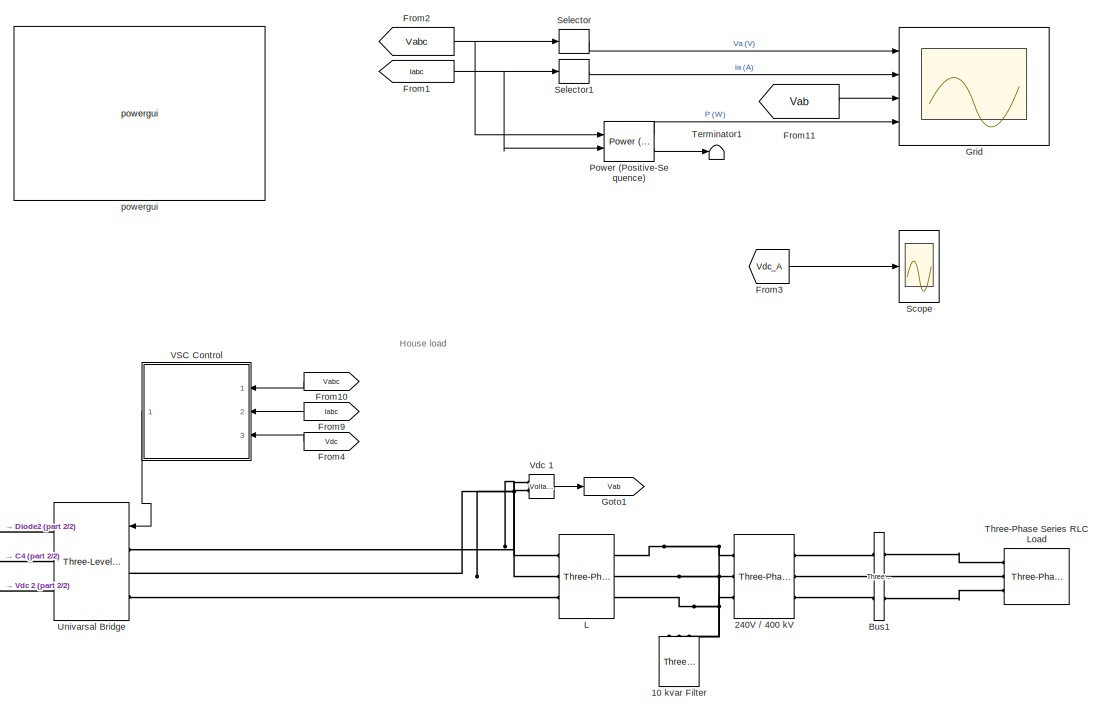
[diagram: root canvas - part 1/2, right side, full height]
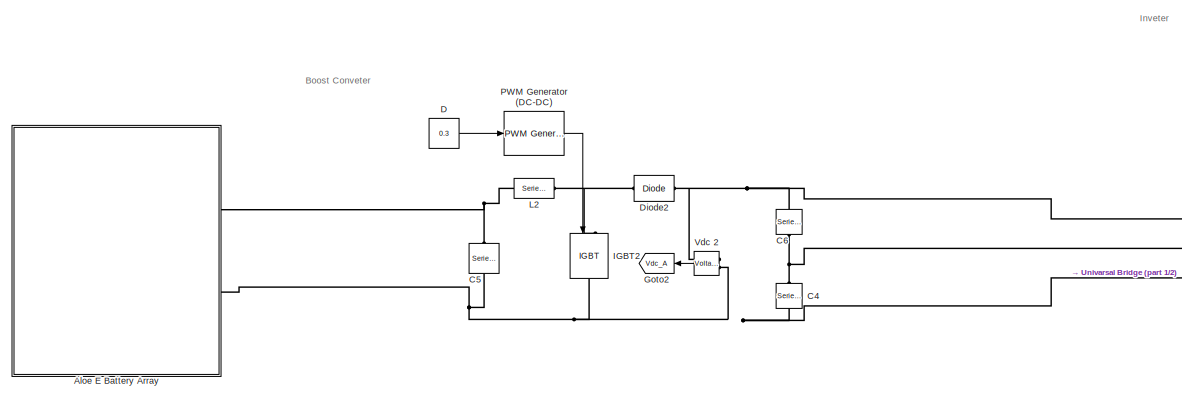
[diagram: root canvas - part 2/2, bottom left region]
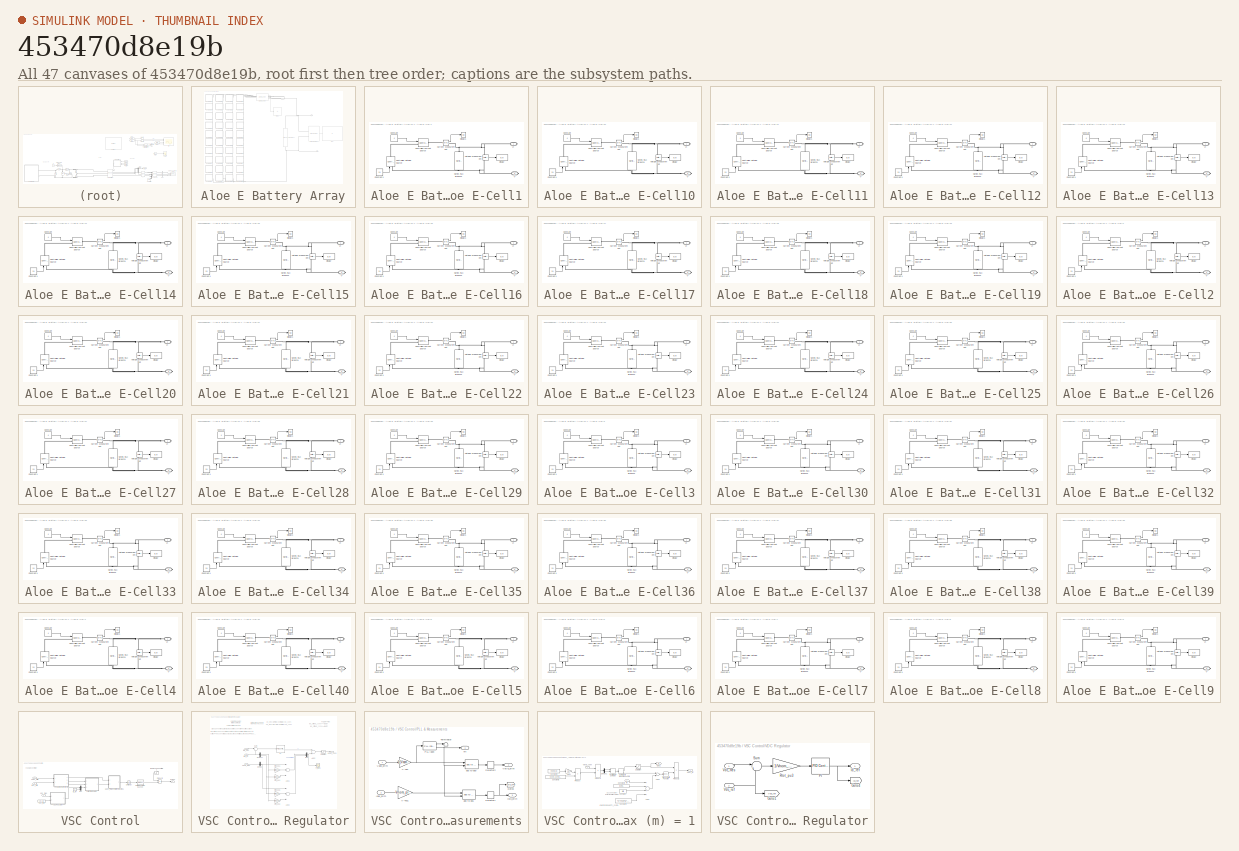
[diagram: thumbnail index - all 47 canvases of the model, root first then tree order]
MODEL slx_453470d8e19b
KIND model
CONFIG AbsTol = auto
CONFIG EnableMultiTasking = off
CONFIG FixedStep = auto
CONFIG MaxStep = auto
CONFIG MinStep = auto
CONFIG RelTol = 1e-3
CONFIG SampleTimeConstraint = Unconstrained
CONFIG Solver = VariableStepAuto
CONFIG SolverName = VariableStepAuto
CONFIG StartTime = 0.0
CONFIG StopTime = 0.14
BLOCK [Reference] 10 kvar Filter  REF=powerlib/Elements/Three-Phase
Series RLC Load
  AttributesFormatString = \n
  Ports = [0, 0, 0, 0, 0, 3]
  SourceBlock = powerlib/Elements/Three-Phase\nSeries RLC Load
  SourceProductBaseCode = PS
  SourceProductName = Simscape Electrical
  SourceType = Three-Phase Series RLC Load
BLOCK [Reference] 240V // 400 kV  REF=powerlib/Elements/Three-Phase
Transformer
(Two Windings)
  AttributesFormatString = \n
  Ports = [0, 0, 0, 0, 0, 3, 3]
  SourceBlock = powerlib/Elements/Three-Phase\nTransformer\n(Two Windings)
  SourceProductBaseCode = PS
  SourceProductName = Simscape Electrical
  SourceType = Three-Phase Transformer (Two Windings)
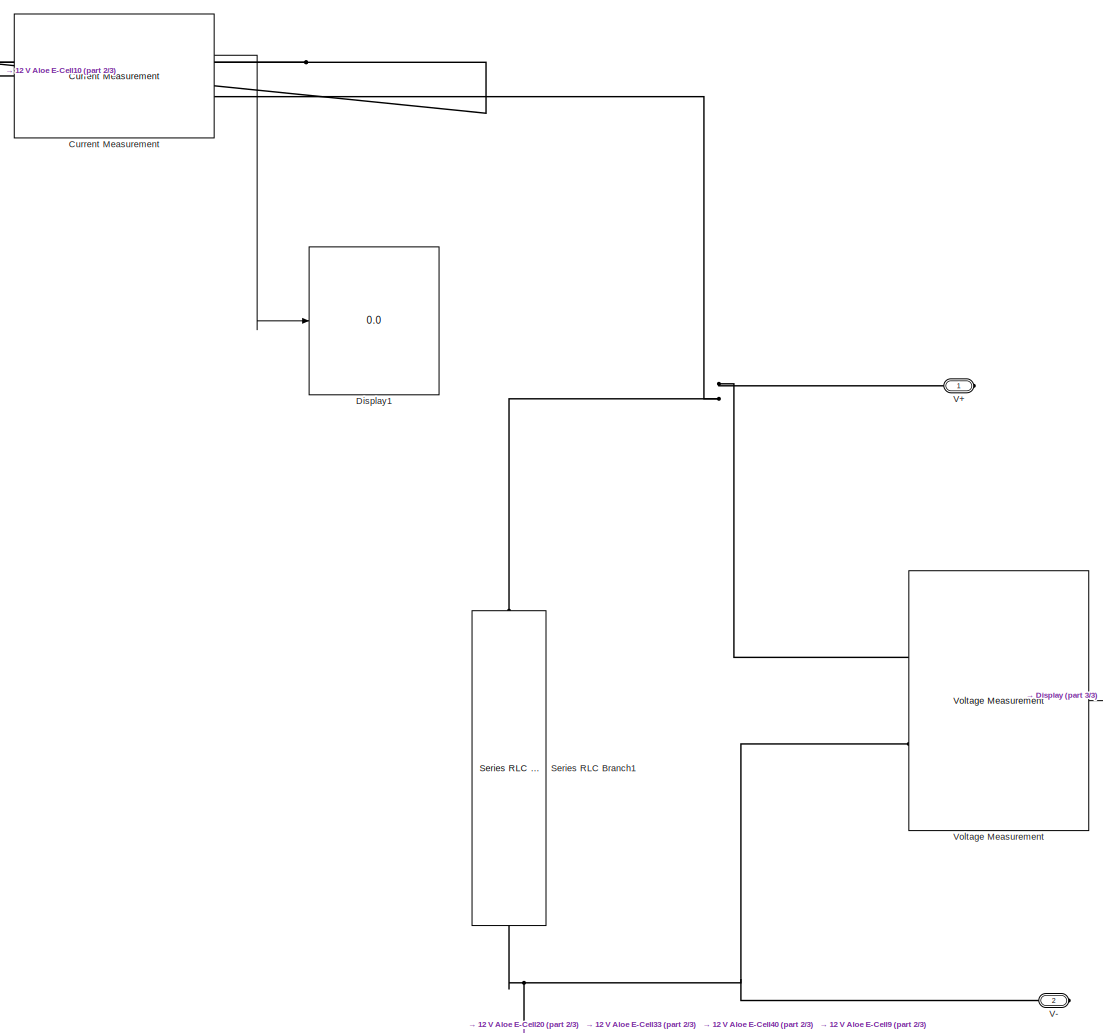
[diagram: Aloe E Battery Array - part 1/3, central region]
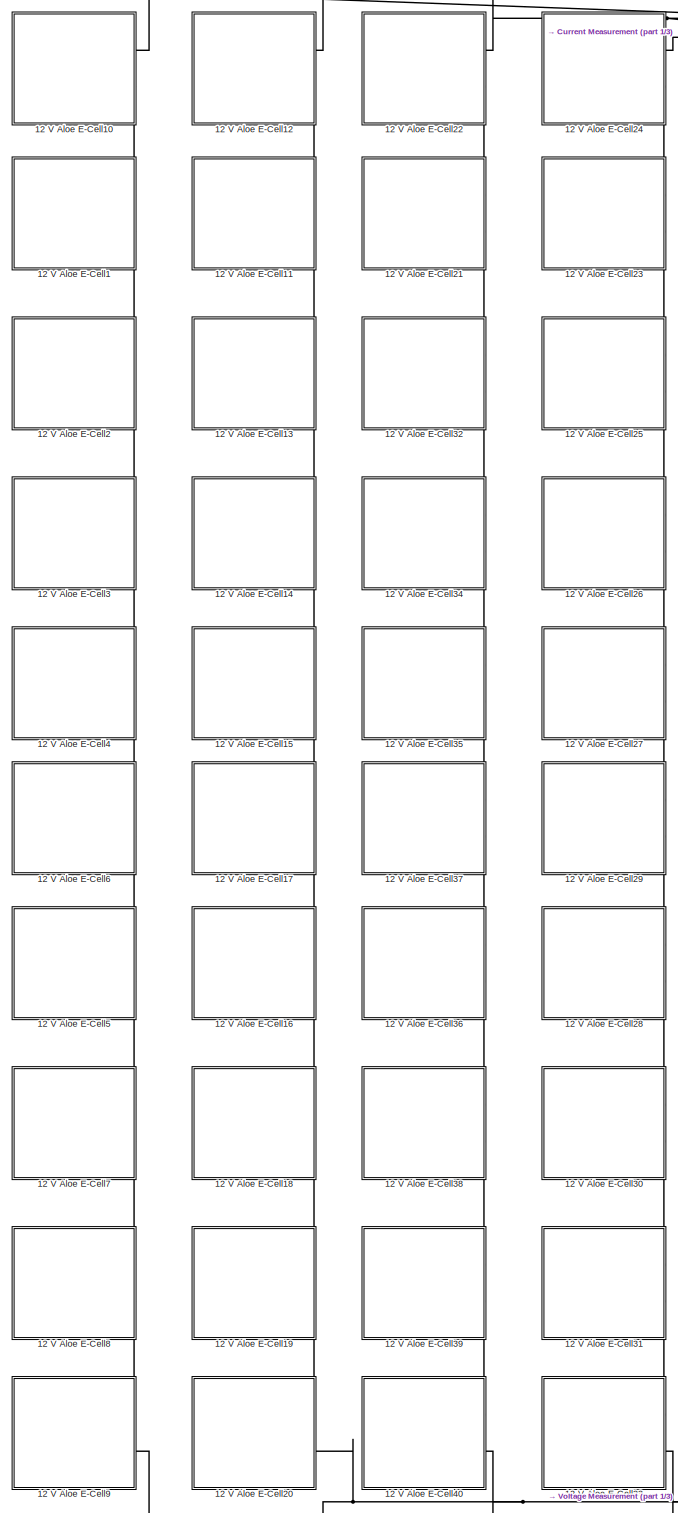
[diagram: Aloe E Battery Array - part 2/3, left side, full height]
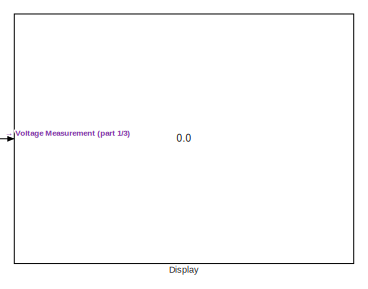
[diagram: Aloe E Battery Array - part 3/3, middle right region]
BLOCK [SubSystem] Aloe E Battery Array
  Ports = [0, 0, 0, 0, 0, 0, 2]
  RequestExecContextInheritance = off
BLOCK [SubSystem] Aloe E Battery Array/12 V Aloe E-Cell1
  Ports = [0, 0, 0, 0, 0, 0, 2]
  RequestExecContextInheritance = off
BLOCK [Constant] Aloe E Battery Array/12 V Aloe E-Cell1/Constant
  Value = 4
BLOCK [Constant] Aloe E Battery Array/12 V Aloe E-Cell1/Constant1
  Value = 24
BLOCK [Reference] Aloe E Battery Array/12 V Aloe E-Cell1/Controlled Current Source  REF=powerlib/Electrical
Sources/Controlled Current Source
  Ports = [1, 0, 0, 0, 0, 1, 1]
  SourceBlock = powerlib/Electrical\nSources/Controlled Current Source
  SourceProductBaseCode = PS
  SourceProductName = Simscape Electrical
  SourceType = Controlled Current Source
BLOCK [Reference] Aloe E Battery Array/12 V Aloe E-Cell1/Controlled Voltage Source  REF=powerlib/Electrical
Sources/Controlled Voltage Source
  Ports = [1, 0, 0, 0, 0, 1, 1]
  SourceBlock = powerlib/Electrical\nSources/Controlled Voltage Source
  SourceProductBaseCode = PS
  SourceProductName = Simscape Electrical
  SourceType = Controlled Voltage Source
BLOCK [Reference] Aloe E Battery Array/12 V Aloe E-Cell1/Current Measurement  REF=powerlib/Measurements/Current Measurement
  Ports = [0, 1, 0, 0, 0, 1, 1]
  SourceBlock = powerlib/Measurements/Current Measurement
  SourceProductBaseCode = PS
  SourceProductName = Simscape Electrical
  SourceType = Current Measurement
  UserDataPersistent = on
BLOCK [Display] Aloe E Battery Array/12 V Aloe E-Cell1/Display
  Decimation = 3
  Ports = [1]
BLOCK [Display] Aloe E Battery Array/12 V Aloe E-Cell1/Display1
  Decimation = 3
  Ports = [1]
BLOCK [Reference] Aloe E Battery Array/12 V Aloe E-Cell1/Series RLC Branch1  REF=powerlib/Elements/Series RLC Branch
  Ports = [0, 0, 0, 0, 0, 1, 1]
  SourceBlock = powerlib/Elements/Series RLC Branch
  SourceProductBaseCode = PS
  SourceProductName = Simscape Electrical
  SourceType = Series RLC Branch
BLOCK [PMIOPort] Aloe E Battery Array/12 V Aloe E-Cell1/V+
  Side = Right
BLOCK [PMIOPort] Aloe E Battery Array/12 V Aloe E-Cell1/V- 
  Port = 2
  Side = Right
BLOCK [Reference] Aloe E Battery Array/12 V Aloe E-Cell1/Voltage Measurement  REF=powerlib/Measurements/Voltage Measurement
  Ports = [0, 1, 0, 0, 0, 2]
  SourceBlock = powerlib/Measurements/Voltage Measurement
  SourceProductBaseCode = PS
  SourceProductName = Simscape Electrical
  SourceType = Voltage Measurement
  UserDataPersistent = on
BLOCK [SubSystem] Aloe E Battery Array/12 V Aloe E-Cell10
  Ports = [0, 0, 0, 0, 0, 0, 2]
  RequestExecContextInheritance = off
BLOCK [Constant] Aloe E Battery Array/12 V Aloe E-Cell10/Constant
  Value = 4
BLOCK [Constant] Aloe E Battery Array/12 V Aloe E-Cell10/Constant1
  Value = 24
BLOCK [Reference] Aloe E Battery Array/12 V Aloe E-Cell10/Controlled Current Source  REF=powerlib/Electrical
Sources/Controlled Current Source
  Ports = [1, 0, 0, 0, 0, 1, 1]
  SourceBlock = powerlib/Electrical\nSources/Controlled Current Source
  SourceProductBaseCode = PS
  SourceProductName = Simscape Electrical
  SourceType = Controlled Current Source
BLOCK [Reference] Aloe E Battery Array/12 V Aloe E-Cell10/Controlled Voltage Source  REF=powerlib/Electrical
Sources/Controlled Voltage Source
  Ports = [1, 0, 0, 0, 0, 1, 1]
  SourceBlock = powerlib/Electrical\nSources/Controlled Voltage Source
  SourceProductBaseCode = PS
  SourceProductName = Simscape Electrical
  SourceType = Controlled Voltage Source
BLOCK [Reference] Aloe E Battery Array/12 V Aloe E-Cell10/Current Measurement  REF=powerlib/Measurements/Current Measurement
  Ports = [0, 1, 0, 0, 0, 1, 1]
  SourceBlock = powerlib/Measurements/Current Measurement
  SourceProductBaseCode = PS
  SourceProductName = Simscape Electrical
  SourceType = Current Measurement
  UserDataPersistent = on
BLOCK [Display] Aloe E Battery Array/12 V Aloe E-Cell10/Display
  Decimation = 3
  Ports = [1]
BLOCK [Display] Aloe E Battery Array/12 V Aloe E-Cell10/Display1
  Decimation = 3
  Ports = [1]
BLOCK [Reference] Aloe E Battery Array/12 V Aloe E-Cell10/Series RLC Branch1  REF=powerlib/Elements/Series RLC Branch
  Ports = [0, 0, 0, 0, 0, 1, 1]
  SourceBlock = powerlib/Elements/Series RLC Branch
  SourceProductBaseCode = PS
  SourceProductName = Simscape Electrical
  SourceType = Series RLC Branch
BLOCK [PMIOPort] Aloe E Battery Array/12 V Aloe E-Cell10/V+
  Side = Right
BLOCK [PMIOPort] Aloe E Battery Array/12 V Aloe E-Cell10/V- 
  Port = 2
  Side = Right
BLOCK [Reference] Aloe E Battery Array/12 V Aloe E-Cell10/Voltage Measurement  REF=powerlib/Measurements/Voltage Measurement
  Ports = [0, 1, 0, 0, 0, 2]
  SourceBlock = powerlib/Measurements/Voltage Measurement
  SourceProductBaseCode = PS
  SourceProductName = Simscape Electrical
  SourceType = Voltage Measurement
  UserDataPersistent = on
BLOCK [SubSystem] Aloe E Battery Array/12 V Aloe E-Cell11
  Ports = [0, 0, 0, 0, 0, 0, 2]
  RequestExecContextInheritance = off
BLOCK [Constant] Aloe E Battery Array/12 V Aloe E-Cell11/Constant
  Value = 4
BLOCK [Constant] Aloe E Battery Array/12 V Aloe E-Cell11/Constant1
  Value = 24
BLOCK [Reference] Aloe E Battery Array/12 V Aloe E-Cell11/Controlled Current Source  REF=powerlib/Electrical
Sources/Controlled Current Source
  Ports = [1, 0, 0, 0, 0, 1, 1]
  SourceBlock = powerlib/Electrical\nSources/Controlled Current Source
  SourceProductBaseCode = PS
  SourceProductName = Simscape Electrical
  SourceType = Controlled Current Source
BLOCK [Reference] Aloe E Battery Array/12 V Aloe E-Cell11/Controlled Voltage Source  REF=powerlib/Electrical
Sources/Controlled Voltage Source
  Ports = [1, 0, 0, 0, 0, 1, 1]
  SourceBlock = powerlib/Electrical\nSources/Controlled Voltage Source
  SourceProductBaseCode = PS
  SourceProductName = Simscape Electrical
  SourceType = Controlled Voltage Source
BLOCK [Reference] Aloe E Battery Array/12 V Aloe E-Cell11/Current Measurement  REF=powerlib/Measurements/Current Measurement
  Ports = [0, 1, 0, 0, 0, 1, 1]
  SourceBlock = powerlib/Measurements/Current Measurement
  SourceProductBaseCode = PS
  SourceProductName = Simscape Electrical
  SourceType = Current Measurement
  UserDataPersistent = on
BLOCK [Display] Aloe E Battery Array/12 V Aloe E-Cell11/Display
  Decimation = 3
  Ports = [1]
BLOCK [Display] Aloe E Battery Array/12 V Aloe E-Cell11/Display1
  Decimation = 3
  Ports = [1]
BLOCK [Reference] Aloe E Battery Array/12 V Aloe E-Cell11/Series RLC Branch1  REF=powerlib/Elements/Series RLC Branch
  Ports = [0, 0, 0, 0, 0, 1, 1]
  SourceBlock = powerlib/Elements/Series RLC Branch
  SourceProductBaseCode = PS
  SourceProductName = Simscape Electrical
  SourceType = Series RLC Branch
BLOCK [PMIOPort] Aloe E Battery Array/12 V Aloe E-Cell11/V+
  Side = Right
BLOCK [PMIOPort] Aloe E Battery Array/12 V Aloe E-Cell11/V- 
  Port = 2
  Side = Right
BLOCK [Reference] Aloe E Battery Array/12 V Aloe E-Cell11/Voltage Measurement  REF=powerlib/Measurements/Voltage Measurement
  Ports = [0, 1, 0, 0, 0, 2]
  SourceBlock = powerlib/Measurements/Voltage Measurement
  SourceProductBaseCode = PS
  SourceProductName = Simscape Electrical
  SourceType = Voltage Measurement
  UserDataPersistent = on
BLOCK [SubSystem] Aloe E Battery Array/12 V Aloe E-Cell12
  Ports = [0, 0, 0, 0, 0, 0, 2]
  RequestExecContextInheritance = off
BLOCK [Constant] Aloe E Battery Array/12 V Aloe E-Cell12/Constant
  Value = 4
BLOCK [Constant] Aloe E Battery Array/12 V Aloe E-Cell12/Constant1
  Value = 24
BLOCK [Reference] Aloe E Battery Array/12 V Aloe E-Cell12/Controlled Current Source  REF=powerlib/Electrical
Sources/Controlled Current Source
  Ports = [1, 0, 0, 0, 0, 1, 1]
  SourceBlock = powerlib/Electrical\nSources/Controlled Current Source
  SourceProductBaseCode = PS
  SourceProductName = Simscape Electrical
  SourceType = Controlled Current Source
BLOCK [Reference] Aloe E Battery Array/12 V Aloe E-Cell12/Controlled Voltage Source  REF=powerlib/Electrical
Sources/Controlled Voltage Source
  Ports = [1, 0, 0, 0, 0, 1, 1]
  SourceBlock = powerlib/Electrical\nSources/Controlled Voltage Source
  SourceProductBaseCode = PS
  SourceProductName = Simscape Electrical
  SourceType = Controlled Voltage Source
BLOCK [Reference] Aloe E Battery Array/12 V Aloe E-Cell12/Current Measurement  REF=powerlib/Measurements/Current Measurement
  Ports = [0, 1, 0, 0, 0, 1, 1]
  SourceBlock = powerlib/Measurements/Current Measurement
  SourceProductBaseCode = PS
  SourceProductName = Simscape Electrical
  SourceType = Current Measurement
  UserDataPersistent = on
BLOCK [Display] Aloe E Battery Array/12 V Aloe E-Cell12/Display
  Decimation = 3
  Ports = [1]
BLOCK [Display] Aloe E Battery Array/12 V Aloe E-Cell12/Display1
  Decimation = 3
  Ports = [1]
BLOCK [Reference] Aloe E Battery Array/12 V Aloe E-Cell12/Series RLC Branch1  REF=powerlib/Elements/Series RLC Branch
  Ports = [0, 0, 0, 0, 0, 1, 1]
  SourceBlock = powerlib/Elements/Series RLC Branch
  SourceProductBaseCode = PS
  SourceProductName = Simscape Electrical
  SourceType = Series RLC Branch
BLOCK [PMIOPort] Aloe E Battery Array/12 V Aloe E-Cell12/V+
  Side = Right
BLOCK [PMIOPort] Aloe E Battery Array/12 V Aloe E-Cell12/V- 
  Port = 2
  Side = Right
BLOCK [Reference] Aloe E Battery Array/12 V Aloe E-Cell12/Voltage Measurement  REF=powerlib/Measurements/Voltage Measurement
  Ports = [0, 1, 0, 0, 0, 2]
  SourceBlock = powerlib/Measurements/Voltage Measurement
  SourceProductBaseCode = PS
  SourceProductName = Simscape Electrical
  SourceType = Voltage Measurement
  UserDataPersistent = on
BLOCK [SubSystem] Aloe E Battery Array/12 V Aloe E-Cell13
  Ports = [0, 0, 0, 0, 0, 0, 2]
  RequestExecContextInheritance = off
BLOCK [Constant] Aloe E Battery Array/12 V Aloe E-Cell13/Constant
  Value = 4
BLOCK [Constant] Aloe E Battery Array/12 V Aloe E-Cell13/Constant1
  Value = 24
BLOCK [Reference] Aloe E Battery Array/12 V Aloe E-Cell13/Controlled Current Source  REF=powerlib/Electrical
Sources/Controlled Current Source
  Ports = [1, 0, 0, 0, 0, 1, 1]
  SourceBlock = powerlib/Electrical\nSources/Controlled Current Source
  SourceProductBaseCode = PS
  SourceProductName = Simscape Electrical
  SourceType = Controlled Current Source
BLOCK [Reference] Aloe E Battery Array/12 V Aloe E-Cell13/Controlled Voltage Source  REF=powerlib/Electrical
Sources/Controlled Voltage Source
  Ports = [1, 0, 0, 0, 0, 1, 1]
  SourceBlock = powerlib/Electrical\nSources/Controlled Voltage Source
  SourceProductBaseCode = PS
  SourceProductName = Simscape Electrical
  SourceType = Controlled Voltage Source
BLOCK [Reference] Aloe E Battery Array/12 V Aloe E-Cell13/Current Measurement  REF=powerlib/Measurements/Current Measurement
  Ports = [0, 1, 0, 0, 0, 1, 1]
  SourceBlock = powerlib/Measurements/Current Measurement
  SourceProductBaseCode = PS
  SourceProductName = Simscape Electrical
  SourceType = Current Measurement
  UserDataPersistent = on
BLOCK [Display] Aloe E Battery Array/12 V Aloe E-Cell13/Display
  Decimation = 3
  Ports = [1]
BLOCK [Display] Aloe E Battery Array/12 V Aloe E-Cell13/Display1
  Decimation = 3
  Ports = [1]
BLOCK [Reference] Aloe E Battery Array/12 V Aloe E-Cell13/Series RLC Branch1  REF=powerlib/Elements/Series RLC Branch
  Ports = [0, 0, 0, 0, 0, 1, 1]
  SourceBlock = powerlib/Elements/Series RLC Branch
  SourceProductBaseCode = PS
  SourceProductName = Simscape Electrical
  SourceType = Series RLC Branch
BLOCK [PMIOPort] Aloe E Battery Array/12 V Aloe E-Cell13/V+
  Side = Right
BLOCK [PMIOPort] Aloe E Battery Array/12 V Aloe E-Cell13/V- 
  Port = 2
  Side = Right
BLOCK [Reference] Aloe E Battery Array/12 V Aloe E-Cell13/Voltage Measurement  REF=powerlib/Measurements/Voltage Measurement
  Ports = [0, 1, 0, 0, 0, 2]
  SourceBlock = powerlib/Measurements/Voltage Measurement
  SourceProductBaseCode = PS
  SourceProductName = Simscape Electrical
  SourceType = Voltage Measurement
  UserDataPersistent = on
BLOCK [SubSystem] Aloe E Battery Array/12 V Aloe E-Cell14
  Ports = [0, 0, 0, 0, 0, 0, 2]
  RequestExecContextInheritance = off
BLOCK [Constant] Aloe E Battery Array/12 V Aloe E-Cell14/Constant
  Value = 4
BLOCK [Constant] Aloe E Battery Array/12 V Aloe E-Cell14/Constant1
  Value = 24
BLOCK [Reference] Aloe E Battery Array/12 V Aloe E-Cell14/Controlled Current Source  REF=powerlib/Electrical
Sources/Controlled Current Source
  Ports = [1, 0, 0, 0, 0, 1, 1]
  SourceBlock = powerlib/Electrical\nSources/Controlled Current Source
  SourceProductBaseCode = PS
  SourceProductName = Simscape Electrical
  SourceType = Controlled Current Source
BLOCK [Reference] Aloe E Battery Array/12 V Aloe E-Cell14/Controlled Voltage Source  REF=powerlib/Electrical
Sources/Controlled Voltage Source
  Ports = [1, 0, 0, 0, 0, 1, 1]
  SourceBlock = powerlib/Electrical\nSources/Controlled Voltage Source
  SourceProductBaseCode = PS
  SourceProductName = Simscape Electrical
  SourceType = Controlled Voltage Source
BLOCK [Reference] Aloe E Battery Array/12 V Aloe E-Cell14/Current Measurement  REF=powerlib/Measurements/Current Measurement
  Ports = [0, 1, 0, 0, 0, 1, 1]
  SourceBlock = powerlib/Measurements/Current Measurement
  SourceProductBaseCode = PS
  SourceProductName = Simscape Electrical
  SourceType = Current Measurement
  UserDataPersistent = on
BLOCK [Display] Aloe E Battery Array/12 V Aloe E-Cell14/Display
  Decimation = 3
  Ports = [1]
BLOCK [Display] Aloe E Battery Array/12 V Aloe E-Cell14/Display1
  Decimation = 3
  Ports = [1]
BLOCK [Reference] Aloe E Battery Array/12 V Aloe E-Cell14/Series RLC Branch1  REF=powerlib/Elements/Series RLC Branch
  Ports = [0, 0, 0, 0, 0, 1, 1]
  SourceBlock = powerlib/Elements/Series RLC Branch
  SourceProductBaseCode = PS
  SourceProductName = Simscape Electrical
  SourceType = Series RLC Branch
BLOCK [PMIOPort] Aloe E Battery Array/12 V Aloe E-Cell14/V+
  Side = Right
BLOCK [PMIOPort] Aloe E Battery Array/12 V Aloe E-Cell14/V- 
  Port = 2
  Side = Right
BLOCK [Reference] Aloe E Battery Array/12 V Aloe E-Cell14/Voltage Measurement  REF=powerlib/Measurements/Voltage Measurement
  Ports = [0, 1, 0, 0, 0, 2]
  SourceBlock = powerlib/Measurements/Voltage Measurement
  SourceProductBaseCode = PS
  SourceProductName = Simscape Electrical
  SourceType = Voltage Measurement
  UserDataPersistent = on
BLOCK [SubSystem] Aloe E Battery Array/12 V Aloe E-Cell15
  Ports = [0, 0, 0, 0, 0, 0, 2]
  RequestExecContextInheritance = off
BLOCK [Constant] Aloe E Battery Array/12 V Aloe E-Cell15/Constant
  Value = 4
BLOCK [Constant] Aloe E Battery Array/12 V Aloe E-Cell15/Constant1
  Value = 24
BLOCK [Reference] Aloe E Battery Array/12 V Aloe E-Cell15/Controlled Current Source  REF=powerlib/Electrical
Sources/Controlled Current Source
  Ports = [1, 0, 0, 0, 0, 1, 1]
  SourceBlock = powerlib/Electrical\nSources/Controlled Current Source
  SourceProductBaseCode = PS
  SourceProductName = Simscape Electrical
  SourceType = Controlled Current Source
BLOCK [Reference] Aloe E Battery Array/12 V Aloe E-Cell15/Controlled Voltage Source  REF=powerlib/Electrical
Sources/Controlled Voltage Source
  Ports = [1, 0, 0, 0, 0, 1, 1]
  SourceBlock = powerlib/Electrical\nSources/Controlled Voltage Source
  SourceProductBaseCode = PS
  SourceProductName = Simscape Electrical
  SourceType = Controlled Voltage Source
BLOCK [Reference] Aloe E Battery Array/12 V Aloe E-Cell15/Current Measurement  REF=powerlib/Measurements/Current Measurement
  Ports = [0, 1, 0, 0, 0, 1, 1]
  SourceBlock = powerlib/Measurements/Current Measurement
  SourceProductBaseCode = PS
  SourceProductName = Simscape Electrical
  SourceType = Current Measurement
  UserDataPersistent = on
BLOCK [Display] Aloe E Battery Array/12 V Aloe E-Cell15/Display
  Decimation = 3
  Ports = [1]
BLOCK [Display] Aloe E Battery Array/12 V Aloe E-Cell15/Display1
  Decimation = 3
  Ports = [1]
BLOCK [Reference] Aloe E Battery Array/12 V Aloe E-Cell15/Series RLC Branch1  REF=powerlib/Elements/Series RLC Branch
  Ports = [0, 0, 0, 0, 0, 1, 1]
  SourceBlock = powerlib/Elements/Series RLC Branch
  SourceProductBaseCode = PS
  SourceProductName = Simscape Electrical
  SourceType = Series RLC Branch
BLOCK [PMIOPort] Aloe E Battery Array/12 V Aloe E-Cell15/V+
  Side = Right
BLOCK [PMIOPort] Aloe E Battery Array/12 V Aloe E-Cell15/V- 
  Port = 2
  Side = Right
BLOCK [Reference] Aloe E Battery Array/12 V Aloe E-Cell15/Voltage Measurement  REF=powerlib/Measurements/Voltage Measurement
  Ports = [0, 1, 0, 0, 0, 2]
  SourceBlock = powerlib/Measurements/Voltage Measurement
  SourceProductBaseCode = PS
  SourceProductName = Simscape Electrical
  SourceType = Voltage Measurement
  UserDataPersistent = on
BLOCK [SubSystem] Aloe E Battery Array/12 V Aloe E-Cell16
  Ports = [0, 0, 0, 0, 0, 0, 2]
  RequestExecContextInheritance = off
BLOCK [Constant] Aloe E Battery Array/12 V Aloe E-Cell16/Constant
  Value = 4
BLOCK [Constant] Aloe E Battery Array/12 V Aloe E-Cell16/Constant1
  Value = 24
BLOCK [Reference] Aloe E Battery Array/12 V Aloe E-Cell16/Controlled Current Source  REF=powerlib/Electrical
Sources/Controlled Current Source
  Ports = [1, 0, 0, 0, 0, 1, 1]
  SourceBlock = powerlib/Electrical\nSources/Controlled Current Source
  SourceProductBaseCode = PS
  SourceProductName = Simscape Electrical
  SourceType = Controlled Current Source
BLOCK [Reference] Aloe E Battery Array/12 V Aloe E-Cell16/Controlled Voltage Source  REF=powerlib/Electrical
Sources/Controlled Voltage Source
  Ports = [1, 0, 0, 0, 0, 1, 1]
  SourceBlock = powerlib/Electrical\nSources/Controlled Voltage Source
  SourceProductBaseCode = PS
  SourceProductName = Simscape Electrical
  SourceType = Controlled Voltage Source
BLOCK [Reference] Aloe E Battery Array/12 V Aloe E-Cell16/Current Measurement  REF=powerlib/Measurements/Current Measurement
  Ports = [0, 1, 0, 0, 0, 1, 1]
  SourceBlock = powerlib/Measurements/Current Measurement
  SourceProductBaseCode = PS
  SourceProductName = Simscape Electrical
  SourceType = Current Measurement
  UserDataPersistent = on
BLOCK [Display] Aloe E Battery Array/12 V Aloe E-Cell16/Display
  Decimation = 3
  Ports = [1]
BLOCK [Display] Aloe E Battery Array/12 V Aloe E-Cell16/Display1
  Decimation = 3
  Ports = [1]
BLOCK [Reference] Aloe E Battery Array/12 V Aloe E-Cell16/Series RLC Branch1  REF=powerlib/Elements/Series RLC Branch
  Ports = [0, 0, 0, 0, 0, 1, 1]
  SourceBlock = powerlib/Elements/Series RLC Branch
  SourceProductBaseCode = PS
  SourceProductName = Simscape Electrical
  SourceType = Series RLC Branch
BLOCK [PMIOPort] Aloe E Battery Array/12 V Aloe E-Cell16/V+
  Side = Right
BLOCK [PMIOPort] Aloe E Battery Array/12 V Aloe E-Cell16/V- 
  Port = 2
  Side = Right
BLOCK [Reference] Aloe E Battery Array/12 V Aloe E-Cell16/Voltage Measurement  REF=powerlib/Measurements/Voltage Measurement
  Ports = [0, 1, 0, 0, 0, 2]
  SourceBlock = powerlib/Measurements/Voltage Measurement
  SourceProductBaseCode = PS
  SourceProductName = Simscape Electrical
  SourceType = Voltage Measurement
  UserDataPersistent = on
BLOCK [SubSystem] Aloe E Battery Array/12 V Aloe E-Cell17
  Ports = [0, 0, 0, 0, 0, 0, 2]
  RequestExecContextInheritance = off
BLOCK [Constant] Aloe E Battery Array/12 V Aloe E-Cell17/Constant
  Value = 4
BLOCK [Constant] Aloe E Battery Array/12 V Aloe E-Cell17/Constant1
  Value = 24
BLOCK [Reference] Aloe E Battery Array/12 V Aloe E-Cell17/Controlled Current Source  REF=powerlib/Electrical
Sources/Controlled Current Source
  Ports = [1, 0, 0, 0, 0, 1, 1]
  SourceBlock = powerlib/Electrical\nSources/Controlled Current Source
  SourceProductBaseCode = PS
  SourceProductName = Simscape Electrical
  SourceType = Controlled Current Source
BLOCK [Reference] Aloe E Battery Array/12 V Aloe E-Cell17/Controlled Voltage Source  REF=powerlib/Electrical
Sources/Controlled Voltage Source
  Ports = [1, 0, 0, 0, 0, 1, 1]
  SourceBlock = powerlib/Electrical\nSources/Controlled Voltage Source
  SourceProductBaseCode = PS
  SourceProductName = Simscape Electrical
  SourceType = Controlled Voltage Source
BLOCK [Reference] Aloe E Battery Array/12 V Aloe E-Cell17/Current Measurement  REF=powerlib/Measurements/Current Measurement
  Ports = [0, 1, 0, 0, 0, 1, 1]
  SourceBlock = powerlib/Measurements/Current Measurement
  SourceProductBaseCode = PS
  SourceProductName = Simscape Electrical
  SourceType = Current Measurement
  UserDataPersistent = on
BLOCK [Display] Aloe E Battery Array/12 V Aloe E-Cell17/Display
  Decimation = 3
  Ports = [1]
BLOCK [Display] Aloe E Battery Array/12 V Aloe E-Cell17/Display1
  Decimation = 3
  Ports = [1]
BLOCK [Reference] Aloe E Battery Array/12 V Aloe E-Cell17/Series RLC Branch1  REF=powerlib/Elements/Series RLC Branch
  Ports = [0, 0, 0, 0, 0, 1, 1]
  SourceBlock = powerlib/Elements/Series RLC Branch
  SourceProductBaseCode = PS
  SourceProductName = Simscape Electrical
  SourceType = Series RLC Branch
BLOCK [PMIOPort] Aloe E Battery Array/12 V Aloe E-Cell17/V+
  Side = Right
BLOCK [PMIOPort] Aloe E Battery Array/12 V Aloe E-Cell17/V- 
  Port = 2
  Side = Right
BLOCK [Reference] Aloe E Battery Array/12 V Aloe E-Cell17/Voltage Measurement  REF=powerlib/Measurements/Voltage Measurement
  Ports = [0, 1, 0, 0, 0, 2]
  SourceBlock = powerlib/Measurements/Voltage Measurement
  SourceProductBaseCode = PS
  SourceProductName = Simscape Electrical
  SourceType = Voltage Measurement
  UserDataPersistent = on
BLOCK [SubSystem] Aloe E Battery Array/12 V Aloe E-Cell18
  Ports = [0, 0, 0, 0, 0, 0, 2]
  RequestExecContextInheritance = off
BLOCK [Constant] Aloe E Battery Array/12 V Aloe E-Cell18/Constant
  Value = 4
BLOCK [Constant] Aloe E Battery Array/12 V Aloe E-Cell18/Constant1
  Value = 24
BLOCK [Reference] Aloe E Battery Array/12 V Aloe E-Cell18/Controlled Current Source  REF=powerlib/Electrical
Sources/Controlled Current Source
  Ports = [1, 0, 0, 0, 0, 1, 1]
  SourceBlock = powerlib/Electrical\nSources/Controlled Current Source
  SourceProductBaseCode = PS
  SourceProductName = Simscape Electrical
  SourceType = Controlled Current Source
BLOCK [Reference] Aloe E Battery Array/12 V Aloe E-Cell18/Controlled Voltage Source  REF=powerlib/Electrical
Sources/Controlled Voltage Source
  Ports = [1, 0, 0, 0, 0, 1, 1]
  SourceBlock = powerlib/Electrical\nSources/Controlled Voltage Source
  SourceProductBaseCode = PS
  SourceProductName = Simscape Electrical
  SourceType = Controlled Voltage Source
BLOCK [Reference] Aloe E Battery Array/12 V Aloe E-Cell18/Current Measurement  REF=powerlib/Measurements/Current Measurement
  Ports = [0, 1, 0, 0, 0, 1, 1]
  SourceBlock = powerlib/Measurements/Current Measurement
  SourceProductBaseCode = PS
  SourceProductName = Simscape Electrical
  SourceType = Current Measurement
  UserDataPersistent = on
BLOCK [Display] Aloe E Battery Array/12 V Aloe E-Cell18/Display
  Decimation = 3
  Ports = [1]
BLOCK [Display] Aloe E Battery Array/12 V Aloe E-Cell18/Display1
  Decimation = 3
  Ports = [1]
BLOCK [Reference] Aloe E Battery Array/12 V Aloe E-Cell18/Series RLC Branch1  REF=powerlib/Elements/Series RLC Branch
  Ports = [0, 0, 0, 0, 0, 1, 1]
  SourceBlock = powerlib/Elements/Series RLC Branch
  SourceProductBaseCode = PS
  SourceProductName = Simscape Electrical
  SourceType = Series RLC Branch
BLOCK [PMIOPort] Aloe E Battery Array/12 V Aloe E-Cell18/V+
  Side = Right
BLOCK [PMIOPort] Aloe E Battery Array/12 V Aloe E-Cell18/V- 
  Port = 2
  Side = Right
BLOCK [Reference] Aloe E Battery Array/12 V Aloe E-Cell18/Voltage Measurement  REF=powerlib/Measurements/Voltage Measurement
  Ports = [0, 1, 0, 0, 0, 2]
  SourceBlock = powerlib/Measurements/Voltage Measurement
  SourceProductBaseCode = PS
  SourceProductName = Simscape Electrical
  SourceType = Voltage Measurement
  UserDataPersistent = on
BLOCK [SubSystem] Aloe E Battery Array/12 V Aloe E-Cell19
  Ports = [0, 0, 0, 0, 0, 0, 2]
  RequestExecContextInheritance = off
BLOCK [Constant] Aloe E Battery Array/12 V Aloe E-Cell19/Constant
  Value = 4
BLOCK [Constant] Aloe E Battery Array/12 V Aloe E-Cell19/Constant1
  Value = 24
BLOCK [Reference] Aloe E Battery Array/12 V Aloe E-Cell19/Controlled Current Source  REF=powerlib/Electrical
Sources/Controlled Current Source
  Ports = [1, 0, 0, 0, 0, 1, 1]
  SourceBlock = powerlib/Electrical\nSources/Controlled Current Source
  SourceProductBaseCode = PS
  SourceProductName = Simscape Electrical
  SourceType = Controlled Current Source
BLOCK [Reference] Aloe E Battery Array/12 V Aloe E-Cell19/Controlled Voltage Source  REF=powerlib/Electrical
Sources/Controlled Voltage Source
  Ports = [1, 0, 0, 0, 0, 1, 1]
  SourceBlock = powerlib/Electrical\nSources/Controlled Voltage Source
  SourceProductBaseCode = PS
  SourceProductName = Simscape Electrical
  SourceType = Controlled Voltage Source
BLOCK [Reference] Aloe E Battery Array/12 V Aloe E-Cell19/Current Measurement  REF=powerlib/Measurements/Current Measurement
  Ports = [0, 1, 0, 0, 0, 1, 1]
  SourceBlock = powerlib/Measurements/Current Measurement
  SourceProductBaseCode = PS
  SourceProductName = Simscape Electrical
  SourceType = Current Measurement
  UserDataPersistent = on
BLOCK [Display] Aloe E Battery Array/12 V Aloe E-Cell19/Display
  Decimation = 3
  Ports = [1]
BLOCK [Display] Aloe E Battery Array/12 V Aloe E-Cell19/Display1
  Decimation = 3
  Ports = [1]
BLOCK [Reference] Aloe E Battery Array/12 V Aloe E-Cell19/Series RLC Branch1  REF=powerlib/Elements/Series RLC Branch
  Ports = [0, 0, 0, 0, 0, 1, 1]
  SourceBlock = powerlib/Elements/Series RLC Branch
  SourceProductBaseCode = PS
  SourceProductName = Simscape Electrical
  SourceType = Series RLC Branch
BLOCK [PMIOPort] Aloe E Battery Array/12 V Aloe E-Cell19/V+
  Side = Right
BLOCK [PMIOPort] Aloe E Battery Array/12 V Aloe E-Cell19/V- 
  Port = 2
  Side = Right
BLOCK [Reference] Aloe E Battery Array/12 V Aloe E-Cell19/Voltage Measurement  REF=powerlib/Measurements/Voltage Measurement
  Ports = [0, 1, 0, 0, 0, 2]
  SourceBlock = powerlib/Measurements/Voltage Measurement
  SourceProductBaseCode = PS
  SourceProductName = Simscape Electrical
  SourceType = Voltage Measurement
  UserDataPersistent = on
BLOCK [SubSystem] Aloe E Battery Array/12 V Aloe E-Cell2
  Ports = [0, 0, 0, 0, 0, 0, 2]
  RequestExecContextInheritance = off
BLOCK [Constant] Aloe E Battery Array/12 V Aloe E-Cell2/Constant
  Value = 4
BLOCK [Constant] Aloe E Battery Array/12 V Aloe E-Cell2/Constant1
  Value = 24
BLOCK [Reference] Aloe E Battery Array/12 V Aloe E-Cell2/Controlled Current Source  REF=powerlib/Electrical
Sources/Controlled Current Source
  Ports = [1, 0, 0, 0, 0, 1, 1]
  SourceBlock = powerlib/Electrical\nSources/Controlled Current Source
  SourceProductBaseCode = PS
  SourceProductName = Simscape Electrical
  SourceType = Controlled Current Source
BLOCK [Reference] Aloe E Battery Array/12 V Aloe E-Cell2/Controlled Voltage Source  REF=powerlib/Electrical
Sources/Controlled Voltage Source
  Ports = [1, 0, 0, 0, 0, 1, 1]
  SourceBlock = powerlib/Electrical\nSources/Controlled Voltage Source
  SourceProductBaseCode = PS
  SourceProductName = Simscape Electrical
  SourceType = Controlled Voltage Source
BLOCK [Reference] Aloe E Battery Array/12 V Aloe E-Cell2/Current Measurement  REF=powerlib/Measurements/Current Measurement
  Ports = [0, 1, 0, 0, 0, 1, 1]
  SourceBlock = powerlib/Measurements/Current Measurement
  SourceProductBaseCode = PS
  SourceProductName = Simscape Electrical
  SourceType = Current Measurement
  UserDataPersistent = on
BLOCK [Display] Aloe E Battery Array/12 V Aloe E-Cell2/Display
  Decimation = 3
  Ports = [1]
BLOCK [Display] Aloe E Battery Array/12 V Aloe E-Cell2/Display1
  Decimation = 3
  Ports = [1]
BLOCK [Reference] Aloe E Battery Array/12 V Aloe E-Cell2/Series RLC Branch1  REF=powerlib/Elements/Series RLC Branch
  Ports = [0, 0, 0, 0, 0, 1, 1]
  SourceBlock = powerlib/Elements/Series RLC Branch
  SourceProductBaseCode = PS
  SourceProductName = Simscape Electrical
  SourceType = Series RLC Branch
BLOCK [PMIOPort] Aloe E Battery Array/12 V Aloe E-Cell2/V+
  Side = Right
BLOCK [PMIOPort] Aloe E Battery Array/12 V Aloe E-Cell2/V- 
  Port = 2
  Side = Right
BLOCK [Reference] Aloe E Battery Array/12 V Aloe E-Cell2/Voltage Measurement  REF=powerlib/Measurements/Voltage Measurement
  Ports = [0, 1, 0, 0, 0, 2]
  SourceBlock = powerlib/Measurements/Voltage Measurement
  SourceProductBaseCode = PS
  SourceProductName = Simscape Electrical
  SourceType = Voltage Measurement
  UserDataPersistent = on
BLOCK [SubSystem] Aloe E Battery Array/12 V Aloe E-Cell20
  Ports = [0, 0, 0, 0, 0, 0, 2]
  RequestExecContextInheritance = off
BLOCK [Constant] Aloe E Battery Array/12 V Aloe E-Cell20/Constant
  Value = 4
BLOCK [Constant] Aloe E Battery Array/12 V Aloe E-Cell20/Constant1
  Value = 24
BLOCK [Reference] Aloe E Battery Array/12 V Aloe E-Cell20/Controlled Current Source  REF=powerlib/Electrical
Sources/Controlled Current Source
  Ports = [1, 0, 0, 0, 0, 1, 1]
  SourceBlock = powerlib/Electrical\nSources/Controlled Current Source
  SourceProductBaseCode = PS
  SourceProductName = Simscape Electrical
  SourceType = Controlled Current Source
BLOCK [Reference] Aloe E Battery Array/12 V Aloe E-Cell20/Controlled Voltage Source  REF=powerlib/Electrical
Sources/Controlled Voltage Source
  Ports = [1, 0, 0, 0, 0, 1, 1]
  SourceBlock = powerlib/Electrical\nSources/Controlled Voltage Source
  SourceProductBaseCode = PS
  SourceProductName = Simscape Electrical
  SourceType = Controlled Voltage Source
BLOCK [Reference] Aloe E Battery Array/12 V Aloe E-Cell20/Current Measurement  REF=powerlib/Measurements/Current Measurement
  Ports = [0, 1, 0, 0, 0, 1, 1]
  SourceBlock = powerlib/Measurements/Current Measurement
  SourceProductBaseCode = PS
  SourceProductName = Simscape Electrical
  SourceType = Current Measurement
  UserDataPersistent = on
BLOCK [Display] Aloe E Battery Array/12 V Aloe E-Cell20/Display
  Decimation = 3
  Ports = [1]
BLOCK [Display] Aloe E Battery Array/12 V Aloe E-Cell20/Display1
  Decimation = 3
  Ports = [1]
BLOCK [Reference] Aloe E Battery Array/12 V Aloe E-Cell20/Series RLC Branch1  REF=powerlib/Elements/Series RLC Branch
  Ports = [0, 0, 0, 0, 0, 1, 1]
  SourceBlock = powerlib/Elements/Series RLC Branch
  SourceProductBaseCode = PS
  SourceProductName = Simscape Electrical
  SourceType = Series RLC Branch
BLOCK [PMIOPort] Aloe E Battery Array/12 V Aloe E-Cell20/V+
  Side = Right
BLOCK [PMIOPort] Aloe E Battery Array/12 V Aloe E-Cell20/V- 
  Port = 2
  Side = Right
BLOCK [Reference] Aloe E Battery Array/12 V Aloe E-Cell20/Voltage Measurement  REF=powerlib/Measurements/Voltage Measurement
  Ports = [0, 1, 0, 0, 0, 2]
  SourceBlock = powerlib/Measurements/Voltage Measurement
  SourceProductBaseCode = PS
  SourceProductName = Simscape Electrical
  SourceType = Voltage Measurement
  UserDataPersistent = on
BLOCK [SubSystem] Aloe E Battery Array/12 V Aloe E-Cell21
  Ports = [0, 0, 0, 0, 0, 0, 2]
  RequestExecContextInheritance = off
BLOCK [Constant] Aloe E Battery Array/12 V Aloe E-Cell21/Constant
  Value = 4
BLOCK [Constant] Aloe E Battery Array/12 V Aloe E-Cell21/Constant1
  Value = 24
BLOCK [Reference] Aloe E Battery Array/12 V Aloe E-Cell21/Controlled Current Source  REF=powerlib/Electrical
Sources/Controlled Current Source
  Ports = [1, 0, 0, 0, 0, 1, 1]
  SourceBlock = powerlib/Electrical\nSources/Controlled Current Source
  SourceProductBaseCode = PS
  SourceProductName = Simscape Electrical
  SourceType = Controlled Current Source
BLOCK [Reference] Aloe E Battery Array/12 V Aloe E-Cell21/Controlled Voltage Source  REF=powerlib/Electrical
Sources/Controlled Voltage Source
  Ports = [1, 0, 0, 0, 0, 1, 1]
  SourceBlock = powerlib/Electrical\nSources/Controlled Voltage Source
  SourceProductBaseCode = PS
  SourceProductName = Simscape Electrical
  SourceType = Controlled Voltage Source
BLOCK [Reference] Aloe E Battery Array/12 V Aloe E-Cell21/Current Measurement  REF=powerlib/Measurements/Current Measurement
  Ports = [0, 1, 0, 0, 0, 1, 1]
  SourceBlock = powerlib/Measurements/Current Measurement
  SourceProductBaseCode = PS
  SourceProductName = Simscape Electrical
  SourceType = Current Measurement
  UserDataPersistent = on
BLOCK [Display] Aloe E Battery Array/12 V Aloe E-Cell21/Display
  Decimation = 3
  Ports = [1]
BLOCK [Display] Aloe E Battery Array/12 V Aloe E-Cell21/Display1
  Decimation = 3
  Ports = [1]
BLOCK [Reference] Aloe E Battery Array/12 V Aloe E-Cell21/Series RLC Branch1  REF=powerlib/Elements/Series RLC Branch
  Ports = [0, 0, 0, 0, 0, 1, 1]
  SourceBlock = powerlib/Elements/Series RLC Branch
  SourceProductBaseCode = PS
  SourceProductName = Simscape Electrical
  SourceType = Series RLC Branch
BLOCK [PMIOPort] Aloe E Battery Array/12 V Aloe E-Cell21/V+
  Side = Right
BLOCK [PMIOPort] Aloe E Battery Array/12 V Aloe E-Cell21/V- 
  Port = 2
  Side = Right
BLOCK [Reference] Aloe E Battery Array/12 V Aloe E-Cell21/Voltage Measurement  REF=powerlib/Measurements/Voltage Measurement
  Ports = [0, 1, 0, 0, 0, 2]
  SourceBlock = powerlib/Measurements/Voltage Measurement
  SourceProductBaseCode = PS
  SourceProductName = Simscape Electrical
  SourceType = Voltage Measurement
  UserDataPersistent = on
BLOCK [SubSystem] Aloe E Battery Array/12 V Aloe E-Cell22
  Ports = [0, 0, 0, 0, 0, 0, 2]
  RequestExecContextInheritance = off
BLOCK [Constant] Aloe E Battery Array/12 V Aloe E-Cell22/Constant
  Value = 4
BLOCK [Constant] Aloe E Battery Array/12 V Aloe E-Cell22/Constant1
  Value = 24
BLOCK [Reference] Aloe E Battery Array/12 V Aloe E-Cell22/Controlled Current Source  REF=powerlib/Electrical
Sources/Controlled Current Source
  Ports = [1, 0, 0, 0, 0, 1, 1]
  SourceBlock = powerlib/Electrical\nSources/Controlled Current Source
  SourceProductBaseCode = PS
  SourceProductName = Simscape Electrical
  SourceType = Controlled Current Source
BLOCK [Reference] Aloe E Battery Array/12 V Aloe E-Cell22/Controlled Voltage Source  REF=powerlib/Electrical
Sources/Controlled Voltage Source
  Ports = [1, 0, 0, 0, 0, 1, 1]
  SourceBlock = powerlib/Electrical\nSources/Controlled Voltage Source
  SourceProductBaseCode = PS
  SourceProductName = Simscape Electrical
  SourceType = Controlled Voltage Source
BLOCK [Reference] Aloe E Battery Array/12 V Aloe E-Cell22/Current Measurement  REF=powerlib/Measurements/Current Measurement
  Ports = [0, 1, 0, 0, 0, 1, 1]
  SourceBlock = powerlib/Measurements/Current Measurement
  SourceProductBaseCode = PS
  SourceProductName = Simscape Electrical
  SourceType = Current Measurement
  UserDataPersistent = on
BLOCK [Display] Aloe E Battery Array/12 V Aloe E-Cell22/Display
  Decimation = 3
  Ports = [1]
BLOCK [Display] Aloe E Battery Array/12 V Aloe E-Cell22/Display1
  Decimation = 3
  Ports = [1]
BLOCK [Reference] Aloe E Battery Array/12 V Aloe E-Cell22/Series RLC Branch1  REF=powerlib/Elements/Series RLC Branch
  Ports = [0, 0, 0, 0, 0, 1, 1]
  SourceBlock = powerlib/Elements/Series RLC Branch
  SourceProductBaseCode = PS
  SourceProductName = Simscape Electrical
  SourceType = Series RLC Branch
BLOCK [PMIOPort] Aloe E Battery Array/12 V Aloe E-Cell22/V+
  Side = Right
BLOCK [PMIOPort] Aloe E Battery Array/12 V Aloe E-Cell22/V- 
  Port = 2
  Side = Right
BLOCK [Reference] Aloe E Battery Array/12 V Aloe E-Cell22/Voltage Measurement  REF=powerlib/Measurements/Voltage Measurement
  Ports = [0, 1, 0, 0, 0, 2]
  SourceBlock = powerlib/Measurements/Voltage Measurement
  SourceProductBaseCode = PS
  SourceProductName = Simscape Electrical
  SourceType = Voltage Measurement
  UserDataPersistent = on
BLOCK [SubSystem] Aloe E Battery Array/12 V Aloe E-Cell23
  Ports = [0, 0, 0, 0, 0, 0, 2]
  RequestExecContextInheritance = off
BLOCK [Constant] Aloe E Battery Array/12 V Aloe E-Cell23/Constant
  Value = 4
BLOCK [Constant] Aloe E Battery Array/12 V Aloe E-Cell23/Constant1
  Value = 24
BLOCK [Reference] Aloe E Battery Array/12 V Aloe E-Cell23/Controlled Current Source  REF=powerlib/Electrical
Sources/Controlled Current Source
  Ports = [1, 0, 0, 0, 0, 1, 1]
  SourceBlock = powerlib/Electrical\nSources/Controlled Current Source
  SourceProductBaseCode = PS
  SourceProductName = Simscape Electrical
  SourceType = Controlled Current Source
BLOCK [Reference] Aloe E Battery Array/12 V Aloe E-Cell23/Controlled Voltage Source  REF=powerlib/Electrical
Sources/Controlled Voltage Source
  Ports = [1, 0, 0, 0, 0, 1, 1]
  SourceBlock = powerlib/Electrical\nSources/Controlled Voltage Source
  SourceProductBaseCode = PS
  SourceProductName = Simscape Electrical
  SourceType = Controlled Voltage Source
BLOCK [Reference] Aloe E Battery Array/12 V Aloe E-Cell23/Current Measurement  REF=powerlib/Measurements/Current Measurement
  Ports = [0, 1, 0, 0, 0, 1, 1]
  SourceBlock = powerlib/Measurements/Current Measurement
  SourceProductBaseCode = PS
  SourceProductName = Simscape Electrical
  SourceType = Current Measurement
  UserDataPersistent = on
BLOCK [Display] Aloe E Battery Array/12 V Aloe E-Cell23/Display
  Decimation = 3
  Ports = [1]
BLOCK [Display] Aloe E Battery Array/12 V Aloe E-Cell23/Display1
  Decimation = 3
  Ports = [1]
BLOCK [Reference] Aloe E Battery Array/12 V Aloe E-Cell23/Series RLC Branch1  REF=powerlib/Elements/Series RLC Branch
  Ports = [0, 0, 0, 0, 0, 1, 1]
  SourceBlock = powerlib/Elements/Series RLC Branch
  SourceProductBaseCode = PS
  SourceProductName = Simscape Electrical
  SourceType = Series RLC Branch
BLOCK [PMIOPort] Aloe E Battery Array/12 V Aloe E-Cell23/V+
  Side = Right
BLOCK [PMIOPort] Aloe E Battery Array/12 V Aloe E-Cell23/V- 
  Port = 2
  Side = Right
BLOCK [Reference] Aloe E Battery Array/12 V Aloe E-Cell23/Voltage Measurement  REF=powerlib/Measurements/Voltage Measurement
  Ports = [0, 1, 0, 0, 0, 2]
  SourceBlock = powerlib/Measurements/Voltage Measurement
  SourceProductBaseCode = PS
  SourceProductName = Simscape Electrical
  SourceType = Voltage Measurement
  UserDataPersistent = on
BLOCK [SubSystem] Aloe E Battery Array/12 V Aloe E-Cell24
  Ports = [0, 0, 0, 0, 0, 0, 2]
  RequestExecContextInheritance = off
BLOCK [Constant] Aloe E Battery Array/12 V Aloe E-Cell24/Constant
  Value = 4
BLOCK [Constant] Aloe E Battery Array/12 V Aloe E-Cell24/Constant1
  Value = 24
BLOCK [Reference] Aloe E Battery Array/12 V Aloe E-Cell24/Controlled Current Source  REF=powerlib/Electrical
Sources/Controlled Current Source
  Ports = [1, 0, 0, 0, 0, 1, 1]
  SourceBlock = powerlib/Electrical\nSources/Controlled Current Source
  SourceProductBaseCode = PS
  SourceProductName = Simscape Electrical
  SourceType = Controlled Current Source
BLOCK [Reference] Aloe E Battery Array/12 V Aloe E-Cell24/Controlled Voltage Source  REF=powerlib/Electrical
Sources/Controlled Voltage Source
  Ports = [1, 0, 0, 0, 0, 1, 1]
  SourceBlock = powerlib/Electrical\nSources/Controlled Voltage Source
  SourceProductBaseCode = PS
  SourceProductName = Simscape Electrical
  SourceType = Controlled Voltage Source
BLOCK [Reference] Aloe E Battery Array/12 V Aloe E-Cell24/Current Measurement  REF=powerlib/Measurements/Current Measurement
  Ports = [0, 1, 0, 0, 0, 1, 1]
  SourceBlock = powerlib/Measurements/Current Measurement
  SourceProductBaseCode = PS
  SourceProductName = Simscape Electrical
  SourceType = Current Measurement
  UserDataPersistent = on
BLOCK [Display] Aloe E Battery Array/12 V Aloe E-Cell24/Display
  Decimation = 3
  Ports = [1]
BLOCK [Display] Aloe E Battery Array/12 V Aloe E-Cell24/Display1
  Decimation = 3
  Ports = [1]
BLOCK [Reference] Aloe E Battery Array/12 V Aloe E-Cell24/Series RLC Branch1  REF=powerlib/Elements/Series RLC Branch
  Ports = [0, 0, 0, 0, 0, 1, 1]
  SourceBlock = powerlib/Elements/Series RLC Branch
  SourceProductBaseCode = PS
  SourceProductName = Simscape Electrical
  SourceType = Series RLC Branch
BLOCK [PMIOPort] Aloe E Battery Array/12 V Aloe E-Cell24/V+
  Side = Right
BLOCK [PMIOPort] Aloe E Battery Array/12 V Aloe E-Cell24/V- 
  Port = 2
  Side = Right
BLOCK [Reference] Aloe E Battery Array/12 V Aloe E-Cell24/Voltage Measurement  REF=powerlib/Measurements/Voltage Measurement
  Ports = [0, 1, 0, 0, 0, 2]
  SourceBlock = powerlib/Measurements/Voltage Measurement
  SourceProductBaseCode = PS
  SourceProductName = Simscape Electrical
  SourceType = Voltage Measurement
  UserDataPersistent = on
BLOCK [SubSystem] Aloe E Battery Array/12 V Aloe E-Cell25
  Ports = [0, 0, 0, 0, 0, 0, 2]
  RequestExecContextInheritance = off
BLOCK [Constant] Aloe E Battery Array/12 V Aloe E-Cell25/Constant
  Value = 4
BLOCK [Constant] Aloe E Battery Array/12 V Aloe E-Cell25/Constant1
  Value = 24
BLOCK [Reference] Aloe E Battery Array/12 V Aloe E-Cell25/Controlled Current Source  REF=powerlib/Electrical
Sources/Controlled Current Source
  Ports = [1, 0, 0, 0, 0, 1, 1]
  SourceBlock = powerlib/Electrical\nSources/Controlled Current Source
  SourceProductBaseCode = PS
  SourceProductName = Simscape Electrical
  SourceType = Controlled Current Source
BLOCK [Reference] Aloe E Battery Array/12 V Aloe E-Cell25/Controlled Voltage Source  REF=powerlib/Electrical
Sources/Controlled Voltage Source
  Ports = [1, 0, 0, 0, 0, 1, 1]
  SourceBlock = powerlib/Electrical\nSources/Controlled Voltage Source
  SourceProductBaseCode = PS
  SourceProductName = Simscape Electrical
  SourceType = Controlled Voltage Source
BLOCK [Reference] Aloe E Battery Array/12 V Aloe E-Cell25/Current Measurement  REF=powerlib/Measurements/Current Measurement
  Ports = [0, 1, 0, 0, 0, 1, 1]
  SourceBlock = powerlib/Measurements/Current Measurement
  SourceProductBaseCode = PS
  SourceProductName = Simscape Electrical
  SourceType = Current Measurement
  UserDataPersistent = on
BLOCK [Display] Aloe E Battery Array/12 V Aloe E-Cell25/Display
  Decimation = 3
  Ports = [1]
BLOCK [Display] Aloe E Battery Array/12 V Aloe E-Cell25/Display1
  Decimation = 3
  Ports = [1]
BLOCK [Reference] Aloe E Battery Array/12 V Aloe E-Cell25/Series RLC Branch1  REF=powerlib/Elements/Series RLC Branch
  Ports = [0, 0, 0, 0, 0, 1, 1]
  SourceBlock = powerlib/Elements/Series RLC Branch
  SourceProductBaseCode = PS
  SourceProductName = Simscape Electrical
  SourceType = Series RLC Branch
BLOCK [PMIOPort] Aloe E Battery Array/12 V Aloe E-Cell25/V+
  Side = Right
BLOCK [PMIOPort] Aloe E Battery Array/12 V Aloe E-Cell25/V- 
  Port = 2
  Side = Right
BLOCK [Reference] Aloe E Battery Array/12 V Aloe E-Cell25/Voltage Measurement  REF=powerlib/Measurements/Voltage Measurement
  Ports = [0, 1, 0, 0, 0, 2]
  SourceBlock = powerlib/Measurements/Voltage Measurement
  SourceProductBaseCode = PS
  SourceProductName = Simscape Electrical
  SourceType = Voltage Measurement
  UserDataPersistent = on
BLOCK [SubSystem] Aloe E Battery Array/12 V Aloe E-Cell26
  Ports = [0, 0, 0, 0, 0, 0, 2]
  RequestExecContextInheritance = off
BLOCK [Constant] Aloe E Battery Array/12 V Aloe E-Cell26/Constant
  Value = 4
BLOCK [Constant] Aloe E Battery Array/12 V Aloe E-Cell26/Constant1
  Value = 24
BLOCK [Reference] Aloe E Battery Array/12 V Aloe E-Cell26/Controlled Current Source  REF=powerlib/Electrical
Sources/Controlled Current Source
  Ports = [1, 0, 0, 0, 0, 1, 1]
  SourceBlock = powerlib/Electrical\nSources/Controlled Current Source
  SourceProductBaseCode = PS
  SourceProductName = Simscape Electrical
  SourceType = Controlled Current Source
BLOCK [Reference] Aloe E Battery Array/12 V Aloe E-Cell26/Controlled Voltage Source  REF=powerlib/Electrical
Sources/Controlled Voltage Source
  Ports = [1, 0, 0, 0, 0, 1, 1]
  SourceBlock = powerlib/Electrical\nSources/Controlled Voltage Source
  SourceProductBaseCode = PS
  SourceProductName = Simscape Electrical
  SourceType = Controlled Voltage Source
BLOCK [Reference] Aloe E Battery Array/12 V Aloe E-Cell26/Current Measurement  REF=powerlib/Measurements/Current Measurement
  Ports = [0, 1, 0, 0, 0, 1, 1]
  SourceBlock = powerlib/Measurements/Current Measurement
  SourceProductBaseCode = PS
  SourceProductName = Simscape Electrical
  SourceType = Current Measurement
  UserDataPersistent = on
BLOCK [Display] Aloe E Battery Array/12 V Aloe E-Cell26/Display
  Decimation = 3
  Ports = [1]
BLOCK [Display] Aloe E Battery Array/12 V Aloe E-Cell26/Display1
  Decimation = 3
  Ports = [1]
BLOCK [Reference] Aloe E Battery Array/12 V Aloe E-Cell26/Series RLC Branch1  REF=powerlib/Elements/Series RLC Branch
  Ports = [0, 0, 0, 0, 0, 1, 1]
  SourceBlock = powerlib/Elements/Series RLC Branch
  SourceProductBaseCode = PS
  SourceProductName = Simscape Electrical
  SourceType = Series RLC Branch
BLOCK [PMIOPort] Aloe E Battery Array/12 V Aloe E-Cell26/V+
  Side = Right
BLOCK [PMIOPort] Aloe E Battery Array/12 V Aloe E-Cell26/V- 
  Port = 2
  Side = Right
BLOCK [Reference] Aloe E Battery Array/12 V Aloe E-Cell26/Voltage Measurement  REF=powerlib/Measurements/Voltage Measurement
  Ports = [0, 1, 0, 0, 0, 2]
  SourceBlock = powerlib/Measurements/Voltage Measurement
  SourceProductBaseCode = PS
  SourceProductName = Simscape Electrical
  SourceType = Voltage Measurement
  UserDataPersistent = on
BLOCK [SubSystem] Aloe E Battery Array/12 V Aloe E-Cell27
  Ports = [0, 0, 0, 0, 0, 0, 2]
  RequestExecContextInheritance = off
BLOCK [Constant] Aloe E Battery Array/12 V Aloe E-Cell27/Constant
  Value = 4
BLOCK [Constant] Aloe E Battery Array/12 V Aloe E-Cell27/Constant1
  Value = 24
BLOCK [Reference] Aloe E Battery Array/12 V Aloe E-Cell27/Controlled Current Source  REF=powerlib/Electrical
Sources/Controlled Current Source
  Ports = [1, 0, 0, 0, 0, 1, 1]
  SourceBlock = powerlib/Electrical\nSources/Controlled Current Source
  SourceProductBaseCode = PS
  SourceProductName = Simscape Electrical
  SourceType = Controlled Current Source
BLOCK [Reference] Aloe E Battery Array/12 V Aloe E-Cell27/Controlled Voltage Source  REF=powerlib/Electrical
Sources/Controlled Voltage Source
  Ports = [1, 0, 0, 0, 0, 1, 1]
  SourceBlock = powerlib/Electrical\nSources/Controlled Voltage Source
  SourceProductBaseCode = PS
  SourceProductName = Simscape Electrical
  SourceType = Controlled Voltage Source
BLOCK [Reference] Aloe E Battery Array/12 V Aloe E-Cell27/Current Measurement  REF=powerlib/Measurements/Current Measurement
  Ports = [0, 1, 0, 0, 0, 1, 1]
  SourceBlock = powerlib/Measurements/Current Measurement
  SourceProductBaseCode = PS
  SourceProductName = Simscape Electrical
  SourceType = Current Measurement
  UserDataPersistent = on
BLOCK [Display] Aloe E Battery Array/12 V Aloe E-Cell27/Display
  Decimation = 3
  Ports = [1]
BLOCK [Display] Aloe E Battery Array/12 V Aloe E-Cell27/Display1
  Decimation = 3
  Ports = [1]
BLOCK [Reference] Aloe E Battery Array/12 V Aloe E-Cell27/Series RLC Branch1  REF=powerlib/Elements/Series RLC Branch
  Ports = [0, 0, 0, 0, 0, 1, 1]
  SourceBlock = powerlib/Elements/Series RLC Branch
  SourceProductBaseCode = PS
  SourceProductName = Simscape Electrical
  SourceType = Series RLC Branch
BLOCK [PMIOPort] Aloe E Battery Array/12 V Aloe E-Cell27/V+
  Side = Right
BLOCK [PMIOPort] Aloe E Battery Array/12 V Aloe E-Cell27/V- 
  Port = 2
  Side = Right
BLOCK [Reference] Aloe E Battery Array/12 V Aloe E-Cell27/Voltage Measurement  REF=powerlib/Measurements/Voltage Measurement
  Ports = [0, 1, 0, 0, 0, 2]
  SourceBlock = powerlib/Measurements/Voltage Measurement
  SourceProductBaseCode = PS
  SourceProductName = Simscape Electrical
  SourceType = Voltage Measurement
  UserDataPersistent = on
BLOCK [SubSystem] Aloe E Battery Array/12 V Aloe E-Cell28
  Ports = [0, 0, 0, 0, 0, 0, 2]
  RequestExecContextInheritance = off
BLOCK [Constant] Aloe E Battery Array/12 V Aloe E-Cell28/Constant
  Value = 4
BLOCK [Constant] Aloe E Battery Array/12 V Aloe E-Cell28/Constant1
  Value = 24
BLOCK [Reference] Aloe E Battery Array/12 V Aloe E-Cell28/Controlled Current Source  REF=powerlib/Electrical
Sources/Controlled Current Source
  Ports = [1, 0, 0, 0, 0, 1, 1]
  SourceBlock = powerlib/Electrical\nSources/Controlled Current Source
  SourceProductBaseCode = PS
  SourceProductName = Simscape Electrical
  SourceType = Controlled Current Source
BLOCK [Reference] Aloe E Battery Array/12 V Aloe E-Cell28/Controlled Voltage Source  REF=powerlib/Electrical
Sources/Controlled Voltage Source
  Ports = [1, 0, 0, 0, 0, 1, 1]
  SourceBlock = powerlib/Electrical\nSources/Controlled Voltage Source
  SourceProductBaseCode = PS
  SourceProductName = Simscape Electrical
  SourceType = Controlled Voltage Source
BLOCK [Reference] Aloe E Battery Array/12 V Aloe E-Cell28/Current Measurement  REF=powerlib/Measurements/Current Measurement
  Ports = [0, 1, 0, 0, 0, 1, 1]
  SourceBlock = powerlib/Measurements/Current Measurement
  SourceProductBaseCode = PS
  SourceProductName = Simscape Electrical
  SourceType = Current Measurement
  UserDataPersistent = on
BLOCK [Display] Aloe E Battery Array/12 V Aloe E-Cell28/Display
  Decimation = 3
  Ports = [1]
BLOCK [Display] Aloe E Battery Array/12 V Aloe E-Cell28/Display1
  Decimation = 3
  Ports = [1]
BLOCK [Reference] Aloe E Battery Array/12 V Aloe E-Cell28/Series RLC Branch1  REF=powerlib/Elements/Series RLC Branch
  Ports = [0, 0, 0, 0, 0, 1, 1]
  SourceBlock = powerlib/Elements/Series RLC Branch
  SourceProductBaseCode = PS
  SourceProductName = Simscape Electrical
  SourceType = Series RLC Branch
BLOCK [PMIOPort] Aloe E Battery Array/12 V Aloe E-Cell28/V+
  Side = Right
BLOCK [PMIOPort] Aloe E Battery Array/12 V Aloe E-Cell28/V- 
  Port = 2
  Side = Right
BLOCK [Reference] Aloe E Battery Array/12 V Aloe E-Cell28/Voltage Measurement  REF=powerlib/Measurements/Voltage Measurement
  Ports = [0, 1, 0, 0, 0, 2]
  SourceBlock = powerlib/Measurements/Voltage Measurement
  SourceProductBaseCode = PS
  SourceProductName = Simscape Electrical
  SourceType = Voltage Measurement
  UserDataPersistent = on
BLOCK [SubSystem] Aloe E Battery Array/12 V Aloe E-Cell29
  Ports = [0, 0, 0, 0, 0, 0, 2]
  RequestExecContextInheritance = off
BLOCK [Constant] Aloe E Battery Array/12 V Aloe E-Cell29/Constant
  Value = 4
BLOCK [Constant] Aloe E Battery Array/12 V Aloe E-Cell29/Constant1
  Value = 24
BLOCK [Reference] Aloe E Battery Array/12 V Aloe E-Cell29/Controlled Current Source  REF=powerlib/Electrical
Sources/Controlled Current Source
  Ports = [1, 0, 0, 0, 0, 1, 1]
  SourceBlock = powerlib/Electrical\nSources/Controlled Current Source
  SourceProductBaseCode = PS
  SourceProductName = Simscape Electrical
  SourceType = Controlled Current Source
BLOCK [Reference] Aloe E Battery Array/12 V Aloe E-Cell29/Controlled Voltage Source  REF=powerlib/Electrical
Sources/Controlled Voltage Source
  Ports = [1, 0, 0, 0, 0, 1, 1]
  SourceBlock = powerlib/Electrical\nSources/Controlled Voltage Source
  SourceProductBaseCode = PS
  SourceProductName = Simscape Electrical
  SourceType = Controlled Voltage Source
BLOCK [Reference] Aloe E Battery Array/12 V Aloe E-Cell29/Current Measurement  REF=powerlib/Measurements/Current Measurement
  Ports = [0, 1, 0, 0, 0, 1, 1]
  SourceBlock = powerlib/Measurements/Current Measurement
  SourceProductBaseCode = PS
  SourceProductName = Simscape Electrical
  SourceType = Current Measurement
  UserDataPersistent = on
BLOCK [Display] Aloe E Battery Array/12 V Aloe E-Cell29/Display
  Decimation = 3
  Ports = [1]
BLOCK [Display] Aloe E Battery Array/12 V Aloe E-Cell29/Display1
  Decimation = 3
  Ports = [1]
BLOCK [Reference] Aloe E Battery Array/12 V Aloe E-Cell29/Series RLC Branch1  REF=powerlib/Elements/Series RLC Branch
  Ports = [0, 0, 0, 0, 0, 1, 1]
  SourceBlock = powerlib/Elements/Series RLC Branch
  SourceProductBaseCode = PS
  SourceProductName = Simscape Electrical
  SourceType = Series RLC Branch
BLOCK [PMIOPort] Aloe E Battery Array/12 V Aloe E-Cell29/V+
  Side = Right
BLOCK [PMIOPort] Aloe E Battery Array/12 V Aloe E-Cell29/V- 
  Port = 2
  Side = Right
BLOCK [Reference] Aloe E Battery Array/12 V Aloe E-Cell29/Voltage Measurement  REF=powerlib/Measurements/Voltage Measurement
  Ports = [0, 1, 0, 0, 0, 2]
  SourceBlock = powerlib/Measurements/Voltage Measurement
  SourceProductBaseCode = PS
  SourceProductName = Simscape Electrical
  SourceType = Voltage Measurement
  UserDataPersistent = on
BLOCK [SubSystem] Aloe E Battery Array/12 V Aloe E-Cell3
  Ports = [0, 0, 0, 0, 0, 0, 2]
  RequestExecContextInheritance = off
BLOCK [Constant] Aloe E Battery Array/12 V Aloe E-Cell3/Constant
  Value = 4
BLOCK [Constant] Aloe E Battery Array/12 V Aloe E-Cell3/Constant1
  Value = 24
BLOCK [Reference] Aloe E Battery Array/12 V Aloe E-Cell3/Controlled Current Source  REF=powerlib/Electrical
Sources/Controlled Current Source
  Ports = [1, 0, 0, 0, 0, 1, 1]
  SourceBlock = powerlib/Electrical\nSources/Controlled Current Source
  SourceProductBaseCode = PS
  SourceProductName = Simscape Electrical
  SourceType = Controlled Current Source
BLOCK [Reference] Aloe E Battery Array/12 V Aloe E-Cell3/Controlled Voltage Source  REF=powerlib/Electrical
Sources/Controlled Voltage Source
  Ports = [1, 0, 0, 0, 0, 1, 1]
  SourceBlock = powerlib/Electrical\nSources/Controlled Voltage Source
  SourceProductBaseCode = PS
  SourceProductName = Simscape Electrical
  SourceType = Controlled Voltage Source
BLOCK [Reference] Aloe E Battery Array/12 V Aloe E-Cell3/Current Measurement  REF=powerlib/Measurements/Current Measurement
  Ports = [0, 1, 0, 0, 0, 1, 1]
  SourceBlock = powerlib/Measurements/Current Measurement
  SourceProductBaseCode = PS
  SourceProductName = Simscape Electrical
  SourceType = Current Measurement
  UserDataPersistent = on
BLOCK [Display] Aloe E Battery Array/12 V Aloe E-Cell3/Display
  Decimation = 3
  Ports = [1]
BLOCK [Display] Aloe E Battery Array/12 V Aloe E-Cell3/Display1
  Decimation = 3
  Ports = [1]
BLOCK [Reference] Aloe E Battery Array/12 V Aloe E-Cell3/Series RLC Branch1  REF=powerlib/Elements/Series RLC Branch
  Ports = [0, 0, 0, 0, 0, 1, 1]
  SourceBlock = powerlib/Elements/Series RLC Branch
  SourceProductBaseCode = PS
  SourceProductName = Simscape Electrical
  SourceType = Series RLC Branch
BLOCK [PMIOPort] Aloe E Battery Array/12 V Aloe E-Cell3/V+
  Side = Right
BLOCK [PMIOPort] Aloe E Battery Array/12 V Aloe E-Cell3/V- 
  Port = 2
  Side = Right
BLOCK [Reference] Aloe E Battery Array/12 V Aloe E-Cell3/Voltage Measurement  REF=powerlib/Measurements/Voltage Measurement
  Ports = [0, 1, 0, 0, 0, 2]
  SourceBlock = powerlib/Measurements/Voltage Measurement
  SourceProductBaseCode = PS
  SourceProductName = Simscape Electrical
  SourceType = Voltage Measurement
  UserDataPersistent = on
BLOCK [SubSystem] Aloe E Battery Array/12 V Aloe E-Cell30
  Ports = [0, 0, 0, 0, 0, 0, 2]
  RequestExecContextInheritance = off
BLOCK [Constant] Aloe E Battery Array/12 V Aloe E-Cell30/Constant
  Value = 4
BLOCK [Constant] Aloe E Battery Array/12 V Aloe E-Cell30/Constant1
  Value = 24
BLOCK [Reference] Aloe E Battery Array/12 V Aloe E-Cell30/Controlled Current Source  REF=powerlib/Electrical
Sources/Controlled Current Source
  Ports = [1, 0, 0, 0, 0, 1, 1]
  SourceBlock = powerlib/Electrical\nSources/Controlled Current Source
  SourceProductBaseCode = PS
  SourceProductName = Simscape Electrical
  SourceType = Controlled Current Source
BLOCK [Reference] Aloe E Battery Array/12 V Aloe E-Cell30/Controlled Voltage Source  REF=powerlib/Electrical
Sources/Controlled Voltage Source
  Ports = [1, 0, 0, 0, 0, 1, 1]
  SourceBlock = powerlib/Electrical\nSources/Controlled Voltage Source
  SourceProductBaseCode = PS
  SourceProductName = Simscape Electrical
  SourceType = Controlled Voltage Source
BLOCK [Reference] Aloe E Battery Array/12 V Aloe E-Cell30/Current Measurement  REF=powerlib/Measurements/Current Measurement
  Ports = [0, 1, 0, 0, 0, 1, 1]
  SourceBlock = powerlib/Measurements/Current Measurement
  SourceProductBaseCode = PS
  SourceProductName = Simscape Electrical
  SourceType = Current Measurement
  UserDataPersistent = on
BLOCK [Display] Aloe E Battery Array/12 V Aloe E-Cell30/Display
  Decimation = 3
  Ports = [1]
BLOCK [Display] Aloe E Battery Array/12 V Aloe E-Cell30/Display1
  Decimation = 3
  Ports = [1]
BLOCK [Reference] Aloe E Battery Array/12 V Aloe E-Cell30/Series RLC Branch1  REF=powerlib/Elements/Series RLC Branch
  Ports = [0, 0, 0, 0, 0, 1, 1]
  SourceBlock = powerlib/Elements/Series RLC Branch
  SourceProductBaseCode = PS
  SourceProductName = Simscape Electrical
  SourceType = Series RLC Branch
BLOCK [PMIOPort] Aloe E Battery Array/12 V Aloe E-Cell30/V+
  Side = Right
BLOCK [PMIOPort] Aloe E Battery Array/12 V Aloe E-Cell30/V- 
  Port = 2
  Side = Right
BLOCK [Reference] Aloe E Battery Array/12 V Aloe E-Cell30/Voltage Measurement  REF=powerlib/Measurements/Voltage Measurement
  Ports = [0, 1, 0, 0, 0, 2]
  SourceBlock = powerlib/Measurements/Voltage Measurement
  SourceProductBaseCode = PS
  SourceProductName = Simscape Electrical
  SourceType = Voltage Measurement
  UserDataPersistent = on
BLOCK [SubSystem] Aloe E Battery Array/12 V Aloe E-Cell31
  Ports = [0, 0, 0, 0, 0, 0, 2]
  RequestExecContextInheritance = off
BLOCK [Constant] Aloe E Battery Array/12 V Aloe E-Cell31/Constant
  Value = 4
BLOCK [Constant] Aloe E Battery Array/12 V Aloe E-Cell31/Constant1
  Value = 24
BLOCK [Reference] Aloe E Battery Array/12 V Aloe E-Cell31/Controlled Current Source  REF=powerlib/Electrical
Sources/Controlled Current Source
  Ports = [1, 0, 0, 0, 0, 1, 1]
  SourceBlock = powerlib/Electrical\nSources/Controlled Current Source
  SourceProductBaseCode = PS
  SourceProductName = Simscape Electrical
  SourceType = Controlled Current Source
BLOCK [Reference] Aloe E Battery Array/12 V Aloe E-Cell31/Controlled Voltage Source  REF=powerlib/Electrical
Sources/Controlled Voltage Source
  Ports = [1, 0, 0, 0, 0, 1, 1]
  SourceBlock = powerlib/Electrical\nSources/Controlled Voltage Source
  SourceProductBaseCode = PS
  SourceProductName = Simscape Electrical
  SourceType = Controlled Voltage Source
BLOCK [Reference] Aloe E Battery Array/12 V Aloe E-Cell31/Current Measurement  REF=powerlib/Measurements/Current Measurement
  Ports = [0, 1, 0, 0, 0, 1, 1]
  SourceBlock = powerlib/Measurements/Current Measurement
  SourceProductBaseCode = PS
  SourceProductName = Simscape Electrical
  SourceType = Current Measurement
  UserDataPersistent = on
BLOCK [Display] Aloe E Battery Array/12 V Aloe E-Cell31/Display
  Decimation = 3
  Ports = [1]
BLOCK [Display] Aloe E Battery Array/12 V Aloe E-Cell31/Display1
  Decimation = 3
  Ports = [1]
BLOCK [Reference] Aloe E Battery Array/12 V Aloe E-Cell31/Series RLC Branch1  REF=powerlib/Elements/Series RLC Branch
  Ports = [0, 0, 0, 0, 0, 1, 1]
  SourceBlock = powerlib/Elements/Series RLC Branch
  SourceProductBaseCode = PS
  SourceProductName = Simscape Electrical
  SourceType = Series RLC Branch
BLOCK [PMIOPort] Aloe E Battery Array/12 V Aloe E-Cell31/V+
  Side = Right
BLOCK [PMIOPort] Aloe E Battery Array/12 V Aloe E-Cell31/V- 
  Port = 2
  Side = Right
BLOCK [Reference] Aloe E Battery Array/12 V Aloe E-Cell31/Voltage Measurement  REF=powerlib/Measurements/Voltage Measurement
  Ports = [0, 1, 0, 0, 0, 2]
  SourceBlock = powerlib/Measurements/Voltage Measurement
  SourceProductBaseCode = PS
  SourceProductName = Simscape Electrical
  SourceType = Voltage Measurement
  UserDataPersistent = on
BLOCK [SubSystem] Aloe E Battery Array/12 V Aloe E-Cell32
  Ports = [0, 0, 0, 0, 0, 0, 2]
  RequestExecContextInheritance = off
BLOCK [Constant] Aloe E Battery Array/12 V Aloe E-Cell32/Constant
  Value = 4
BLOCK [Constant] Aloe E Battery Array/12 V Aloe E-Cell32/Constant1
  Value = 24
BLOCK [Reference] Aloe E Battery Array/12 V Aloe E-Cell32/Controlled Current Source  REF=powerlib/Electrical
Sources/Controlled Current Source
  Ports = [1, 0, 0, 0, 0, 1, 1]
  SourceBlock = powerlib/Electrical\nSources/Controlled Current Source
  SourceProductBaseCode = PS
  SourceProductName = Simscape Electrical
  SourceType = Controlled Current Source
BLOCK [Reference] Aloe E Battery Array/12 V Aloe E-Cell32/Controlled Voltage Source  REF=powerlib/Electrical
Sources/Controlled Voltage Source
  Ports = [1, 0, 0, 0, 0, 1, 1]
  SourceBlock = powerlib/Electrical\nSources/Controlled Voltage Source
  SourceProductBaseCode = PS
  SourceProductName = Simscape Electrical
  SourceType = Controlled Voltage Source
BLOCK [Reference] Aloe E Battery Array/12 V Aloe E-Cell32/Current Measurement  REF=powerlib/Measurements/Current Measurement
  Ports = [0, 1, 0, 0, 0, 1, 1]
  SourceBlock = powerlib/Measurements/Current Measurement
  SourceProductBaseCode = PS
  SourceProductName = Simscape Electrical
  SourceType = Current Measurement
  UserDataPersistent = on
BLOCK [Display] Aloe E Battery Array/12 V Aloe E-Cell32/Display
  Decimation = 3
  Ports = [1]
BLOCK [Display] Aloe E Battery Array/12 V Aloe E-Cell32/Display1
  Decimation = 3
  Ports = [1]
BLOCK [Reference] Aloe E Battery Array/12 V Aloe E-Cell32/Series RLC Branch1  REF=powerlib/Elements/Series RLC Branch
  Ports = [0, 0, 0, 0, 0, 1, 1]
  SourceBlock = powerlib/Elements/Series RLC Branch
  SourceProductBaseCode = PS
  SourceProductName = Simscape Electrical
  SourceType = Series RLC Branch
BLOCK [PMIOPort] Aloe E Battery Array/12 V Aloe E-Cell32/V+
  Side = Right
BLOCK [PMIOPort] Aloe E Battery Array/12 V Aloe E-Cell32/V- 
  Port = 2
  Side = Right
BLOCK [Reference] Aloe E Battery Array/12 V Aloe E-Cell32/Voltage Measurement  REF=powerlib/Measurements/Voltage Measurement
  Ports = [0, 1, 0, 0, 0, 2]
  SourceBlock = powerlib/Measurements/Voltage Measurement
  SourceProductBaseCode = PS
  SourceProductName = Simscape Electrical
  SourceType = Voltage Measurement
  UserDataPersistent = on
BLOCK [SubSystem] Aloe E Battery Array/12 V Aloe E-Cell33
  Ports = [0, 0, 0, 0, 0, 0, 2]
  RequestExecContextInheritance = off
BLOCK [Constant] Aloe E Battery Array/12 V Aloe E-Cell33/Constant
  Value = 4
BLOCK [Constant] Aloe E Battery Array/12 V Aloe E-Cell33/Constant1
  Value = 24
BLOCK [Reference] Aloe E Battery Array/12 V Aloe E-Cell33/Controlled Current Source  REF=powerlib/Electrical
Sources/Controlled Current Source
  Ports = [1, 0, 0, 0, 0, 1, 1]
  SourceBlock = powerlib/Electrical\nSources/Controlled Current Source
  SourceProductBaseCode = PS
  SourceProductName = Simscape Electrical
  SourceType = Controlled Current Source
BLOCK [Reference] Aloe E Battery Array/12 V Aloe E-Cell33/Controlled Voltage Source  REF=powerlib/Electrical
Sources/Controlled Voltage Source
  Ports = [1, 0, 0, 0, 0, 1, 1]
  SourceBlock = powerlib/Electrical\nSources/Controlled Voltage Source
  SourceProductBaseCode = PS
  SourceProductName = Simscape Electrical
  SourceType = Controlled Voltage Source
BLOCK [Reference] Aloe E Battery Array/12 V Aloe E-Cell33/Current Measurement  REF=powerlib/Measurements/Current Measurement
  Ports = [0, 1, 0, 0, 0, 1, 1]
  SourceBlock = powerlib/Measurements/Current Measurement
  SourceProductBaseCode = PS
  SourceProductName = Simscape Electrical
  SourceType = Current Measurement
  UserDataPersistent = on
BLOCK [Display] Aloe E Battery Array/12 V Aloe E-Cell33/Display
  Decimation = 3
  Ports = [1]
BLOCK [Display] Aloe E Battery Array/12 V Aloe E-Cell33/Display1
  Decimation = 3
  Ports = [1]
BLOCK [Reference] Aloe E Battery Array/12 V Aloe E-Cell33/Series RLC Branch1  REF=powerlib/Elements/Series RLC Branch
  Ports = [0, 0, 0, 0, 0, 1, 1]
  SourceBlock = powerlib/Elements/Series RLC Branch
  SourceProductBaseCode = PS
  SourceProductName = Simscape Electrical
  SourceType = Series RLC Branch
BLOCK [PMIOPort] Aloe E Battery Array/12 V Aloe E-Cell33/V+
  Side = Right
BLOCK [PMIOPort] Aloe E Battery Array/12 V Aloe E-Cell33/V- 
  Port = 2
  Side = Right
BLOCK [Reference] Aloe E Battery Array/12 V Aloe E-Cell33/Voltage Measurement  REF=powerlib/Measurements/Voltage Measurement
  Ports = [0, 1, 0, 0, 0, 2]
  SourceBlock = powerlib/Measurements/Voltage Measurement
  SourceProductBaseCode = PS
  SourceProductName = Simscape Electrical
  SourceType = Voltage Measurement
  UserDataPersistent = on
BLOCK [SubSystem] Aloe E Battery Array/12 V Aloe E-Cell34
  Ports = [0, 0, 0, 0, 0, 0, 2]
  RequestExecContextInheritance = off
BLOCK [Constant] Aloe E Battery Array/12 V Aloe E-Cell34/Constant
  Value = 4
BLOCK [Constant] Aloe E Battery Array/12 V Aloe E-Cell34/Constant1
  Value = 24
BLOCK [Reference] Aloe E Battery Array/12 V Aloe E-Cell34/Controlled Current Source  REF=powerlib/Electrical
Sources/Controlled Current Source
  Ports = [1, 0, 0, 0, 0, 1, 1]
  SourceBlock = powerlib/Electrical\nSources/Controlled Current Source
  SourceProductBaseCode = PS
  SourceProductName = Simscape Electrical
  SourceType = Controlled Current Source
BLOCK [Reference] Aloe E Battery Array/12 V Aloe E-Cell34/Controlled Voltage Source  REF=powerlib/Electrical
Sources/Controlled Voltage Source
  Ports = [1, 0, 0, 0, 0, 1, 1]
  SourceBlock = powerlib/Electrical\nSources/Controlled Voltage Source
  SourceProductBaseCode = PS
  SourceProductName = Simscape Electrical
  SourceType = Controlled Voltage Source
BLOCK [Reference] Aloe E Battery Array/12 V Aloe E-Cell34/Current Measurement  REF=powerlib/Measurements/Current Measurement
  Ports = [0, 1, 0, 0, 0, 1, 1]
  SourceBlock = powerlib/Measurements/Current Measurement
  SourceProductBaseCode = PS
  SourceProductName = Simscape Electrical
  SourceType = Current Measurement
  UserDataPersistent = on
BLOCK [Display] Aloe E Battery Array/12 V Aloe E-Cell34/Display
  Decimation = 3
  Ports = [1]
BLOCK [Display] Aloe E Battery Array/12 V Aloe E-Cell34/Display1
  Decimation = 3
  Ports = [1]
BLOCK [Reference] Aloe E Battery Array/12 V Aloe E-Cell34/Series RLC Branch1  REF=powerlib/Elements/Series RLC Branch
  Ports = [0, 0, 0, 0, 0, 1, 1]
  SourceBlock = powerlib/Elements/Series RLC Branch
  SourceProductBaseCode = PS
  SourceProductName = Simscape Electrical
  SourceType = Series RLC Branch
BLOCK [PMIOPort] Aloe E Battery Array/12 V Aloe E-Cell34/V+
  Side = Right
BLOCK [PMIOPort] Aloe E Battery Array/12 V Aloe E-Cell34/V- 
  Port = 2
  Side = Right
BLOCK [Reference] Aloe E Battery Array/12 V Aloe E-Cell34/Voltage Measurement  REF=powerlib/Measurements/Voltage Measurement
  Ports = [0, 1, 0, 0, 0, 2]
  SourceBlock = powerlib/Measurements/Voltage Measurement
  SourceProductBaseCode = PS
  SourceProductName = Simscape Electrical
  SourceType = Voltage Measurement
  UserDataPersistent = on
BLOCK [SubSystem] Aloe E Battery Array/12 V Aloe E-Cell35
  Ports = [0, 0, 0, 0, 0, 0, 2]
  RequestExecContextInheritance = off
BLOCK [Constant] Aloe E Battery Array/12 V Aloe E-Cell35/Constant
  Value = 4
BLOCK [Constant] Aloe E Battery Array/12 V Aloe E-Cell35/Constant1
  Value = 24
BLOCK [Reference] Aloe E Battery Array/12 V Aloe E-Cell35/Controlled Current Source  REF=powerlib/Electrical
Sources/Controlled Current Source
  Ports = [1, 0, 0, 0, 0, 1, 1]
  SourceBlock = powerlib/Electrical\nSources/Controlled Current Source
  SourceProductBaseCode = PS
  SourceProductName = Simscape Electrical
  SourceType = Controlled Current Source
BLOCK [Reference] Aloe E Battery Array/12 V Aloe E-Cell35/Controlled Voltage Source  REF=powerlib/Electrical
Sources/Controlled Voltage Source
  Ports = [1, 0, 0, 0, 0, 1, 1]
  SourceBlock = powerlib/Electrical\nSources/Controlled Voltage Source
  SourceProductBaseCode = PS
  SourceProductName = Simscape Electrical
  SourceType = Controlled Voltage Source
BLOCK [Reference] Aloe E Battery Array/12 V Aloe E-Cell35/Current Measurement  REF=powerlib/Measurements/Current Measurement
  Ports = [0, 1, 0, 0, 0, 1, 1]
  SourceBlock = powerlib/Measurements/Current Measurement
  SourceProductBaseCode = PS
  SourceProductName = Simscape Electrical
  SourceType = Current Measurement
  UserDataPersistent = on
BLOCK [Display] Aloe E Battery Array/12 V Aloe E-Cell35/Display
  Decimation = 3
  Ports = [1]
BLOCK [Display] Aloe E Battery Array/12 V Aloe E-Cell35/Display1
  Decimation = 3
  Ports = [1]
BLOCK [Reference] Aloe E Battery Array/12 V Aloe E-Cell35/Series RLC Branch1  REF=powerlib/Elements/Series RLC Branch
  Ports = [0, 0, 0, 0, 0, 1, 1]
  SourceBlock = powerlib/Elements/Series RLC Branch
  SourceProductBaseCode = PS
  SourceProductName = Simscape Electrical
  SourceType = Series RLC Branch
BLOCK [PMIOPort] Aloe E Battery Array/12 V Aloe E-Cell35/V+
  Side = Right
BLOCK [PMIOPort] Aloe E Battery Array/12 V Aloe E-Cell35/V- 
  Port = 2
  Side = Right
BLOCK [Reference] Aloe E Battery Array/12 V Aloe E-Cell35/Voltage Measurement  REF=powerlib/Measurements/Voltage Measurement
  Ports = [0, 1, 0, 0, 0, 2]
  SourceBlock = powerlib/Measurements/Voltage Measurement
  SourceProductBaseCode = PS
  SourceProductName = Simscape Electrical
  SourceType = Voltage Measurement
  UserDataPersistent = on
BLOCK [SubSystem] Aloe E Battery Array/12 V Aloe E-Cell36
  Ports = [0, 0, 0, 0, 0, 0, 2]
  RequestExecContextInheritance = off
BLOCK [Constant] Aloe E Battery Array/12 V Aloe E-Cell36/Constant
  Value = 4
BLOCK [Constant] Aloe E Battery Array/12 V Aloe E-Cell36/Constant1
  Value = 24
BLOCK [Reference] Aloe E Battery Array/12 V Aloe E-Cell36/Controlled Current Source  REF=powerlib/Electrical
Sources/Controlled Current Source
  Ports = [1, 0, 0, 0, 0, 1, 1]
  SourceBlock = powerlib/Electrical\nSources/Controlled Current Source
  SourceProductBaseCode = PS
  SourceProductName = Simscape Electrical
  SourceType = Controlled Current Source
BLOCK [Reference] Aloe E Battery Array/12 V Aloe E-Cell36/Controlled Voltage Source  REF=powerlib/Electrical
Sources/Controlled Voltage Source
  Ports = [1, 0, 0, 0, 0, 1, 1]
  SourceBlock = powerlib/Electrical\nSources/Controlled Voltage Source
  SourceProductBaseCode = PS
  SourceProductName = Simscape Electrical
  SourceType = Controlled Voltage Source
BLOCK [Reference] Aloe E Battery Array/12 V Aloe E-Cell36/Current Measurement  REF=powerlib/Measurements/Current Measurement
  Ports = [0, 1, 0, 0, 0, 1, 1]
  SourceBlock = powerlib/Measurements/Current Measurement
  SourceProductBaseCode = PS
  SourceProductName = Simscape Electrical
  SourceType = Current Measurement
  UserDataPersistent = on
BLOCK [Display] Aloe E Battery Array/12 V Aloe E-Cell36/Display
  Decimation = 3
  Ports = [1]
BLOCK [Display] Aloe E Battery Array/12 V Aloe E-Cell36/Display1
  Decimation = 3
  Ports = [1]
BLOCK [Reference] Aloe E Battery Array/12 V Aloe E-Cell36/Series RLC Branch1  REF=powerlib/Elements/Series RLC Branch
  Ports = [0, 0, 0, 0, 0, 1, 1]
  SourceBlock = powerlib/Elements/Series RLC Branch
  SourceProductBaseCode = PS
  SourceProductName = Simscape Electrical
  SourceType = Series RLC Branch
BLOCK [PMIOPort] Aloe E Battery Array/12 V Aloe E-Cell36/V+
  Side = Right
BLOCK [PMIOPort] Aloe E Battery Array/12 V Aloe E-Cell36/V- 
  Port = 2
  Side = Right
BLOCK [Reference] Aloe E Battery Array/12 V Aloe E-Cell36/Voltage Measurement  REF=powerlib/Measurements/Voltage Measurement
  Ports = [0, 1, 0, 0, 0, 2]
  SourceBlock = powerlib/Measurements/Voltage Measurement
  SourceProductBaseCode = PS
  SourceProductName = Simscape Electrical
  SourceType = Voltage Measurement
  UserDataPersistent = on
BLOCK [SubSystem] Aloe E Battery Array/12 V Aloe E-Cell37
  Ports = [0, 0, 0, 0, 0, 0, 2]
  RequestExecContextInheritance = off
BLOCK [Constant] Aloe E Battery Array/12 V Aloe E-Cell37/Constant
  Value = 4
BLOCK [Constant] Aloe E Battery Array/12 V Aloe E-Cell37/Constant1
  Value = 24
BLOCK [Reference] Aloe E Battery Array/12 V Aloe E-Cell37/Controlled Current Source  REF=powerlib/Electrical
Sources/Controlled Current Source
  Ports = [1, 0, 0, 0, 0, 1, 1]
  SourceBlock = powerlib/Electrical\nSources/Controlled Current Source
  SourceProductBaseCode = PS
  SourceProductName = Simscape Electrical
  SourceType = Controlled Current Source
BLOCK [Reference] Aloe E Battery Array/12 V Aloe E-Cell37/Controlled Voltage Source  REF=powerlib/Electrical
Sources/Controlled Voltage Source
  Ports = [1, 0, 0, 0, 0, 1, 1]
  SourceBlock = powerlib/Electrical\nSources/Controlled Voltage Source
  SourceProductBaseCode = PS
  SourceProductName = Simscape Electrical
  SourceType = Controlled Voltage Source
BLOCK [Reference] Aloe E Battery Array/12 V Aloe E-Cell37/Current Measurement  REF=powerlib/Measurements/Current Measurement
  Ports = [0, 1, 0, 0, 0, 1, 1]
  SourceBlock = powerlib/Measurements/Current Measurement
  SourceProductBaseCode = PS
  SourceProductName = Simscape Electrical
  SourceType = Current Measurement
  UserDataPersistent = on
BLOCK [Display] Aloe E Battery Array/12 V Aloe E-Cell37/Display
  Decimation = 3
  Ports = [1]
BLOCK [Display] Aloe E Battery Array/12 V Aloe E-Cell37/Display1
  Decimation = 3
  Ports = [1]
BLOCK [Reference] Aloe E Battery Array/12 V Aloe E-Cell37/Series RLC Branch1  REF=powerlib/Elements/Series RLC Branch
  Ports = [0, 0, 0, 0, 0, 1, 1]
  SourceBlock = powerlib/Elements/Series RLC Branch
  SourceProductBaseCode = PS
  SourceProductName = Simscape Electrical
  SourceType = Series RLC Branch
BLOCK [PMIOPort] Aloe E Battery Array/12 V Aloe E-Cell37/V+
  Side = Right
BLOCK [PMIOPort] Aloe E Battery Array/12 V Aloe E-Cell37/V- 
  Port = 2
  Side = Right
BLOCK [Reference] Aloe E Battery Array/12 V Aloe E-Cell37/Voltage Measurement  REF=powerlib/Measurements/Voltage Measurement
  Ports = [0, 1, 0, 0, 0, 2]
  SourceBlock = powerlib/Measurements/Voltage Measurement
  SourceProductBaseCode = PS
  SourceProductName = Simscape Electrical
  SourceType = Voltage Measurement
  UserDataPersistent = on
BLOCK [SubSystem] Aloe E Battery Array/12 V Aloe E-Cell38
  Ports = [0, 0, 0, 0, 0, 0, 2]
  RequestExecContextInheritance = off
BLOCK [Constant] Aloe E Battery Array/12 V Aloe E-Cell38/Constant
  Value = 4
BLOCK [Constant] Aloe E Battery Array/12 V Aloe E-Cell38/Constant1
  Value = 24
BLOCK [Reference] Aloe E Battery Array/12 V Aloe E-Cell38/Controlled Current Source  REF=powerlib/Electrical
Sources/Controlled Current Source
  Ports = [1, 0, 0, 0, 0, 1, 1]
  SourceBlock = powerlib/Electrical\nSources/Controlled Current Source
  SourceProductBaseCode = PS
  SourceProductName = Simscape Electrical
  SourceType = Controlled Current Source
BLOCK [Reference] Aloe E Battery Array/12 V Aloe E-Cell38/Controlled Voltage Source  REF=powerlib/Electrical
Sources/Controlled Voltage Source
  Ports = [1, 0, 0, 0, 0, 1, 1]
  SourceBlock = powerlib/Electrical\nSources/Controlled Voltage Source
  SourceProductBaseCode = PS
  SourceProductName = Simscape Electrical
  SourceType = Controlled Voltage Source
BLOCK [Reference] Aloe E Battery Array/12 V Aloe E-Cell38/Current Measurement  REF=powerlib/Measurements/Current Measurement
  Ports = [0, 1, 0, 0, 0, 1, 1]
  SourceBlock = powerlib/Measurements/Current Measurement
  SourceProductBaseCode = PS
  SourceProductName = Simscape Electrical
  SourceType = Current Measurement
  UserDataPersistent = on
BLOCK [Display] Aloe E Battery Array/12 V Aloe E-Cell38/Display
  Decimation = 3
  Ports = [1]
BLOCK [Display] Aloe E Battery Array/12 V Aloe E-Cell38/Display1
  Decimation = 3
  Ports = [1]
BLOCK [Reference] Aloe E Battery Array/12 V Aloe E-Cell38/Series RLC Branch1  REF=powerlib/Elements/Series RLC Branch
  Ports = [0, 0, 0, 0, 0, 1, 1]
  SourceBlock = powerlib/Elements/Series RLC Branch
  SourceProductBaseCode = PS
  SourceProductName = Simscape Electrical
  SourceType = Series RLC Branch
BLOCK [PMIOPort] Aloe E Battery Array/12 V Aloe E-Cell38/V+
  Side = Right
BLOCK [PMIOPort] Aloe E Battery Array/12 V Aloe E-Cell38/V- 
  Port = 2
  Side = Right
BLOCK [Reference] Aloe E Battery Array/12 V Aloe E-Cell38/Voltage Measurement  REF=powerlib/Measurements/Voltage Measurement
  Ports = [0, 1, 0, 0, 0, 2]
  SourceBlock = powerlib/Measurements/Voltage Measurement
  SourceProductBaseCode = PS
  SourceProductName = Simscape Electrical
  SourceType = Voltage Measurement
  UserDataPersistent = on
BLOCK [SubSystem] Aloe E Battery Array/12 V Aloe E-Cell39
  Ports = [0, 0, 0, 0, 0, 0, 2]
  RequestExecContextInheritance = off
BLOCK [Constant] Aloe E Battery Array/12 V Aloe E-Cell39/Constant
  Value = 4
BLOCK [Constant] Aloe E Battery Array/12 V Aloe E-Cell39/Constant1
  Value = 24
BLOCK [Reference] Aloe E Battery Array/12 V Aloe E-Cell39/Controlled Current Source  REF=powerlib/Electrical
Sources/Controlled Current Source
  Ports = [1, 0, 0, 0, 0, 1, 1]
  SourceBlock = powerlib/Electrical\nSources/Controlled Current Source
  SourceProductBaseCode = PS
  SourceProductName = Simscape Electrical
  SourceType = Controlled Current Source
BLOCK [Reference] Aloe E Battery Array/12 V Aloe E-Cell39/Controlled Voltage Source  REF=powerlib/Electrical
Sources/Controlled Voltage Source
  Ports = [1, 0, 0, 0, 0, 1, 1]
  SourceBlock = powerlib/Electrical\nSources/Controlled Voltage Source
  SourceProductBaseCode = PS
  SourceProductName = Simscape Electrical
  SourceType = Controlled Voltage Source
BLOCK [Reference] Aloe E Battery Array/12 V Aloe E-Cell39/Current Measurement  REF=powerlib/Measurements/Current Measurement
  Ports = [0, 1, 0, 0, 0, 1, 1]
  SourceBlock = powerlib/Measurements/Current Measurement
  SourceProductBaseCode = PS
  SourceProductName = Simscape Electrical
  SourceType = Current Measurement
  UserDataPersistent = on
BLOCK [Display] Aloe E Battery Array/12 V Aloe E-Cell39/Display
  Decimation = 3
  Ports = [1]
BLOCK [Display] Aloe E Battery Array/12 V Aloe E-Cell39/Display1
  Decimation = 3
  Ports = [1]
BLOCK [Reference] Aloe E Battery Array/12 V Aloe E-Cell39/Series RLC Branch1  REF=powerlib/Elements/Series RLC Branch
  Ports = [0, 0, 0, 0, 0, 1, 1]
  SourceBlock = powerlib/Elements/Series RLC Branch
  SourceProductBaseCode = PS
  SourceProductName = Simscape Electrical
  SourceType = Series RLC Branch
BLOCK [PMIOPort] Aloe E Battery Array/12 V Aloe E-Cell39/V+
  Side = Right
BLOCK [PMIOPort] Aloe E Battery Array/12 V Aloe E-Cell39/V- 
  Port = 2
  Side = Right
BLOCK [Reference] Aloe E Battery Array/12 V Aloe E-Cell39/Voltage Measurement  REF=powerlib/Measurements/Voltage Measurement
  Ports = [0, 1, 0, 0, 0, 2]
  SourceBlock = powerlib/Measurements/Voltage Measurement
  SourceProductBaseCode = PS
  SourceProductName = Simscape Electrical
  SourceType = Voltage Measurement
  UserDataPersistent = on
BLOCK [SubSystem] Aloe E Battery Array/12 V Aloe E-Cell4
  Ports = [0, 0, 0, 0, 0, 0, 2]
  RequestExecContextInheritance = off
BLOCK [Constant] Aloe E Battery Array/12 V Aloe E-Cell4/Constant
  Value = 4
BLOCK [Constant] Aloe E Battery Array/12 V Aloe E-Cell4/Constant1
  Value = 24
BLOCK [Reference] Aloe E Battery Array/12 V Aloe E-Cell4/Controlled Current Source  REF=powerlib/Electrical
Sources/Controlled Current Source
  Ports = [1, 0, 0, 0, 0, 1, 1]
  SourceBlock = powerlib/Electrical\nSources/Controlled Current Source
  SourceProductBaseCode = PS
  SourceProductName = Simscape Electrical
  SourceType = Controlled Current Source
BLOCK [Reference] Aloe E Battery Array/12 V Aloe E-Cell4/Controlled Voltage Source  REF=powerlib/Electrical
Sources/Controlled Voltage Source
  Ports = [1, 0, 0, 0, 0, 1, 1]
  SourceBlock = powerlib/Electrical\nSources/Controlled Voltage Source
  SourceProductBaseCode = PS
  SourceProductName = Simscape Electrical
  SourceType = Controlled Voltage Source
BLOCK [Reference] Aloe E Battery Array/12 V Aloe E-Cell4/Current Measurement  REF=powerlib/Measurements/Current Measurement
  Ports = [0, 1, 0, 0, 0, 1, 1]
  SourceBlock = powerlib/Measurements/Current Measurement
  SourceProductBaseCode = PS
  SourceProductName = Simscape Electrical
  SourceType = Current Measurement
  UserDataPersistent = on
BLOCK [Display] Aloe E Battery Array/12 V Aloe E-Cell4/Display
  Decimation = 3
  Ports = [1]
BLOCK [Display] Aloe E Battery Array/12 V Aloe E-Cell4/Display1
  Decimation = 3
  Ports = [1]
BLOCK [Reference] Aloe E Battery Array/12 V Aloe E-Cell4/Series RLC Branch1  REF=powerlib/Elements/Series RLC Branch
  Ports = [0, 0, 0, 0, 0, 1, 1]
  SourceBlock = powerlib/Elements/Series RLC Branch
  SourceProductBaseCode = PS
  SourceProductName = Simscape Electrical
  SourceType = Series RLC Branch
BLOCK [PMIOPort] Aloe E Battery Array/12 V Aloe E-Cell4/V+
  Side = Right
BLOCK [PMIOPort] Aloe E Battery Array/12 V Aloe E-Cell4/V- 
  Port = 2
  Side = Right
BLOCK [Reference] Aloe E Battery Array/12 V Aloe E-Cell4/Voltage Measurement  REF=powerlib/Measurements/Voltage Measurement
  Ports = [0, 1, 0, 0, 0, 2]
  SourceBlock = powerlib/Measurements/Voltage Measurement
  SourceProductBaseCode = PS
  SourceProductName = Simscape Electrical
  SourceType = Voltage Measurement
  UserDataPersistent = on
BLOCK [SubSystem] Aloe E Battery Array/12 V Aloe E-Cell40
  Ports = [0, 0, 0, 0, 0, 0, 2]
  RequestExecContextInheritance = off
BLOCK [Constant] Aloe E Battery Array/12 V Aloe E-Cell40/Constant
  Value = 4
BLOCK [Constant] Aloe E Battery Array/12 V Aloe E-Cell40/Constant1
  Value = 24
BLOCK [Reference] Aloe E Battery Array/12 V Aloe E-Cell40/Controlled Current Source  REF=powerlib/Electrical
Sources/Controlled Current Source
  Ports = [1, 0, 0, 0, 0, 1, 1]
  SourceBlock = powerlib/Electrical\nSources/Controlled Current Source
  SourceProductBaseCode = PS
  SourceProductName = Simscape Electrical
  SourceType = Controlled Current Source
BLOCK [Reference] Aloe E Battery Array/12 V Aloe E-Cell40/Controlled Voltage Source  REF=powerlib/Electrical
Sources/Controlled Voltage Source
  Ports = [1, 0, 0, 0, 0, 1, 1]
  SourceBlock = powerlib/Electrical\nSources/Controlled Voltage Source
  SourceProductBaseCode = PS
  SourceProductName = Simscape Electrical
  SourceType = Controlled Voltage Source
BLOCK [Reference] Aloe E Battery Array/12 V Aloe E-Cell40/Current Measurement  REF=powerlib/Measurements/Current Measurement
  Ports = [0, 1, 0, 0, 0, 1, 1]
  SourceBlock = powerlib/Measurements/Current Measurement
  SourceProductBaseCode = PS
  SourceProductName = Simscape Electrical
  SourceType = Current Measurement
  UserDataPersistent = on
BLOCK [Display] Aloe E Battery Array/12 V Aloe E-Cell40/Display
  Decimation = 3
  Ports = [1]
BLOCK [Display] Aloe E Battery Array/12 V Aloe E-Cell40/Display1
  Decimation = 3
  Ports = [1]
BLOCK [Reference] Aloe E Battery Array/12 V Aloe E-Cell40/Series RLC Branch1  REF=powerlib/Elements/Series RLC Branch
  Ports = [0, 0, 0, 0, 0, 1, 1]
  SourceBlock = powerlib/Elements/Series RLC Branch
  SourceProductBaseCode = PS
  SourceProductName = Simscape Electrical
  SourceType = Series RLC Branch
BLOCK [PMIOPort] Aloe E Battery Array/12 V Aloe E-Cell40/V+
  Side = Right
BLOCK [PMIOPort] Aloe E Battery Array/12 V Aloe E-Cell40/V- 
  Port = 2
  Side = Right
BLOCK [Reference] Aloe E Battery Array/12 V Aloe E-Cell40/Voltage Measurement  REF=powerlib/Measurements/Voltage Measurement
  Ports = [0, 1, 0, 0, 0, 2]
  SourceBlock = powerlib/Measurements/Voltage Measurement
  SourceProductBaseCode = PS
  SourceProductName = Simscape Electrical
  SourceType = Voltage Measurement
  UserDataPersistent = on
BLOCK [SubSystem] Aloe E Battery Array/12 V Aloe E-Cell5
  Ports = [0, 0, 0, 0, 0, 0, 2]
  RequestExecContextInheritance = off
BLOCK [Constant] Aloe E Battery Array/12 V Aloe E-Cell5/Constant
  Value = 4
BLOCK [Constant] Aloe E Battery Array/12 V Aloe E-Cell5/Constant1
  Value = 24
BLOCK [Reference] Aloe E Battery Array/12 V Aloe E-Cell5/Controlled Current Source  REF=powerlib/Electrical
Sources/Controlled Current Source
  Ports = [1, 0, 0, 0, 0, 1, 1]
  SourceBlock = powerlib/Electrical\nSources/Controlled Current Source
  SourceProductBaseCode = PS
  SourceProductName = Simscape Electrical
  SourceType = Controlled Current Source
BLOCK [Reference] Aloe E Battery Array/12 V Aloe E-Cell5/Controlled Voltage Source  REF=powerlib/Electrical
Sources/Controlled Voltage Source
  Ports = [1, 0, 0, 0, 0, 1, 1]
  SourceBlock = powerlib/Electrical\nSources/Controlled Voltage Source
  SourceProductBaseCode = PS
  SourceProductName = Simscape Electrical
  SourceType = Controlled Voltage Source
BLOCK [Reference] Aloe E Battery Array/12 V Aloe E-Cell5/Current Measurement  REF=powerlib/Measurements/Current Measurement
  Ports = [0, 1, 0, 0, 0, 1, 1]
  SourceBlock = powerlib/Measurements/Current Measurement
  SourceProductBaseCode = PS
  SourceProductName = Simscape Electrical
  SourceType = Current Measurement
  UserDataPersistent = on
BLOCK [Display] Aloe E Battery Array/12 V Aloe E-Cell5/Display
  Decimation = 3
  Ports = [1]
BLOCK [Display] Aloe E Battery Array/12 V Aloe E-Cell5/Display1
  Decimation = 3
  Ports = [1]
BLOCK [Reference] Aloe E Battery Array/12 V Aloe E-Cell5/Series RLC Branch1  REF=powerlib/Elements/Series RLC Branch
  Ports = [0, 0, 0, 0, 0, 1, 1]
  SourceBlock = powerlib/Elements/Series RLC Branch
  SourceProductBaseCode = PS
  SourceProductName = Simscape Electrical
  SourceType = Series RLC Branch
BLOCK [PMIOPort] Aloe E Battery Array/12 V Aloe E-Cell5/V+
  Side = Right
BLOCK [PMIOPort] Aloe E Battery Array/12 V Aloe E-Cell5/V- 
  Port = 2
  Side = Right
BLOCK [Reference] Aloe E Battery Array/12 V Aloe E-Cell5/Voltage Measurement  REF=powerlib/Measurements/Voltage Measurement
  Ports = [0, 1, 0, 0, 0, 2]
  SourceBlock = powerlib/Measurements/Voltage Measurement
  SourceProductBaseCode = PS
  SourceProductName = Simscape Electrical
  SourceType = Voltage Measurement
  UserDataPersistent = on
BLOCK [SubSystem] Aloe E Battery Array/12 V Aloe E-Cell6
  Ports = [0, 0, 0, 0, 0, 0, 2]
  RequestExecContextInheritance = off
BLOCK [Constant] Aloe E Battery Array/12 V Aloe E-Cell6/Constant
  Value = 4
BLOCK [Constant] Aloe E Battery Array/12 V Aloe E-Cell6/Constant1
  Value = 24
BLOCK [Reference] Aloe E Battery Array/12 V Aloe E-Cell6/Controlled Current Source  REF=powerlib/Electrical
Sources/Controlled Current Source
  Ports = [1, 0, 0, 0, 0, 1, 1]
  SourceBlock = powerlib/Electrical\nSources/Controlled Current Source
  SourceProductBaseCode = PS
  SourceProductName = Simscape Electrical
  SourceType = Controlled Current Source
BLOCK [Reference] Aloe E Battery Array/12 V Aloe E-Cell6/Controlled Voltage Source  REF=powerlib/Electrical
Sources/Controlled Voltage Source
  Ports = [1, 0, 0, 0, 0, 1, 1]
  SourceBlock = powerlib/Electrical\nSources/Controlled Voltage Source
  SourceProductBaseCode = PS
  SourceProductName = Simscape Electrical
  SourceType = Controlled Voltage Source
BLOCK [Reference] Aloe E Battery Array/12 V Aloe E-Cell6/Current Measurement  REF=powerlib/Measurements/Current Measurement
  Ports = [0, 1, 0, 0, 0, 1, 1]
  SourceBlock = powerlib/Measurements/Current Measurement
  SourceProductBaseCode = PS
  SourceProductName = Simscape Electrical
  SourceType = Current Measurement
  UserDataPersistent = on
BLOCK [Display] Aloe E Battery Array/12 V Aloe E-Cell6/Display
  Decimation = 3
  Ports = [1]
BLOCK [Display] Aloe E Battery Array/12 V Aloe E-Cell6/Display1
  Decimation = 3
  Ports = [1]
BLOCK [Reference] Aloe E Battery Array/12 V Aloe E-Cell6/Series RLC Branch1  REF=powerlib/Elements/Series RLC Branch
  Ports = [0, 0, 0, 0, 0, 1, 1]
  SourceBlock = powerlib/Elements/Series RLC Branch
  SourceProductBaseCode = PS
  SourceProductName = Simscape Electrical
  SourceType = Series RLC Branch
BLOCK [PMIOPort] Aloe E Battery Array/12 V Aloe E-Cell6/V+
  Side = Right
BLOCK [PMIOPort] Aloe E Battery Array/12 V Aloe E-Cell6/V- 
  Port = 2
  Side = Right
BLOCK [Reference] Aloe E Battery Array/12 V Aloe E-Cell6/Voltage Measurement  REF=powerlib/Measurements/Voltage Measurement
  Ports = [0, 1, 0, 0, 0, 2]
  SourceBlock = powerlib/Measurements/Voltage Measurement
  SourceProductBaseCode = PS
  SourceProductName = Simscape Electrical
  SourceType = Voltage Measurement
  UserDataPersistent = on
BLOCK [SubSystem] Aloe E Battery Array/12 V Aloe E-Cell7
  Ports = [0, 0, 0, 0, 0, 0, 2]
  RequestExecContextInheritance = off
BLOCK [Constant] Aloe E Battery Array/12 V Aloe E-Cell7/Constant
  Value = 4
BLOCK [Constant] Aloe E Battery Array/12 V Aloe E-Cell7/Constant1
  Value = 24
BLOCK [Reference] Aloe E Battery Array/12 V Aloe E-Cell7/Controlled Current Source  REF=powerlib/Electrical
Sources/Controlled Current Source
  Ports = [1, 0, 0, 0, 0, 1, 1]
  SourceBlock = powerlib/Electrical\nSources/Controlled Current Source
  SourceProductBaseCode = PS
  SourceProductName = Simscape Electrical
  SourceType = Controlled Current Source
BLOCK [Reference] Aloe E Battery Array/12 V Aloe E-Cell7/Controlled Voltage Source  REF=powerlib/Electrical
Sources/Controlled Voltage Source
  Ports = [1, 0, 0, 0, 0, 1, 1]
  SourceBlock = powerlib/Electrical\nSources/Controlled Voltage Source
  SourceProductBaseCode = PS
  SourceProductName = Simscape Electrical
  SourceType = Controlled Voltage Source
BLOCK [Reference] Aloe E Battery Array/12 V Aloe E-Cell7/Current Measurement  REF=powerlib/Measurements/Current Measurement
  Ports = [0, 1, 0, 0, 0, 1, 1]
  SourceBlock = powerlib/Measurements/Current Measurement
  SourceProductBaseCode = PS
  SourceProductName = Simscape Electrical
  SourceType = Current Measurement
  UserDataPersistent = on
BLOCK [Display] Aloe E Battery Array/12 V Aloe E-Cell7/Display
  Decimation = 3
  Ports = [1]
BLOCK [Display] Aloe E Battery Array/12 V Aloe E-Cell7/Display1
  Decimation = 3
  Ports = [1]
BLOCK [Reference] Aloe E Battery Array/12 V Aloe E-Cell7/Series RLC Branch1  REF=powerlib/Elements/Series RLC Branch
  Ports = [0, 0, 0, 0, 0, 1, 1]
  SourceBlock = powerlib/Elements/Series RLC Branch
  SourceProductBaseCode = PS
  SourceProductName = Simscape Electrical
  SourceType = Series RLC Branch
BLOCK [PMIOPort] Aloe E Battery Array/12 V Aloe E-Cell7/V+
  Side = Right
BLOCK [PMIOPort] Aloe E Battery Array/12 V Aloe E-Cell7/V- 
  Port = 2
  Side = Right
BLOCK [Reference] Aloe E Battery Array/12 V Aloe E-Cell7/Voltage Measurement  REF=powerlib/Measurements/Voltage Measurement
  Ports = [0, 1, 0, 0, 0, 2]
  SourceBlock = powerlib/Measurements/Voltage Measurement
  SourceProductBaseCode = PS
  SourceProductName = Simscape Electrical
  SourceType = Voltage Measurement
  UserDataPersistent = on
BLOCK [SubSystem] Aloe E Battery Array/12 V Aloe E-Cell8
  Ports = [0, 0, 0, 0, 0, 0, 2]
  RequestExecContextInheritance = off
BLOCK [Constant] Aloe E Battery Array/12 V Aloe E-Cell8/Constant
  Value = 4
BLOCK [Constant] Aloe E Battery Array/12 V Aloe E-Cell8/Constant1
  Value = 24
BLOCK [Reference] Aloe E Battery Array/12 V Aloe E-Cell8/Controlled Current Source  REF=powerlib/Electrical
Sources/Controlled Current Source
  Ports = [1, 0, 0, 0, 0, 1, 1]
  SourceBlock = powerlib/Electrical\nSources/Controlled Current Source
  SourceProductBaseCode = PS
  SourceProductName = Simscape Electrical
  SourceType = Controlled Current Source
BLOCK [Reference] Aloe E Battery Array/12 V Aloe E-Cell8/Controlled Voltage Source  REF=powerlib/Electrical
Sources/Controlled Voltage Source
  Ports = [1, 0, 0, 0, 0, 1, 1]
  SourceBlock = powerlib/Electrical\nSources/Controlled Voltage Source
  SourceProductBaseCode = PS
  SourceProductName = Simscape Electrical
  SourceType = Controlled Voltage Source
BLOCK [Reference] Aloe E Battery Array/12 V Aloe E-Cell8/Current Measurement  REF=powerlib/Measurements/Current Measurement
  Ports = [0, 1, 0, 0, 0, 1, 1]
  SourceBlock = powerlib/Measurements/Current Measurement
  SourceProductBaseCode = PS
  SourceProductName = Simscape Electrical
  SourceType = Current Measurement
  UserDataPersistent = on
BLOCK [Display] Aloe E Battery Array/12 V Aloe E-Cell8/Display
  Decimation = 3
  Ports = [1]
BLOCK [Display] Aloe E Battery Array/12 V Aloe E-Cell8/Display1
  Decimation = 3
  Ports = [1]
BLOCK [Reference] Aloe E Battery Array/12 V Aloe E-Cell8/Series RLC Branch1  REF=powerlib/Elements/Series RLC Branch
  Ports = [0, 0, 0, 0, 0, 1, 1]
  SourceBlock = powerlib/Elements/Series RLC Branch
  SourceProductBaseCode = PS
  SourceProductName = Simscape Electrical
  SourceType = Series RLC Branch
BLOCK [PMIOPort] Aloe E Battery Array/12 V Aloe E-Cell8/V+
  Side = Right
BLOCK [PMIOPort] Aloe E Battery Array/12 V Aloe E-Cell8/V- 
  Port = 2
  Side = Right
BLOCK [Reference] Aloe E Battery Array/12 V Aloe E-Cell8/Voltage Measurement  REF=powerlib/Measurements/Voltage Measurement
  Ports = [0, 1, 0, 0, 0, 2]
  SourceBlock = powerlib/Measurements/Voltage Measurement
  SourceProductBaseCode = PS
  SourceProductName = Simscape Electrical
  SourceType = Voltage Measurement
  UserDataPersistent = on
BLOCK [SubSystem] Aloe E Battery Array/12 V Aloe E-Cell9
  Ports = [0, 0, 0, 0, 0, 0, 2]
  RequestExecContextInheritance = off
BLOCK [Constant] Aloe E Battery Array/12 V Aloe E-Cell9/Constant
  Value = 4
BLOCK [Constant] Aloe E Battery Array/12 V Aloe E-Cell9/Constant1
  Value = 24
BLOCK [Reference] Aloe E Battery Array/12 V Aloe E-Cell9/Controlled Current Source  REF=powerlib/Electrical
Sources/Controlled Current Source
  Ports = [1, 0, 0, 0, 0, 1, 1]
  SourceBlock = powerlib/Electrical\nSources/Controlled Current Source
  SourceProductBaseCode = PS
  SourceProductName = Simscape Electrical
  SourceType = Controlled Current Source
BLOCK [Reference] Aloe E Battery Array/12 V Aloe E-Cell9/Controlled Voltage Source  REF=powerlib/Electrical
Sources/Controlled Voltage Source
  Ports = [1, 0, 0, 0, 0, 1, 1]
  SourceBlock = powerlib/Electrical\nSources/Controlled Voltage Source
  SourceProductBaseCode = PS
  SourceProductName = Simscape Electrical
  SourceType = Controlled Voltage Source
BLOCK [Reference] Aloe E Battery Array/12 V Aloe E-Cell9/Current Measurement  REF=powerlib/Measurements/Current Measurement
  Ports = [0, 1, 0, 0, 0, 1, 1]
  SourceBlock = powerlib/Measurements/Current Measurement
  SourceProductBaseCode = PS
  SourceProductName = Simscape Electrical
  SourceType = Current Measurement
  UserDataPersistent = on
BLOCK [Display] Aloe E Battery Array/12 V Aloe E-Cell9/Display
  Decimation = 3
  Ports = [1]
BLOCK [Display] Aloe E Battery Array/12 V Aloe E-Cell9/Display1
  Decimation = 3
  Ports = [1]
BLOCK [Reference] Aloe E Battery Array/12 V Aloe E-Cell9/Series RLC Branch1  REF=powerlib/Elements/Series RLC Branch
  Ports = [0, 0, 0, 0, 0, 1, 1]
  SourceBlock = powerlib/Elements/Series RLC Branch
  SourceProductBaseCode = PS
  SourceProductName = Simscape Electrical
  SourceType = Series RLC Branch
BLOCK [PMIOPort] Aloe E Battery Array/12 V Aloe E-Cell9/V+
  Side = Right
BLOCK [PMIOPort] Aloe E Battery Array/12 V Aloe E-Cell9/V- 
  Port = 2
  Side = Right
BLOCK [Reference] Aloe E Battery Array/12 V Aloe E-Cell9/Voltage Measurement  REF=powerlib/Measurements/Voltage Measurement
  Ports = [0, 1, 0, 0, 0, 2]
  SourceBlock = powerlib/Measurements/Voltage Measurement
  SourceProductBaseCode = PS
  SourceProductName = Simscape Electrical
  SourceType = Voltage Measurement
  UserDataPersistent = on
BLOCK [Reference] Aloe E Battery Array/Current Measurement  REF=powerlib/Measurements/Current Measurement
  Ports = [0, 1, 0, 0, 0, 1, 1]
  SourceBlock = powerlib/Measurements/Current Measurement
  SourceProductBaseCode = PS
  SourceProductName = Simscape Electrical
  SourceType = Current Measurement
  UserDataPersistent = on
BLOCK [Display] Aloe E Battery Array/Display
  Decimation = 1
  Ports = [1]
BLOCK [Display] Aloe E Battery Array/Display1
  Decimation = 3
  Ports = [1]
BLOCK [Reference] Aloe E Battery Array/Series RLC Branch1  REF=powerlib/Elements/Series RLC Branch
  Ports = [0, 0, 0, 0, 0, 1, 1]
  SourceBlock = powerlib/Elements/Series RLC Branch
  SourceProductBaseCode = PS
  SourceProductName = Simscape Electrical
  SourceType = Series RLC Branch
BLOCK [PMIOPort] Aloe E Battery Array/V+
  Side = Right
BLOCK [PMIOPort] Aloe E Battery Array/V-
  Port = 2
  Side = Right
BLOCK [Reference] Aloe E Battery Array/Voltage Measurement  REF=powerlib/Measurements/Voltage Measurement
  Ports = [0, 1, 0, 0, 0, 2]
  SourceBlock = powerlib/Measurements/Voltage Measurement
  SourceProductBaseCode = PS
  SourceProductName = Simscape Electrical
  SourceType = Voltage Measurement
  UserDataPersistent = on
BLOCK [Reference] Bus1  REF=powerlib/Measurements/Three-Phase
V-I Measurement
  Ports = [0, 0, 0, 0, 0, 3, 3]
  SourceBlock = powerlib/Measurements/Three-Phase\nV-I Measurement
  SourceProductBaseCode = PS
  SourceProductName = Simscape Electrical
  SourceType = Three-Phase VI Measurement
BLOCK [Reference] C4  REF=powerlib/Elements/Series RLC Branch
  AttributesFormatString = \n
  Ports = [0, 0, 0, 0, 0, 1, 1]
  SourceBlock = powerlib/Elements/Series RLC Branch
  SourceProductBaseCode = PS
  SourceProductName = Simscape Electrical
  SourceType = Series RLC Branch
BLOCK [Reference] C5  REF=powerlib/Elements/Series RLC Branch
  AttributesFormatString = \n
  Ports = [0, 0, 0, 0, 0, 1, 1]
  SourceBlock = powerlib/Elements/Series RLC Branch
  SourceProductBaseCode = PS
  SourceProductName = Simscape Electrical
  SourceType = Series RLC Branch
BLOCK [Reference] C6  REF=powerlib/Elements/Series RLC Branch
  AttributesFormatString = \n
  Ports = [0, 0, 0, 0, 0, 1, 1]
  SourceBlock = powerlib/Elements/Series RLC Branch
  SourceProductBaseCode = PS
  SourceProductName = Simscape Electrical
  SourceType = Series RLC Branch
BLOCK [Constant] D
  Value = 0.3
BLOCK [Reference] Diode2  REF=powerlib/Power
Electronics/Diode
  Ports = [0, 0, 0, 0, 0, 1, 1]
  SourceBlock = powerlib/Power\nElectronics/Diode
  SourceProductBaseCode = PS
  SourceProductName = Simscape Electrical
  SourceType = Diode
BLOCK [From] From1
  CloseFcn = tagdialog Close
  GotoTag = Iabc
  TagVisibility = global
BLOCK [From] From10
  CloseFcn = tagdialog Close
  GotoTag = Vabc
  TagVisibility = global
BLOCK [From] From11
  CloseFcn = tagdialog Close
  GotoTag = Vab
  TagVisibility = global
BLOCK [From] From2
  CloseFcn = tagdialog Close
  GotoTag = Vabc
  TagVisibility = global
BLOCK [From] From3
  GotoTag = Vdc_A
  TagVisibility = global
BLOCK [From] From4
  GotoTag = Vdc
BLOCK [From] From9
  CloseFcn = tagdialog Close
  GotoTag = Iabc
  TagVisibility = global
BLOCK [Goto] Goto1
  GotoTag = Vab
  TagVisibility = global
BLOCK [Goto] Goto2
  GotoTag = Vdc_A
  TagVisibility = global
BLOCK [Scope] Grid
  Floating = off
  NumInputPorts = 4
  Ports = [4]
  ScopeSpecificationString = Simulink.scopes.TimeScopeBlockCfg('CurrentConfiguration', extmgr.ConfigurationSet(extmgr.Configuration('Core','General UI',true,'FigureColor',[1 1 1]),extmgr.Configuration('Core','Source UI',true),extmgr.Configuration('Sources','WiredSimulink',true,'DataLoggingDecimation','20','DataLoggingDecimateData',true,'DataLoggingSaveFormat','Array','DataLoggingVariableName','ScopeData2'),extmgr.Configuratio...<+4268ch>
BLOCK [Reference] IGBT2  REF=powerlib/Power
Electronics/IGBT
  Ports = [1, 0, 0, 0, 0, 1, 1]
  SourceBlock = powerlib/Power\nElectronics/IGBT
  SourceProductBaseCode = PS
  SourceProductName = Simscape Electrical
  SourceType = IGBT
BLOCK [Reference] L  REF=powerlib/Elements/Three-Phase
Series RLC Branch
  AttributesFormatString = \n
  Ports = [0, 0, 0, 0, 0, 3, 3]
  SourceBlock = powerlib/Elements/Three-Phase\nSeries RLC Branch
  SourceProductBaseCode = PS
  SourceProductName = Simscape Electrical
  SourceType = Three-Phase Series RLC Branch
BLOCK [Reference] L2  REF=powerlib/Elements/Series RLC Branch
  Ports = [0, 0, 0, 0, 0, 1, 1]
  SourceBlock = powerlib/Elements/Series RLC Branch
  SourceProductBaseCode = PS
  SourceProductName = Simscape Electrical
  SourceType = Series RLC Branch
BLOCK [Reference] PWM Generator (DC-DC)  REF=powerlib_meascontrol/Pulse & Signal
Generators/PWM Generator
(DC-DC)
  Ports = [1, 1]
  SourceBlock = powerlib_meascontrol/Pulse & Signal\nGenerators/PWM Generator\n(DC-DC)
  SourceProductBaseCode = PS
  SourceProductName = Simscape Electrical
  SourceType = PWM Generator (DC-DC)
BLOCK [Reference] Power (Positive-Sequence)  REF=powerlib_meascontrol/Measurements/Power
(Positive-Sequence)
  Ports = [2, 2]
  SourceBlock = powerlib_meascontrol/Measurements/Power\n(Positive-Sequence)
  SourceProductBaseCode = PS
  SourceProductName = Simscape Electrical
  SourceType = Power (Positive-Sequence)
BLOCK [Scope] Scope
  Floating = off
  NumInputPorts = 1
  Ports = [1]
  ScopeSpecificationString = Simulink.scopes.TimeScopeBlockCfg('CurrentConfiguration', extmgr.ConfigurationSet(extmgr.Configuration('Core','General UI',true,'FigureColor',[1 1 1]),extmgr.Configuration('Core','Source UI',true),extmgr.Configuration('Sources','WiredSimulink',true,'DataLoggingVariableName','ScopeData1'),extmgr.Configuration('Visuals','Time Domain',true,'SerializedDisplays',{struct('MinYLimReal','-42.89747','MaxYL...<+1575ch>
BLOCK [Selector] Selector
  IndexOptions = Index vector (dialog)
  Indices = [1]
  InputPortWidth = 3
  OutputSizes = 1
  Ports = [1, 1]
BLOCK [Selector] Selector1
  IndexOptions = Index vector (dialog)
  Indices = [1]
  InputPortWidth = 3
  OutputSizes = 1
  Ports = [1, 1]
BLOCK [Terminator] Terminator1
BLOCK [Reference] Three-Phase Series RLC Load  REF=powerlib/Elements/Three-Phase
Series RLC Load
  AttributesFormatString = \n
  Ports = [0, 0, 0, 0, 0, 3]
  SourceBlock = powerlib/Elements/Three-Phase\nSeries RLC Load
  SourceProductBaseCode = PS
  SourceProductName = Simscape Electrical
  SourceType = Three-Phase Series RLC Load
BLOCK [Reference] Univarsal Bridge  REF=powerlib/Power
Electronics/Three-Level Bridge
  AttributesFormatString = \n
  Ports = [1, 0, 0, 0, 0, 3, 3]
  SourceBlock = powerlib/Power\nElectronics/Three-Level Bridge
  SourceProductBaseCode = PS
  SourceProductName = Simscape Electrical
  SourceType = Three-Level Bridge
BLOCK [SubSystem] VSC Control
  Ports = [3, 1]
  RequestExecContextInheritance = off
BLOCK [SubSystem] VSC Control/Current Regulator
  Ports = [3, 1]
  RequestExecContextInheritance = off
BLOCK [Sum] VSC Control/Current Regulator/Add1
  InputSameDT = off
  Inputs = ++-
  OutDataTypeStr = Inherit: Inherit via internal rule
  Ports = [3, 1]
  SaturateOnIntegerOverflow = off
BLOCK [Sum] VSC Control/Current Regulator/Add2
  InputSameDT = off
  OutDataTypeStr = Inherit: Inherit via internal rule
  Ports = [2, 1]
  SaturateOnIntegerOverflow = off
BLOCK [Sum] VSC Control/Current Regulator/Add3
  InputSameDT = off
  Inputs = +++
  OutDataTypeStr = Inherit: Inherit via internal rule
  Ports = [3, 1]
  SaturateOnIntegerOverflow = off
BLOCK [Demux] VSC Control/Current Regulator/Demux
  DisplayOption = bar
  Outputs = 2
  Ports = [1, 2]
BLOCK [Demux] VSC Control/Current Regulator/Demux1
  DisplayOption = bar
  Outputs = 2
  Ports = [1, 2]
BLOCK [Inport] VSC Control/Current Regulator/IdIq_mes
  IconDisplay = Port number
  Port = 2
  PortDimensions = 2
BLOCK [Inport] VSC Control/Current Regulator/IdIq_ref
  IconDisplay = Port number
  Port = 3
  PortDimensions = 2
BLOCK [Gain] VSC Control/Current Regulator/Ltot_pu1
  Gain = Ltot_pu
BLOCK [Gain] VSC Control/Current Regulator/Ltot_pu2
  Gain = Ltot_pu
BLOCK [Mux] VSC Control/Current Regulator/Mux
  DisplayOption = bar
  Inputs = 2
  Ports = [2, 1]
BLOCK [Reference] VSC Control/Current Regulator/PI  REF=simulink/Continuous/PID Controller
  Ports = [1, 1]
  SourceBlock = simulink/Continuous/PID Controller
  SourceProductBaseCode = SL
  SourceProductName = Simulink
  SourceType = PID 1dof
BLOCK [Scope] VSC Control/Current Regulator/PI_Ireg1
  Floating = off
  NumInputPorts = 1
  Ports = [1]
  ScopeSpecificationString = Simulink.scopes.TimeScopeBlockCfg('CurrentConfiguration', extmgr.ConfigurationSet(extmgr.Configuration('Core','General UI',true),extmgr.Configuration('Core','Source UI',true),extmgr.Configuration('Sources','WiredSimulink',true,'DataLoggingSaveFormat','Array','DataLoggingDecimation','1','DataLoggingDecimateData',true),extmgr.Configuration('Visuals','Time Domain',true,'DisplayPropertyDefaults',struc...<+826ch>
BLOCK [Gain] VSC Control/Current Regulator/Rtot_pu1
  Gain = Rtot_pu
BLOCK [Gain] VSC Control/Current Regulator/Rtot_pu5
  Gain = Rtot_pu
BLOCK [Saturate] VSC Control/Current Regulator/Saturation
  InputPortMap = u0
  LowerLimit = -2
  Ports = [1, 1]
  UpperLimit = 2
BLOCK [Sum] VSC Control/Current Regulator/Sum
  IconShape = round
  InputSameDT = off
  Inputs = |-+
  OutDataTypeStr = Inherit: Inherit via internal rule
  Ports = [2, 1]
  SaturateOnIntegerOverflow = off
BLOCK [Outport] VSC Control/Current Regulator/VdVq_conv
  IconDisplay = Port number
  VectorParamsAs1DForOutWhenUnconnected = off
BLOCK [Inport] VSC Control/Current Regulator/VdVq_mes
  IconDisplay = Port number
  PortDimensions = 2
BLOCK [Step] VSC Control/Deblock Converters1
  SampleTime = 0
  Time = 0.05
BLOCK [Inport] VSC Control/Iabc_prim
  IconDisplay = Port number
  Port = 2
  PortDimensions = 3
BLOCK [Constant] VSC Control/Iq_ref
  Value = 0
BLOCK [Mux] VSC Control/Mux
  DisplayOption = bar
  Inputs = 2
  Ports = [2, 1]
BLOCK [SubSystem] VSC Control/PLL & Measurements
  Ports = [2, 3]
  RequestExecContextInheritance = off
BLOCK [Goto] VSC Control/PLL & Measurements/Goto3
  GotoTag = IdIq_prim
  TagVisibility = global
BLOCK [Inport] VSC Control/PLL & Measurements/Iabc_prim
  IconDisplay = Port number
  Port = 2
BLOCK [Outport] VSC Control/PLL & Measurements/IdIq_prim
  IconDisplay = Port number
  Port = 3
  VectorParamsAs1DForOutWhenUnconnected = off
BLOCK [Reference] VSC Control/PLL & Measurements/PLL (3ph)  REF=powerlib_meascontrol/PLL/PLL
(3ph)
  Ports = [1, 2]
  SourceBlock = powerlib_meascontrol/PLL/PLL\n(3ph)
  SourceProductBaseCode = PS
  SourceProductName = Simscape Electrical
  SourceType = PLL (3ph)
BLOCK [Selector] VSC Control/PLL & Measurements/Selector1
  IndexOptions = Index vector (dialog)
  Indices = [1 2]
  InputPortWidth = 3
  OutputSizes = 1
  Ports = [1, 1]
BLOCK [Selector] VSC Control/PLL & Measurements/Selector2
  IndexOptions = Index vector (dialog)
  Indices = [1 2]
  InputPortWidth = 3
  OutputSizes = 1
  Ports = [1, 1]
BLOCK [Terminator] VSC Control/PLL & Measurements/Terminator
BLOCK [Gain] VSC Control/PLL & Measurements/V->pu
  Gain = 1/(Vnom_prim*sqrt(2)/sqrt(3))
BLOCK [Gain] VSC Control/PLL & Measurements/V->pu1
  Gain = Vnom_prim*sqrt(3)/Pnom/sqrt(2)
BLOCK [Inport] VSC Control/PLL & Measurements/Vabc_prim
  IconDisplay = Port number
BLOCK [Outport] VSC Control/PLL & Measurements/VdVq_prim
  IconDisplay = Port number
  Port = 2
  VectorParamsAs1DForOutWhenUnconnected = off
BLOCK [Reference] VSC Control/PLL & Measurements/abc to dq0  REF=powerlib_meascontrol/Transformations/abc to dq0
  Ports = [2, 1]
  SourceBlock = powerlib_meascontrol/Transformations/abc to dq0
  SourceProductBaseCode = PS
  SourceProductName = Simscape Electrical
  SourceType = abc to dq0 Transformation
BLOCK [Reference] VSC Control/PLL & Measurements/abc to dq1  REF=powerlib_meascontrol/Transformations/abc to dq0
  Ports = [2, 1]
  SourceBlock = powerlib_meascontrol/Transformations/abc to dq0
  SourceProductBaseCode = PS
  SourceProductName = Simscape Electrical
  SourceType = abc to dq0 Transformation
BLOCK [Outport] VSC Control/PLL & Measurements/wt
  IconDisplay = Port number
  VectorParamsAs1DForOutWhenUnconnected = off
BLOCK [Reference] VSC Control/PWM Generator (3-Level)  REF=powerlib_meascontrol/Pulse & Signal
Generators/PWM Generator
(3-Level)
  Ports = [1, 1]
  SourceBlock = powerlib_meascontrol/Pulse & Signal\nGenerators/PWM Generator\n(3-Level)
  SourceProductBaseCode = PS
  SourceProductName = Simscape Electrical
  SourceType = PWM Generator (3-Level)
BLOCK [Product] VSC Control/Product1
  InputSameDT = off
  OutDataTypeStr = Inherit: Inherit via internal rule
  Ports = [2, 1]
  SaturateOnIntegerOverflow = off
BLOCK [Outport] VSC Control/Pulses
  IconDisplay = Port number
  VectorParamsAs1DForOutWhenUnconnected = off
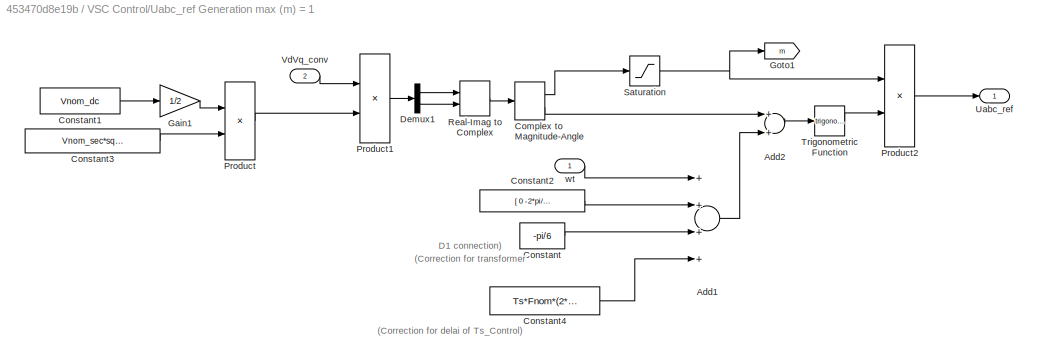
BLOCK [SubSystem] VSC Control/Uabc_ref Generation max (m) = 1
  Ports = [2, 1]
  RequestExecContextInheritance = off
BLOCK [Sum] VSC Control/Uabc_ref Generation max (m) = 1/Add1
  InputSameDT = off
  Inputs = ++++
  OutDataTypeStr = Inherit: Inherit via internal rule
  Ports = [4, 1]
  SaturateOnIntegerOverflow = off
BLOCK [Sum] VSC Control/Uabc_ref Generation max (m) = 1/Add2
  InputSameDT = off
  OutDataTypeStr = Inherit: Inherit via internal rule
  Ports = [2, 1]
  SaturateOnIntegerOverflow = off
BLOCK [ComplexToMagnitudeAngle] VSC Control/Uabc_ref Generation max (m) = 1/Complex to Magnitude-Angle
  Ports = [1, 2]
BLOCK [Constant] VSC Control/Uabc_ref Generation max (m) = 1/Constant
  Value = -pi/6
BLOCK [Constant] VSC Control/Uabc_ref Generation max (m) = 1/Constant1
  Value = Vnom_dc
BLOCK [Constant] VSC Control/Uabc_ref Generation max (m) = 1/Constant2
  Value = [ 0  -2*pi/3  2*pi/3  ]
BLOCK [Constant] VSC Control/Uabc_ref Generation max (m) = 1/Constant3
  Value = Vnom_sec*sqrt(2)/sqrt(3)
BLOCK [Constant] VSC Control/Uabc_ref Generation max (m) = 1/Constant4
  Value = Ts*Fnom*(2*pi)
BLOCK [Demux] VSC Control/Uabc_ref Generation max (m) = 1/Demux1
  DisplayOption = bar
  Outputs = 2
  Ports = [1, 2]
BLOCK [Gain] VSC Control/Uabc_ref Generation max (m) = 1/Gain1
  Gain = 1/2
  OutDataTypeStr = Inherit: Inherit via internal rule
  ParamDataTypeStr = Inherit: Inherit via internal rule
  SaturateOnIntegerOverflow = off
BLOCK [Goto] VSC Control/Uabc_ref Generation max (m) = 1/Goto1
  GotoTag = m
  TagVisibility = global
BLOCK [Product] VSC Control/Uabc_ref Generation max (m) = 1/Product
  InputSameDT = off
  Inputs = */
  OutDataTypeStr = Inherit: Inherit via internal rule
  Ports = [2, 1]
  SaturateOnIntegerOverflow = off
BLOCK [Product] VSC Control/Uabc_ref Generation max (m) = 1/Product1
  InputSameDT = off
  Inputs = */
  OutDataTypeStr = Inherit: Inherit via internal rule
  Ports = [2, 1]
  SaturateOnIntegerOverflow = off
BLOCK [Product] VSC Control/Uabc_ref Generation max (m) = 1/Product2
  InputSameDT = off
  Inputs = **
  OutDataTypeStr = Inherit: Inherit via internal rule
  Ports = [2, 1]
  SaturateOnIntegerOverflow = off
BLOCK [RealImagToComplex] VSC Control/Uabc_ref Generation max (m) = 1/Real-Imag to Complex
  Ports = [2, 1]
BLOCK [Saturate] VSC Control/Uabc_ref Generation max (m) = 1/Saturation
  InputPortMap = u0
  LowerLimit = 0
  Ports = [1, 1]
  UpperLimit = 1
BLOCK [Trigonometry] VSC Control/Uabc_ref Generation max (m) = 1/Trigonometric Function
  Ports = [1, 1]
BLOCK [Outport] VSC Control/Uabc_ref Generation max (m) = 1/Uabc_ref
  IconDisplay = Port number
  VectorParamsAs1DForOutWhenUnconnected = off
BLOCK [Inport] VSC Control/Uabc_ref Generation max (m) = 1/VdVq_conv
  IconDisplay = Port number
  Port = 2
BLOCK [Inport] VSC Control/Uabc_ref Generation max (m) = 1/wt
  IconDisplay = Port number
BLOCK [UnitDelay] VSC Control/Unit Delay
  HasFrameUpgradeWarning = on
  SampleTime = 0.0001
BLOCK [SubSystem] VSC Control/VDC Regulator
  Ports = [2, 1]
  RequestExecContextInheritance = off
BLOCK [Goto] VSC Control/VDC Regulator/Goto1
  GotoTag = Vdc_ref
  TagVisibility = global
BLOCK [Goto] VSC Control/VDC Regulator/Goto4
  GotoTag = Id_ref
  TagVisibility = global
BLOCK [Outport] VSC Control/VDC Regulator/Id_ref
  IconDisplay = Port number
  InitialOutput = 0
  SampleTime = Ts
  VectorParamsAs1DForOutWhenUnconnected = off
BLOCK [Reference] VSC Control/VDC Regulator/PI  REF=simulink/Continuous/PID Controller
  Ports = [1, 1]
  SourceBlock = simulink/Continuous/PID Controller
  SourceProductBaseCode = SL
  SourceProductName = Simulink
  SourceType = PID 1dof
BLOCK [Gain] VSC Control/VDC Regulator/Rtot_pu3
  Gain = 1/Vnom_dc
BLOCK [Sum] VSC Control/VDC Regulator/Sum
  IconShape = round
  InputSameDT = off
  Inputs = |+-
  OutDataTypeStr = Inherit: Inherit via internal rule
  Ports = [2, 1]
  SaturateOnIntegerOverflow = off
BLOCK [Inport] VSC Control/VDC Regulator/Vdc_mes
  IconDisplay = Port number
  PortDimensions = 1
BLOCK [Inport] VSC Control/VDC Regulator/Vdc_ref
  IconDisplay = Port number
  Port = 2
  PortDimensions = 1
BLOCK [Inport] VSC Control/Vabc_prim
  IconDisplay = Port number
  PortDimensions = 3
BLOCK [Inport] VSC Control/Vdc_mes
  IconDisplay = Port number
  Port = 3
  PortDimensions = 1
BLOCK [Constant] VSC Control/Vdc_ref1
  Value = Vdc_ref
BLOCK [Reference] Vdc 1  REF=powerlib/Measurements/Voltage Measurement
  AttributesFormatString = \n
  Ports = [0, 1, 0, 0, 0, 2]
  SourceBlock = powerlib/Measurements/Voltage Measurement
  SourceProductBaseCode = PS
  SourceProductName = Simscape Electrical
  SourceType = Voltage Measurement
  Tag = PoWeRsYsTeMmEaSuReMeNt
BLOCK [Reference] Vdc 2  REF=powerlib/Measurements/Voltage Measurement
  AttributesFormatString = \n
  Ports = [0, 1, 0, 0, 0, 2]
  SourceBlock = powerlib/Measurements/Voltage Measurement
  SourceProductBaseCode = PS
  SourceProductName = Simscape Electrical
  SourceType = Voltage Measurement
  Tag = PoWeRsYsTeMmEaSuReMeNt
BLOCK [Reference] powergui  REF=powerlib/powergui
  Ports = []
  Priority = 1
  SourceBlock = powerlib/powergui
  SourceProductBaseCode = PS
  SourceProductName = Simscape Electrical
  SourceType = PSB option menu block
ANNOTATION (root): Boost Conveter
ANNOTATION (root): House load
ANNOTATION (root): Inveter
ANNOTATION VSC Control: VSC Main Controller
ANNOTATION VSC Control/Current Regulator: (Vd_prim - Vd_conv) ~= + Iq * Ltot
ANNOTATION VSC Control/Current Regulator: (Vq_prim - Vq_conv) ~ = - Id * Ltot
ANNOTATION VSC Control/Current Regulator: Current Regulator (with feedforward)
ANNOTATION VSC Control/Current Regulator: For Ltot >> Rtot :
ANNOTATION VSC Control/Current Regulator: Id positive --> The converter generates active power ("Inverter mode") = Active Power P positive
ANNOTATION VSC Control/Current Regulator: Iq positive --> The converter absorbs reactive power ("Inductive mode") = Reactive Power Q negative
ANNOTATION VSC Control/Current Regulator: Ltot = Lxfo + Lchoke Rtot = Rxfo + Rchoke
ANNOTATION VSC Control/Current Regulator: Sign Convention: Current going out of the converter = positive current
ANNOTATION VSC Control/Current Regulator: Vd_mes + Id*R - Iq*L + deriv(Id)*L= Vd_conv
ANNOTATION VSC Control/Current Regulator: Vq_mes + Id*L + Iq*R + deriv(Iq)*L= Vq_conv
ANNOTATION VSC Control/Current Regulator: harmonic filter neglected
ANNOTATION VSC Control/Uabc_ref Generation max (m) = 1: (Correction for delai of Ts_Control)
ANNOTATION VSC Control/Uabc_ref Generation max (m) = 1: (Correction for transformer D1 connection)
LINE Aloe E Battery Array/12 V Aloe E-Cell1/Constant1:1 -> Aloe E Battery Array/12 V Aloe E-Cell1/Controlled Voltage Source:1
LINE Aloe E Battery Array/12 V Aloe E-Cell1/Constant:1 -> Aloe E Battery Array/12 V Aloe E-Cell1/Controlled Current Source:1
LINE Aloe E Battery Array/12 V Aloe E-Cell1/Current Measurement:1 -> Aloe E Battery Array/12 V Aloe E-Cell1/Display1:1
LINE Aloe E Battery Array/12 V Aloe E-Cell1/Voltage Measurement:1 -> Aloe E Battery Array/12 V Aloe E-Cell1/Display:1
LINE Aloe E Battery Array/12 V Aloe E-Cell10/Constant1:1 -> Aloe E Battery Array/12 V Aloe E-Cell10/Controlled Voltage Source:1
LINE Aloe E Battery Array/12 V Aloe E-Cell10/Constant:1 -> Aloe E Battery Array/12 V Aloe E-Cell10/Controlled Current Source:1
LINE Aloe E Battery Array/12 V Aloe E-Cell10/Current Measurement:1 -> Aloe E Battery Array/12 V Aloe E-Cell10/Display1:1
LINE Aloe E Battery Array/12 V Aloe E-Cell10/Voltage Measurement:1 -> Aloe E Battery Array/12 V Aloe E-Cell10/Display:1
LINE Aloe E Battery Array/12 V Aloe E-Cell11/Constant1:1 -> Aloe E Battery Array/12 V Aloe E-Cell11/Controlled Voltage Source:1
LINE Aloe E Battery Array/12 V Aloe E-Cell11/Constant:1 -> Aloe E Battery Array/12 V Aloe E-Cell11/Controlled Current Source:1
LINE Aloe E Battery Array/12 V Aloe E-Cell11/Current Measurement:1 -> Aloe E Battery Array/12 V Aloe E-Cell11/Display1:1
LINE Aloe E Battery Array/12 V Aloe E-Cell11/Voltage Measurement:1 -> Aloe E Battery Array/12 V Aloe E-Cell11/Display:1
LINE Aloe E Battery Array/12 V Aloe E-Cell12/Constant1:1 -> Aloe E Battery Array/12 V Aloe E-Cell12/Controlled Voltage Source:1
LINE Aloe E Battery Array/12 V Aloe E-Cell12/Constant:1 -> Aloe E Battery Array/12 V Aloe E-Cell12/Controlled Current Source:1
LINE Aloe E Battery Array/12 V Aloe E-Cell12/Current Measurement:1 -> Aloe E Battery Array/12 V Aloe E-Cell12/Display1:1
LINE Aloe E Battery Array/12 V Aloe E-Cell12/Voltage Measurement:1 -> Aloe E Battery Array/12 V Aloe E-Cell12/Display:1
LINE Aloe E Battery Array/12 V Aloe E-Cell13/Constant1:1 -> Aloe E Battery Array/12 V Aloe E-Cell13/Controlled Voltage Source:1
LINE Aloe E Battery Array/12 V Aloe E-Cell13/Constant:1 -> Aloe E Battery Array/12 V Aloe E-Cell13/Controlled Current Source:1
LINE Aloe E Battery Array/12 V Aloe E-Cell13/Current Measurement:1 -> Aloe E Battery Array/12 V Aloe E-Cell13/Display1:1
LINE Aloe E Battery Array/12 V Aloe E-Cell13/Voltage Measurement:1 -> Aloe E Battery Array/12 V Aloe E-Cell13/Display:1
LINE Aloe E Battery Array/12 V Aloe E-Cell14/Constant1:1 -> Aloe E Battery Array/12 V Aloe E-Cell14/Controlled Voltage Source:1
LINE Aloe E Battery Array/12 V Aloe E-Cell14/Constant:1 -> Aloe E Battery Array/12 V Aloe E-Cell14/Controlled Current Source:1
LINE Aloe E Battery Array/12 V Aloe E-Cell14/Current Measurement:1 -> Aloe E Battery Array/12 V Aloe E-Cell14/Display1:1
LINE Aloe E Battery Array/12 V Aloe E-Cell14/Voltage Measurement:1 -> Aloe E Battery Array/12 V Aloe E-Cell14/Display:1
LINE Aloe E Battery Array/12 V Aloe E-Cell15/Constant1:1 -> Aloe E Battery Array/12 V Aloe E-Cell15/Controlled Voltage Source:1
LINE Aloe E Battery Array/12 V Aloe E-Cell15/Constant:1 -> Aloe E Battery Array/12 V Aloe E-Cell15/Controlled Current Source:1
LINE Aloe E Battery Array/12 V Aloe E-Cell15/Current Measurement:1 -> Aloe E Battery Array/12 V Aloe E-Cell15/Display1:1
LINE Aloe E Battery Array/12 V Aloe E-Cell15/Voltage Measurement:1 -> Aloe E Battery Array/12 V Aloe E-Cell15/Display:1
LINE Aloe E Battery Array/12 V Aloe E-Cell16/Constant1:1 -> Aloe E Battery Array/12 V Aloe E-Cell16/Controlled Voltage Source:1
LINE Aloe E Battery Array/12 V Aloe E-Cell16/Constant:1 -> Aloe E Battery Array/12 V Aloe E-Cell16/Controlled Current Source:1
LINE Aloe E Battery Array/12 V Aloe E-Cell16/Current Measurement:1 -> Aloe E Battery Array/12 V Aloe E-Cell16/Display1:1
LINE Aloe E Battery Array/12 V Aloe E-Cell16/Voltage Measurement:1 -> Aloe E Battery Array/12 V Aloe E-Cell16/Display:1
LINE Aloe E Battery Array/12 V Aloe E-Cell17/Constant1:1 -> Aloe E Battery Array/12 V Aloe E-Cell17/Controlled Voltage Source:1
LINE Aloe E Battery Array/12 V Aloe E-Cell17/Constant:1 -> Aloe E Battery Array/12 V Aloe E-Cell17/Controlled Current Source:1
LINE Aloe E Battery Array/12 V Aloe E-Cell17/Current Measurement:1 -> Aloe E Battery Array/12 V Aloe E-Cell17/Display1:1
LINE Aloe E Battery Array/12 V Aloe E-Cell17/Voltage Measurement:1 -> Aloe E Battery Array/12 V Aloe E-Cell17/Display:1
LINE Aloe E Battery Array/12 V Aloe E-Cell18/Constant1:1 -> Aloe E Battery Array/12 V Aloe E-Cell18/Controlled Voltage Source:1
LINE Aloe E Battery Array/12 V Aloe E-Cell18/Constant:1 -> Aloe E Battery Array/12 V Aloe E-Cell18/Controlled Current Source:1
LINE Aloe E Battery Array/12 V Aloe E-Cell18/Current Measurement:1 -> Aloe E Battery Array/12 V Aloe E-Cell18/Display1:1
LINE Aloe E Battery Array/12 V Aloe E-Cell18/Voltage Measurement:1 -> Aloe E Battery Array/12 V Aloe E-Cell18/Display:1
LINE Aloe E Battery Array/12 V Aloe E-Cell19/Constant1:1 -> Aloe E Battery Array/12 V Aloe E-Cell19/Controlled Voltage Source:1
LINE Aloe E Battery Array/12 V Aloe E-Cell19/Constant:1 -> Aloe E Battery Array/12 V Aloe E-Cell19/Controlled Current Source:1
LINE Aloe E Battery Array/12 V Aloe E-Cell19/Current Measurement:1 -> Aloe E Battery Array/12 V Aloe E-Cell19/Display1:1
LINE Aloe E Battery Array/12 V Aloe E-Cell19/Voltage Measurement:1 -> Aloe E Battery Array/12 V Aloe E-Cell19/Display:1
LINE Aloe E Battery Array/12 V Aloe E-Cell2/Constant1:1 -> Aloe E Battery Array/12 V Aloe E-Cell2/Controlled Voltage Source:1
LINE Aloe E Battery Array/12 V Aloe E-Cell2/Constant:1 -> Aloe E Battery Array/12 V Aloe E-Cell2/Controlled Current Source:1
LINE Aloe E Battery Array/12 V Aloe E-Cell2/Current Measurement:1 -> Aloe E Battery Array/12 V Aloe E-Cell2/Display1:1
LINE Aloe E Battery Array/12 V Aloe E-Cell2/Voltage Measurement:1 -> Aloe E Battery Array/12 V Aloe E-Cell2/Display:1
LINE Aloe E Battery Array/12 V Aloe E-Cell20/Constant1:1 -> Aloe E Battery Array/12 V Aloe E-Cell20/Controlled Voltage Source:1
LINE Aloe E Battery Array/12 V Aloe E-Cell20/Constant:1 -> Aloe E Battery Array/12 V Aloe E-Cell20/Controlled Current Source:1
LINE Aloe E Battery Array/12 V Aloe E-Cell20/Current Measurement:1 -> Aloe E Battery Array/12 V Aloe E-Cell20/Display1:1
LINE Aloe E Battery Array/12 V Aloe E-Cell20/Voltage Measurement:1 -> Aloe E Battery Array/12 V Aloe E-Cell20/Display:1
LINE Aloe E Battery Array/12 V Aloe E-Cell21/Constant1:1 -> Aloe E Battery Array/12 V Aloe E-Cell21/Controlled Voltage Source:1
LINE Aloe E Battery Array/12 V Aloe E-Cell21/Constant:1 -> Aloe E Battery Array/12 V Aloe E-Cell21/Controlled Current Source:1
LINE Aloe E Battery Array/12 V Aloe E-Cell21/Current Measurement:1 -> Aloe E Battery Array/12 V Aloe E-Cell21/Display1:1
LINE Aloe E Battery Array/12 V Aloe E-Cell21/Voltage Measurement:1 -> Aloe E Battery Array/12 V Aloe E-Cell21/Display:1
LINE Aloe E Battery Array/12 V Aloe E-Cell22/Constant1:1 -> Aloe E Battery Array/12 V Aloe E-Cell22/Controlled Voltage Source:1
LINE Aloe E Battery Array/12 V Aloe E-Cell22/Constant:1 -> Aloe E Battery Array/12 V Aloe E-Cell22/Controlled Current Source:1
LINE Aloe E Battery Array/12 V Aloe E-Cell22/Current Measurement:1 -> Aloe E Battery Array/12 V Aloe E-Cell22/Display1:1
LINE Aloe E Battery Array/12 V Aloe E-Cell22/Voltage Measurement:1 -> Aloe E Battery Array/12 V Aloe E-Cell22/Display:1
LINE Aloe E Battery Array/12 V Aloe E-Cell23/Constant1:1 -> Aloe E Battery Array/12 V Aloe E-Cell23/Controlled Voltage Source:1
LINE Aloe E Battery Array/12 V Aloe E-Cell23/Constant:1 -> Aloe E Battery Array/12 V Aloe E-Cell23/Controlled Current Source:1
LINE Aloe E Battery Array/12 V Aloe E-Cell23/Current Measurement:1 -> Aloe E Battery Array/12 V Aloe E-Cell23/Display1:1
LINE Aloe E Battery Array/12 V Aloe E-Cell23/Voltage Measurement:1 -> Aloe E Battery Array/12 V Aloe E-Cell23/Display:1
LINE Aloe E Battery Array/12 V Aloe E-Cell24/Constant1:1 -> Aloe E Battery Array/12 V Aloe E-Cell24/Controlled Voltage Source:1
LINE Aloe E Battery Array/12 V Aloe E-Cell24/Constant:1 -> Aloe E Battery Array/12 V Aloe E-Cell24/Controlled Current Source:1
LINE Aloe E Battery Array/12 V Aloe E-Cell24/Current Measurement:1 -> Aloe E Battery Array/12 V Aloe E-Cell24/Display1:1
LINE Aloe E Battery Array/12 V Aloe E-Cell24/Voltage Measurement:1 -> Aloe E Battery Array/12 V Aloe E-Cell24/Display:1
LINE Aloe E Battery Array/12 V Aloe E-Cell25/Constant1:1 -> Aloe E Battery Array/12 V Aloe E-Cell25/Controlled Voltage Source:1
LINE Aloe E Battery Array/12 V Aloe E-Cell25/Constant:1 -> Aloe E Battery Array/12 V Aloe E-Cell25/Controlled Current Source:1
LINE Aloe E Battery Array/12 V Aloe E-Cell25/Current Measurement:1 -> Aloe E Battery Array/12 V Aloe E-Cell25/Display1:1
LINE Aloe E Battery Array/12 V Aloe E-Cell25/Voltage Measurement:1 -> Aloe E Battery Array/12 V Aloe E-Cell25/Display:1
LINE Aloe E Battery Array/12 V Aloe E-Cell26/Constant1:1 -> Aloe E Battery Array/12 V Aloe E-Cell26/Controlled Voltage Source:1
LINE Aloe E Battery Array/12 V Aloe E-Cell26/Constant:1 -> Aloe E Battery Array/12 V Aloe E-Cell26/Controlled Current Source:1
LINE Aloe E Battery Array/12 V Aloe E-Cell26/Current Measurement:1 -> Aloe E Battery Array/12 V Aloe E-Cell26/Display1:1
LINE Aloe E Battery Array/12 V Aloe E-Cell26/Voltage Measurement:1 -> Aloe E Battery Array/12 V Aloe E-Cell26/Display:1
LINE Aloe E Battery Array/12 V Aloe E-Cell27/Constant1:1 -> Aloe E Battery Array/12 V Aloe E-Cell27/Controlled Voltage Source:1
LINE Aloe E Battery Array/12 V Aloe E-Cell27/Constant:1 -> Aloe E Battery Array/12 V Aloe E-Cell27/Controlled Current Source:1
LINE Aloe E Battery Array/12 V Aloe E-Cell27/Current Measurement:1 -> Aloe E Battery Array/12 V Aloe E-Cell27/Display1:1
LINE Aloe E Battery Array/12 V Aloe E-Cell27/Voltage Measurement:1 -> Aloe E Battery Array/12 V Aloe E-Cell27/Display:1
LINE Aloe E Battery Array/12 V Aloe E-Cell28/Constant1:1 -> Aloe E Battery Array/12 V Aloe E-Cell28/Controlled Voltage Source:1
LINE Aloe E Battery Array/12 V Aloe E-Cell28/Constant:1 -> Aloe E Battery Array/12 V Aloe E-Cell28/Controlled Current Source:1
LINE Aloe E Battery Array/12 V Aloe E-Cell28/Current Measurement:1 -> Aloe E Battery Array/12 V Aloe E-Cell28/Display1:1
LINE Aloe E Battery Array/12 V Aloe E-Cell28/Voltage Measurement:1 -> Aloe E Battery Array/12 V Aloe E-Cell28/Display:1
LINE Aloe E Battery Array/12 V Aloe E-Cell29/Constant1:1 -> Aloe E Battery Array/12 V Aloe E-Cell29/Controlled Voltage Source:1
LINE Aloe E Battery Array/12 V Aloe E-Cell29/Constant:1 -> Aloe E Battery Array/12 V Aloe E-Cell29/Controlled Current Source:1
LINE Aloe E Battery Array/12 V Aloe E-Cell29/Current Measurement:1 -> Aloe E Battery Array/12 V Aloe E-Cell29/Display1:1
LINE Aloe E Battery Array/12 V Aloe E-Cell29/Voltage Measurement:1 -> Aloe E Battery Array/12 V Aloe E-Cell29/Display:1
LINE Aloe E Battery Array/12 V Aloe E-Cell3/Constant1:1 -> Aloe E Battery Array/12 V Aloe E-Cell3/Controlled Voltage Source:1
LINE Aloe E Battery Array/12 V Aloe E-Cell3/Constant:1 -> Aloe E Battery Array/12 V Aloe E-Cell3/Controlled Current Source:1
LINE Aloe E Battery Array/12 V Aloe E-Cell3/Current Measurement:1 -> Aloe E Battery Array/12 V Aloe E-Cell3/Display1:1
LINE Aloe E Battery Array/12 V Aloe E-Cell3/Voltage Measurement:1 -> Aloe E Battery Array/12 V Aloe E-Cell3/Display:1
LINE Aloe E Battery Array/12 V Aloe E-Cell30/Constant1:1 -> Aloe E Battery Array/12 V Aloe E-Cell30/Controlled Voltage Source:1
LINE Aloe E Battery Array/12 V Aloe E-Cell30/Constant:1 -> Aloe E Battery Array/12 V Aloe E-Cell30/Controlled Current Source:1
LINE Aloe E Battery Array/12 V Aloe E-Cell30/Current Measurement:1 -> Aloe E Battery Array/12 V Aloe E-Cell30/Display1:1
LINE Aloe E Battery Array/12 V Aloe E-Cell30/Voltage Measurement:1 -> Aloe E Battery Array/12 V Aloe E-Cell30/Display:1
LINE Aloe E Battery Array/12 V Aloe E-Cell31/Constant1:1 -> Aloe E Battery Array/12 V Aloe E-Cell31/Controlled Voltage Source:1
LINE Aloe E Battery Array/12 V Aloe E-Cell31/Constant:1 -> Aloe E Battery Array/12 V Aloe E-Cell31/Controlled Current Source:1
LINE Aloe E Battery Array/12 V Aloe E-Cell31/Current Measurement:1 -> Aloe E Battery Array/12 V Aloe E-Cell31/Display1:1
LINE Aloe E Battery Array/12 V Aloe E-Cell31/Voltage Measurement:1 -> Aloe E Battery Array/12 V Aloe E-Cell31/Display:1
LINE Aloe E Battery Array/12 V Aloe E-Cell32/Constant1:1 -> Aloe E Battery Array/12 V Aloe E-Cell32/Controlled Voltage Source:1
LINE Aloe E Battery Array/12 V Aloe E-Cell32/Constant:1 -> Aloe E Battery Array/12 V Aloe E-Cell32/Controlled Current Source:1
LINE Aloe E Battery Array/12 V Aloe E-Cell32/Current Measurement:1 -> Aloe E Battery Array/12 V Aloe E-Cell32/Display1:1
LINE Aloe E Battery Array/12 V Aloe E-Cell32/Voltage Measurement:1 -> Aloe E Battery Array/12 V Aloe E-Cell32/Display:1
LINE Aloe E Battery Array/12 V Aloe E-Cell33/Constant1:1 -> Aloe E Battery Array/12 V Aloe E-Cell33/Controlled Voltage Source:1
LINE Aloe E Battery Array/12 V Aloe E-Cell33/Constant:1 -> Aloe E Battery Array/12 V Aloe E-Cell33/Controlled Current Source:1
LINE Aloe E Battery Array/12 V Aloe E-Cell33/Current Measurement:1 -> Aloe E Battery Array/12 V Aloe E-Cell33/Display1:1
LINE Aloe E Battery Array/12 V Aloe E-Cell33/Voltage Measurement:1 -> Aloe E Battery Array/12 V Aloe E-Cell33/Display:1
LINE Aloe E Battery Array/12 V Aloe E-Cell34/Constant1:1 -> Aloe E Battery Array/12 V Aloe E-Cell34/Controlled Voltage Source:1
LINE Aloe E Battery Array/12 V Aloe E-Cell34/Constant:1 -> Aloe E Battery Array/12 V Aloe E-Cell34/Controlled Current Source:1
LINE Aloe E Battery Array/12 V Aloe E-Cell34/Current Measurement:1 -> Aloe E Battery Array/12 V Aloe E-Cell34/Display1:1
LINE Aloe E Battery Array/12 V Aloe E-Cell34/Voltage Measurement:1 -> Aloe E Battery Array/12 V Aloe E-Cell34/Display:1
LINE Aloe E Battery Array/12 V Aloe E-Cell35/Constant1:1 -> Aloe E Battery Array/12 V Aloe E-Cell35/Controlled Voltage Source:1
LINE Aloe E Battery Array/12 V Aloe E-Cell35/Constant:1 -> Aloe E Battery Array/12 V Aloe E-Cell35/Controlled Current Source:1
LINE Aloe E Battery Array/12 V Aloe E-Cell35/Current Measurement:1 -> Aloe E Battery Array/12 V Aloe E-Cell35/Display1:1
LINE Aloe E Battery Array/12 V Aloe E-Cell35/Voltage Measurement:1 -> Aloe E Battery Array/12 V Aloe E-Cell35/Display:1
LINE Aloe E Battery Array/12 V Aloe E-Cell36/Constant1:1 -> Aloe E Battery Array/12 V Aloe E-Cell36/Controlled Voltage Source:1
LINE Aloe E Battery Array/12 V Aloe E-Cell36/Constant:1 -> Aloe E Battery Array/12 V Aloe E-Cell36/Controlled Current Source:1
LINE Aloe E Battery Array/12 V Aloe E-Cell36/Current Measurement:1 -> Aloe E Battery Array/12 V Aloe E-Cell36/Display1:1
LINE Aloe E Battery Array/12 V Aloe E-Cell36/Voltage Measurement:1 -> Aloe E Battery Array/12 V Aloe E-Cell36/Display:1
LINE Aloe E Battery Array/12 V Aloe E-Cell37/Constant1:1 -> Aloe E Battery Array/12 V Aloe E-Cell37/Controlled Voltage Source:1
LINE Aloe E Battery Array/12 V Aloe E-Cell37/Constant:1 -> Aloe E Battery Array/12 V Aloe E-Cell37/Controlled Current Source:1
LINE Aloe E Battery Array/12 V Aloe E-Cell37/Current Measurement:1 -> Aloe E Battery Array/12 V Aloe E-Cell37/Display1:1
LINE Aloe E Battery Array/12 V Aloe E-Cell37/Voltage Measurement:1 -> Aloe E Battery Array/12 V Aloe E-Cell37/Display:1
LINE Aloe E Battery Array/12 V Aloe E-Cell38/Constant1:1 -> Aloe E Battery Array/12 V Aloe E-Cell38/Controlled Voltage Source:1
LINE Aloe E Battery Array/12 V Aloe E-Cell38/Constant:1 -> Aloe E Battery Array/12 V Aloe E-Cell38/Controlled Current Source:1
LINE Aloe E Battery Array/12 V Aloe E-Cell38/Current Measurement:1 -> Aloe E Battery Array/12 V Aloe E-Cell38/Display1:1
LINE Aloe E Battery Array/12 V Aloe E-Cell38/Voltage Measurement:1 -> Aloe E Battery Array/12 V Aloe E-Cell38/Display:1
LINE Aloe E Battery Array/12 V Aloe E-Cell39/Constant1:1 -> Aloe E Battery Array/12 V Aloe E-Cell39/Controlled Voltage Source:1
LINE Aloe E Battery Array/12 V Aloe E-Cell39/Constant:1 -> Aloe E Battery Array/12 V Aloe E-Cell39/Controlled Current Source:1
LINE Aloe E Battery Array/12 V Aloe E-Cell39/Current Measurement:1 -> Aloe E Battery Array/12 V Aloe E-Cell39/Display1:1
LINE Aloe E Battery Array/12 V Aloe E-Cell39/Voltage Measurement:1 -> Aloe E Battery Array/12 V Aloe E-Cell39/Display:1
LINE Aloe E Battery Array/12 V Aloe E-Cell4/Constant1:1 -> Aloe E Battery Array/12 V Aloe E-Cell4/Controlled Voltage Source:1
LINE Aloe E Battery Array/12 V Aloe E-Cell4/Constant:1 -> Aloe E Battery Array/12 V Aloe E-Cell4/Controlled Current Source:1
LINE Aloe E Battery Array/12 V Aloe E-Cell4/Current Measurement:1 -> Aloe E Battery Array/12 V Aloe E-Cell4/Display1:1
LINE Aloe E Battery Array/12 V Aloe E-Cell4/Voltage Measurement:1 -> Aloe E Battery Array/12 V Aloe E-Cell4/Display:1
LINE Aloe E Battery Array/12 V Aloe E-Cell40/Constant1:1 -> Aloe E Battery Array/12 V Aloe E-Cell40/Controlled Voltage Source:1
LINE Aloe E Battery Array/12 V Aloe E-Cell40/Constant:1 -> Aloe E Battery Array/12 V Aloe E-Cell40/Controlled Current Source:1
LINE Aloe E Battery Array/12 V Aloe E-Cell40/Current Measurement:1 -> Aloe E Battery Array/12 V Aloe E-Cell40/Display1:1
LINE Aloe E Battery Array/12 V Aloe E-Cell40/Voltage Measurement:1 -> Aloe E Battery Array/12 V Aloe E-Cell40/Display:1
LINE Aloe E Battery Array/12 V Aloe E-Cell5/Constant1:1 -> Aloe E Battery Array/12 V Aloe E-Cell5/Controlled Voltage Source:1
LINE Aloe E Battery Array/12 V Aloe E-Cell5/Constant:1 -> Aloe E Battery Array/12 V Aloe E-Cell5/Controlled Current Source:1
LINE Aloe E Battery Array/12 V Aloe E-Cell5/Current Measurement:1 -> Aloe E Battery Array/12 V Aloe E-Cell5/Display1:1
LINE Aloe E Battery Array/12 V Aloe E-Cell5/Voltage Measurement:1 -> Aloe E Battery Array/12 V Aloe E-Cell5/Display:1
LINE Aloe E Battery Array/12 V Aloe E-Cell6/Constant1:1 -> Aloe E Battery Array/12 V Aloe E-Cell6/Controlled Voltage Source:1
LINE Aloe E Battery Array/12 V Aloe E-Cell6/Constant:1 -> Aloe E Battery Array/12 V Aloe E-Cell6/Controlled Current Source:1
LINE Aloe E Battery Array/12 V Aloe E-Cell6/Current Measurement:1 -> Aloe E Battery Array/12 V Aloe E-Cell6/Display1:1
LINE Aloe E Battery Array/12 V Aloe E-Cell6/Voltage Measurement:1 -> Aloe E Battery Array/12 V Aloe E-Cell6/Display:1
LINE Aloe E Battery Array/12 V Aloe E-Cell7/Constant1:1 -> Aloe E Battery Array/12 V Aloe E-Cell7/Controlled Voltage Source:1
LINE Aloe E Battery Array/12 V Aloe E-Cell7/Constant:1 -> Aloe E Battery Array/12 V Aloe E-Cell7/Controlled Current Source:1
LINE Aloe E Battery Array/12 V Aloe E-Cell7/Current Measurement:1 -> Aloe E Battery Array/12 V Aloe E-Cell7/Display1:1
LINE Aloe E Battery Array/12 V Aloe E-Cell7/Voltage Measurement:1 -> Aloe E Battery Array/12 V Aloe E-Cell7/Display:1
LINE Aloe E Battery Array/12 V Aloe E-Cell8/Constant1:1 -> Aloe E Battery Array/12 V Aloe E-Cell8/Controlled Voltage Source:1
LINE Aloe E Battery Array/12 V Aloe E-Cell8/Constant:1 -> Aloe E Battery Array/12 V Aloe E-Cell8/Controlled Current Source:1
LINE Aloe E Battery Array/12 V Aloe E-Cell8/Current Measurement:1 -> Aloe E Battery Array/12 V Aloe E-Cell8/Display1:1
LINE Aloe E Battery Array/12 V Aloe E-Cell8/Voltage Measurement:1 -> Aloe E Battery Array/12 V Aloe E-Cell8/Display:1
LINE Aloe E Battery Array/12 V Aloe E-Cell9/Constant1:1 -> Aloe E Battery Array/12 V Aloe E-Cell9/Controlled Voltage Source:1
LINE Aloe E Battery Array/12 V Aloe E-Cell9/Constant:1 -> Aloe E Battery Array/12 V Aloe E-Cell9/Controlled Current Source:1
LINE Aloe E Battery Array/12 V Aloe E-Cell9/Current Measurement:1 -> Aloe E Battery Array/12 V Aloe E-Cell9/Display1:1
LINE Aloe E Battery Array/12 V Aloe E-Cell9/Voltage Measurement:1 -> Aloe E Battery Array/12 V Aloe E-Cell9/Display:1
LINE Aloe E Battery Array/Current Measurement:1 -> Aloe E Battery Array/Display1:1
LINE Aloe E Battery Array/Voltage Measurement:1 -> Aloe E Battery Array/Display:1
LINE D:1 -> PWM Generator (DC-DC):1
LINE From10:1 -> VSC Control:1
LINE From11:1 -> Grid:3
NET From1:1 -> Power (Positive-Sequence):2, Selector1:1
NET From2:1 -> Power (Positive-Sequence):1, Selector:1
LINE From3:1 -> Scope:1
LINE From4:1 -> VSC Control:3
LINE From9:1 -> VSC Control:2
LINE PWM Generator (DC-DC):1 -> IGBT2:1
LINE Power (Positive-Sequence):1 -> Grid:4
LINE Power (Positive-Sequence):2 -> Terminator1:1
LINE Selector1:1 -> Grid:2
LINE Selector:1 -> Grid:1
LINE VSC Control/Current Regulator/Add1:1 -> VSC Control/Current Regulator/Mux:1
LINE VSC Control/Current Regulator/Add2:1 -> VSC Control/Current Regulator/Saturation:1
LINE VSC Control/Current Regulator/Add3:1 -> VSC Control/Current Regulator/Mux:2
NET VSC Control/Current Regulator/Demux1:1 -> VSC Control/Current Regulator/Ltot_pu2:1, VSC Control/Current Regulator/Rtot_pu1:1
NET VSC Control/Current Regulator/Demux1:2 -> VSC Control/Current Regulator/Ltot_pu1:1, VSC Control/Current Regulator/Rtot_pu5:1
LINE VSC Control/Current Regulator/Demux:1 -> VSC Control/Current Regulator/Add1:1
LINE VSC Control/Current Regulator/Demux:2 -> VSC Control/Current Regulator/Add3:1
LINE VSC Control/Current Regulator/IdIq_mes:1 -> VSC Control/Current Regulator/Sum:1
NET VSC Control/Current Regulator/IdIq_ref:1 -> VSC Control/Current Regulator/Demux1:1, VSC Control/Current Regulator/Sum:2
LINE VSC Control/Current Regulator/Ltot_pu1:1 -> VSC Control/Current Regulator/Add1:3
LINE VSC Control/Current Regulator/Ltot_pu2:1 -> VSC Control/Current Regulator/Add3:3
NET VSC Control/Current Regulator/Mux:1 -> VSC Control/Current Regulator/Add2:2, VSC Control/Current Regulator/PI_Ireg1:1
LINE VSC Control/Current Regulator/PI:1 -> VSC Control/Current Regulator/Add2:1
LINE VSC Control/Current Regulator/Rtot_pu1:1 -> VSC Control/Current Regulator/Add1:2
LINE VSC Control/Current Regulator/Rtot_pu5:1 -> VSC Control/Current Regulator/Add3:2
LINE VSC Control/Current Regulator/Saturation:1 -> VSC Control/Current Regulator/VdVq_conv:1
LINE VSC Control/Current Regulator/Sum:1 -> VSC Control/Current Regulator/PI:1
LINE VSC Control/Current Regulator/VdVq_mes:1 -> VSC Control/Current Regulator/Demux:1
LINE VSC Control/Current Regulator:1 -> VSC Control/Uabc_ref Generation max (m) = 1:2
LINE VSC Control/Deblock Converters1:1 -> VSC Control/Product1:1
LINE VSC Control/Iabc_prim:1 -> VSC Control/PLL & Measurements:2
LINE VSC Control/Iq_ref:1 -> VSC Control/Mux:2
LINE VSC Control/Mux:1 -> VSC Control/Current Regulator:3
LINE VSC Control/PLL & Measurements/Iabc_prim:1 -> VSC Control/PLL & Measurements/V->pu1:1
LINE VSC Control/PLL & Measurements/PLL (3ph):1 -> VSC Control/PLL & Measurements/Terminator:1
NET VSC Control/PLL & Measurements/PLL (3ph):2 -> VSC Control/PLL & Measurements/abc to dq0:2, VSC Control/PLL & Measurements/abc to dq1:2, VSC Control/PLL & Measurements/wt:1
NET VSC Control/PLL & Measurements/Selector1:1 -> VSC Control/PLL & Measurements/Goto3:1, VSC Control/PLL & Measurements/IdIq_prim:1
LINE VSC Control/PLL & Measurements/Selector2:1 -> VSC Control/PLL & Measurements/VdVq_prim:1
LINE VSC Control/PLL & Measurements/V->pu1:1 -> VSC Control/PLL & Measurements/abc to dq1:1
NET VSC Control/PLL & Measurements/V->pu:1 -> VSC Control/PLL & Measurements/PLL (3ph):1, VSC Control/PLL & Measurements/abc to dq0:1
LINE VSC Control/PLL & Measurements/Vabc_prim:1 -> VSC Control/PLL & Measurements/V->pu:1
LINE VSC Control/PLL & Measurements/abc to dq0:1 -> VSC Control/PLL & Measurements/Selector2:1
LINE VSC Control/PLL & Measurements/abc to dq1:1 -> VSC Control/PLL & Measurements/Selector1:1
LINE VSC Control/PLL & Measurements:1 -> VSC Control/Uabc_ref Generation max (m) = 1:1
LINE VSC Control/PLL & Measurements:2 -> VSC Control/Current Regulator:1
LINE VSC Control/PLL & Measurements:3 -> VSC Control/Current Regulator:2
LINE VSC Control/PWM Generator (3-Level):1 -> VSC Control/Product1:2
LINE VSC Control/Product1:1 -> VSC Control/Pulses:1
LINE VSC Control/Uabc_ref Generation max (m) = 1/Add1:1 -> VSC Control/Uabc_ref Generation max (m) = 1/Add2:2
LINE VSC Control/Uabc_ref Generation max (m) = 1/Add2:1 -> VSC Control/Uabc_ref Generation max (m) = 1/Trigonometric Function:1
LINE VSC Control/Uabc_ref Generation max (m) = 1/Complex to Magnitude-Angle:1 -> VSC Control/Uabc_ref Generation max (m) = 1/Saturation:1
LINE VSC Control/Uabc_ref Generation max (m) = 1/Complex to Magnitude-Angle:2 -> VSC Control/Uabc_ref Generation max (m) = 1/Add2:1
LINE VSC Control/Uabc_ref Generation max (m) = 1/Constant1:1 -> VSC Control/Uabc_ref Generation max (m) = 1/Gain1:1
LINE VSC Control/Uabc_ref Generation max (m) = 1/Constant2:1 -> VSC Control/Uabc_ref Generation max (m) = 1/Add1:2
LINE VSC Control/Uabc_ref Generation max (m) = 1/Constant3:1 -> VSC Control/Uabc_ref Generation max (m) = 1/Product:2
LINE VSC Control/Uabc_ref Generation max (m) = 1/Constant4:1 -> VSC Control/Uabc_ref Generation max (m) = 1/Add1:4
LINE VSC Control/Uabc_ref Generation max (m) = 1/Constant:1 -> VSC Control/Uabc_ref Generation max (m) = 1/Add1:3
LINE VSC Control/Uabc_ref Generation max (m) = 1/Demux1:1 -> VSC Control/Uabc_ref Generation max (m) = 1/Real-Imag to Complex:1
LINE VSC Control/Uabc_ref Generation max (m) = 1/Demux1:2 -> VSC Control/Uabc_ref Generation max (m) = 1/Real-Imag to Complex:2
LINE VSC Control/Uabc_ref Generation max (m) = 1/Gain1:1 -> VSC Control/Uabc_ref Generation max (m) = 1/Product:1
LINE VSC Control/Uabc_ref Generation max (m) = 1/Product1:1 -> VSC Control/Uabc_ref Generation max (m) = 1/Demux1:1
LINE VSC Control/Uabc_ref Generation max (m) = 1/Product2:1 -> VSC Control/Uabc_ref Generation max (m) = 1/Uabc_ref:1
LINE VSC Control/Uabc_ref Generation max (m) = 1/Product:1 -> VSC Control/Uabc_ref Generation max (m) = 1/Product1:2
LINE VSC Control/Uabc_ref Generation max (m) = 1/Real-Imag to Complex:1 -> VSC Control/Uabc_ref Generation max (m) = 1/Complex to Magnitude-Angle:1
NET VSC Control/Uabc_ref Generation max (m) = 1/Saturation:1 -> VSC Control/Uabc_ref Generation max (m) = 1/Goto1:1, VSC Control/Uabc_ref Generation max (m) = 1/Product2:1
LINE VSC Control/Uabc_ref Generation max (m) = 1/Trigonometric Function:1 -> VSC Control/Uabc_ref Generation max (m) = 1/Product2:2
LINE VSC Control/Uabc_ref Generation max (m) = 1/VdVq_conv:1 -> VSC Control/Uabc_ref Generation max (m) = 1/Product1:1
LINE VSC Control/Uabc_ref Generation max (m) = 1/wt:1 -> VSC Control/Uabc_ref Generation max (m) = 1/Add1:1
LINE VSC Control/Uabc_ref Generation max (m) = 1:1 -> VSC Control/Unit Delay:1
LINE VSC Control/Unit Delay:1 -> VSC Control/PWM Generator (3-Level):1
NET VSC Control/VDC Regulator/PI:1 -> VSC Control/VDC Regulator/Goto4:1, VSC Control/VDC Regulator/Id_ref:1
LINE VSC Control/VDC Regulator/Rtot_pu3:1 -> VSC Control/VDC Regulator/PI:1
LINE VSC Control/VDC Regulator/Sum:1 -> VSC Control/VDC Regulator/Rtot_pu3:1
LINE VSC Control/VDC Regulator/Vdc_mes:1 -> VSC Control/VDC Regulator/Sum:1
NET VSC Control/VDC Regulator/Vdc_ref:1 -> VSC Control/VDC Regulator/Goto1:1, VSC Control/VDC Regulator/Sum:2
LINE VSC Control/VDC Regulator:1 -> VSC Control/Mux:1
LINE VSC Control/Vabc_prim:1 -> VSC Control/PLL & Measurements:1
LINE VSC Control/Vdc_mes:1 -> VSC Control/VDC Regulator:1
LINE VSC Control/Vdc_ref1:1 -> VSC Control/VDC Regulator:2
LINE VSC Control:1 -> Univarsal Bridge:1
LINE Vdc 1:1 -> Goto1:1
LINE Vdc 2:1 -> Goto2:1
PNET net1: 10 kvar Filter:LConn1 -- 240V // 400 kV:RConn1 -- L:RConn1
PNET net2: 10 kvar Filter:LConn2 -- 240V // 400 kV:RConn2 -- L:RConn2
PNET net3: 10 kvar Filter:LConn3 -- 240V // 400 kV:RConn3 -- L:RConn3
PLINE 240V // 400 kV:LConn1 -- Bus1:LConn1
PLINE 240V // 400 kV:LConn2 -- Bus1:LConn2
PLINE 240V // 400 kV:LConn3 -- Bus1:LConn3
PLINE Aloe E Battery Array/12 V Aloe E-Cell1/Controlled Current Source:LConn1 -- Aloe E Battery Array/12 V Aloe E-Cell1/Controlled Voltage Source:RConn1
PLINE Aloe E Battery Array/12 V Aloe E-Cell1/Controlled Current Source:RConn1 -- Aloe E Battery Array/12 V Aloe E-Cell1/Current Measurement:LConn1
PNET net4: Aloe E Battery Array/12 V Aloe E-Cell1/Controlled Voltage Source:LConn1 -- Aloe E Battery Array/12 V Aloe E-Cell1/Series RLC Branch1:RConn1 -- Aloe E Battery Array/12 V Aloe E-Cell1/V- :RConn1 -- Aloe E Battery Array/12 V Aloe E-Cell1/Voltage Measurement:LConn2
PNET net5: Aloe E Battery Array/12 V Aloe E-Cell1/Current Measurement:RConn1 -- Aloe E Battery Array/12 V Aloe E-Cell1/Series RLC Branch1:LConn1 -- Aloe E Battery Array/12 V Aloe E-Cell1/V+:RConn1 -- Aloe E Battery Array/12 V Aloe E-Cell1/Voltage Measurement:LConn1
PLINE Aloe E Battery Array/12 V Aloe E-Cell10/Controlled Current Source:LConn1 -- Aloe E Battery Array/12 V Aloe E-Cell10/Controlled Voltage Source:RConn1
PLINE Aloe E Battery Array/12 V Aloe E-Cell10/Controlled Current Source:RConn1 -- Aloe E Battery Array/12 V Aloe E-Cell10/Current Measurement:LConn1
PNET net6: Aloe E Battery Array/12 V Aloe E-Cell10/Controlled Voltage Source:LConn1 -- Aloe E Battery Array/12 V Aloe E-Cell10/Series RLC Branch1:RConn1 -- Aloe E Battery Array/12 V Aloe E-Cell10/V- :RConn1 -- Aloe E Battery Array/12 V Aloe E-Cell10/Voltage Measurement:LConn2
PNET net7: Aloe E Battery Array/12 V Aloe E-Cell10/Current Measurement:RConn1 -- Aloe E Battery Array/12 V Aloe E-Cell10/Series RLC Branch1:LConn1 -- Aloe E Battery Array/12 V Aloe E-Cell10/V+:RConn1 -- Aloe E Battery Array/12 V Aloe E-Cell10/Voltage Measurement:LConn1
PNET net8: Aloe E Battery Array/12 V Aloe E-Cell10:RConn1 -- Aloe E Battery Array/12 V Aloe E-Cell12:RConn1 -- Aloe E Battery Array/12 V Aloe E-Cell22:RConn1 -- Aloe E Battery Array/12 V Aloe E-Cell24:RConn1 -- Aloe E Battery Array/Current Measurement:LConn1
PLINE Aloe E Battery Array/12 V Aloe E-Cell10:RConn2 -- Aloe E Battery Array/12 V Aloe E-Cell1:RConn1
PLINE Aloe E Battery Array/12 V Aloe E-Cell11/Controlled Current Source:LConn1 -- Aloe E Battery Array/12 V Aloe E-Cell11/Controlled Voltage Source:RConn1
PLINE Aloe E Battery Array/12 V Aloe E-Cell11/Controlled Current Source:RConn1 -- Aloe E Battery Array/12 V Aloe E-Cell11/Current Measurement:LConn1
PNET net9: Aloe E Battery Array/12 V Aloe E-Cell11/Controlled Voltage Source:LConn1 -- Aloe E Battery Array/12 V Aloe E-Cell11/Series RLC Branch1:RConn1 -- Aloe E Battery Array/12 V Aloe E-Cell11/V- :RConn1 -- Aloe E Battery Array/12 V Aloe E-Cell11/Voltage Measurement:LConn2
PNET net10: Aloe E Battery Array/12 V Aloe E-Cell11/Current Measurement:RConn1 -- Aloe E Battery Array/12 V Aloe E-Cell11/Series RLC Branch1:LConn1 -- Aloe E Battery Array/12 V Aloe E-Cell11/V+:RConn1 -- Aloe E Battery Array/12 V Aloe E-Cell11/Voltage Measurement:LConn1
PLINE Aloe E Battery Array/12 V Aloe E-Cell11:RConn1 -- Aloe E Battery Array/12 V Aloe E-Cell12:RConn2
PLINE Aloe E Battery Array/12 V Aloe E-Cell11:RConn2 -- Aloe E Battery Array/12 V Aloe E-Cell13:RConn1
PLINE Aloe E Battery Array/12 V Aloe E-Cell12/Controlled Current Source:LConn1 -- Aloe E Battery Array/12 V Aloe E-Cell12/Controlled Voltage Source:RConn1
PLINE Aloe E Battery Array/12 V Aloe E-Cell12/Controlled Current Source:RConn1 -- Aloe E Battery Array/12 V Aloe E-Cell12/Current Measurement:LConn1
PNET net11: Aloe E Battery Array/12 V Aloe E-Cell12/Controlled Voltage Source:LConn1 -- Aloe E Battery Array/12 V Aloe E-Cell12/Series RLC Branch1:RConn1 -- Aloe E Battery Array/12 V Aloe E-Cell12/V- :RConn1 -- Aloe E Battery Array/12 V Aloe E-Cell12/Voltage Measurement:LConn2
PNET net12: Aloe E Battery Array/12 V Aloe E-Cell12/Current Measurement:RConn1 -- Aloe E Battery Array/12 V Aloe E-Cell12/Series RLC Branch1:LConn1 -- Aloe E Battery Array/12 V Aloe E-Cell12/V+:RConn1 -- Aloe E Battery Array/12 V Aloe E-Cell12/Voltage Measurement:LConn1
PLINE Aloe E Battery Array/12 V Aloe E-Cell13/Controlled Current Source:LConn1 -- Aloe E Battery Array/12 V Aloe E-Cell13/Controlled Voltage Source:RConn1
PLINE Aloe E Battery Array/12 V Aloe E-Cell13/Controlled Current Source:RConn1 -- Aloe E Battery Array/12 V Aloe E-Cell13/Current Measurement:LConn1
PNET net13: Aloe E Battery Array/12 V Aloe E-Cell13/Controlled Voltage Source:LConn1 -- Aloe E Battery Array/12 V Aloe E-Cell13/Series RLC Branch1:RConn1 -- Aloe E Battery Array/12 V Aloe E-Cell13/V- :RConn1 -- Aloe E Battery Array/12 V Aloe E-Cell13/Voltage Measurement:LConn2
PNET net14: Aloe E Battery Array/12 V Aloe E-Cell13/Current Measurement:RConn1 -- Aloe E Battery Array/12 V Aloe E-Cell13/Series RLC Branch1:LConn1 -- Aloe E Battery Array/12 V Aloe E-Cell13/V+:RConn1 -- Aloe E Battery Array/12 V Aloe E-Cell13/Voltage Measurement:LConn1
PLINE Aloe E Battery Array/12 V Aloe E-Cell13:RConn2 -- Aloe E Battery Array/12 V Aloe E-Cell14:RConn1
PLINE Aloe E Battery Array/12 V Aloe E-Cell14/Controlled Current Source:LConn1 -- Aloe E Battery Array/12 V Aloe E-Cell14/Controlled Voltage Source:RConn1
PLINE Aloe E Battery Array/12 V Aloe E-Cell14/Controlled Current Source:RConn1 -- Aloe E Battery Array/12 V Aloe E-Cell14/Current Measurement:LConn1
PNET net15: Aloe E Battery Array/12 V Aloe E-Cell14/Controlled Voltage Source:LConn1 -- Aloe E Battery Array/12 V Aloe E-Cell14/Series RLC Branch1:RConn1 -- Aloe E Battery Array/12 V Aloe E-Cell14/V- :RConn1 -- Aloe E Battery Array/12 V Aloe E-Cell14/Voltage Measurement:LConn2
PNET net16: Aloe E Battery Array/12 V Aloe E-Cell14/Current Measurement:RConn1 -- Aloe E Battery Array/12 V Aloe E-Cell14/Series RLC Branch1:LConn1 -- Aloe E Battery Array/12 V Aloe E-Cell14/V+:RConn1 -- Aloe E Battery Array/12 V Aloe E-Cell14/Voltage Measurement:LConn1
PLINE Aloe E Battery Array/12 V Aloe E-Cell14:RConn2 -- Aloe E Battery Array/12 V Aloe E-Cell15:RConn1
PLINE Aloe E Battery Array/12 V Aloe E-Cell15/Controlled Current Source:LConn1 -- Aloe E Battery Array/12 V Aloe E-Cell15/Controlled Voltage Source:RConn1
PLINE Aloe E Battery Array/12 V Aloe E-Cell15/Controlled Current Source:RConn1 -- Aloe E Battery Array/12 V Aloe E-Cell15/Current Measurement:LConn1
PNET net17: Aloe E Battery Array/12 V Aloe E-Cell15/Controlled Voltage Source:LConn1 -- Aloe E Battery Array/12 V Aloe E-Cell15/Series RLC Branch1:RConn1 -- Aloe E Battery Array/12 V Aloe E-Cell15/V- :RConn1 -- Aloe E Battery Array/12 V Aloe E-Cell15/Voltage Measurement:LConn2
PNET net18: Aloe E Battery Array/12 V Aloe E-Cell15/Current Measurement:RConn1 -- Aloe E Battery Array/12 V Aloe E-Cell15/Series RLC Branch1:LConn1 -- Aloe E Battery Array/12 V Aloe E-Cell15/V+:RConn1 -- Aloe E Battery Array/12 V Aloe E-Cell15/Voltage Measurement:LConn1
PLINE Aloe E Battery Array/12 V Aloe E-Cell15:RConn2 -- Aloe E Battery Array/12 V Aloe E-Cell17:RConn1
PLINE Aloe E Battery Array/12 V Aloe E-Cell16/Controlled Current Source:LConn1 -- Aloe E Battery Array/12 V Aloe E-Cell16/Controlled Voltage Source:RConn1
PLINE Aloe E Battery Array/12 V Aloe E-Cell16/Controlled Current Source:RConn1 -- Aloe E Battery Array/12 V Aloe E-Cell16/Current Measurement:LConn1
PNET net19: Aloe E Battery Array/12 V Aloe E-Cell16/Controlled Voltage Source:LConn1 -- Aloe E Battery Array/12 V Aloe E-Cell16/Series RLC Branch1:RConn1 -- Aloe E Battery Array/12 V Aloe E-Cell16/V- :RConn1 -- Aloe E Battery Array/12 V Aloe E-Cell16/Voltage Measurement:LConn2
PNET net20: Aloe E Battery Array/12 V Aloe E-Cell16/Current Measurement:RConn1 -- Aloe E Battery Array/12 V Aloe E-Cell16/Series RLC Branch1:LConn1 -- Aloe E Battery Array/12 V Aloe E-Cell16/V+:RConn1 -- Aloe E Battery Array/12 V Aloe E-Cell16/Voltage Measurement:LConn1
PLINE Aloe E Battery Array/12 V Aloe E-Cell16:RConn1 -- Aloe E Battery Array/12 V Aloe E-Cell17:RConn2
PLINE Aloe E Battery Array/12 V Aloe E-Cell16:RConn2 -- Aloe E Battery Array/12 V Aloe E-Cell18:RConn1
PLINE Aloe E Battery Array/12 V Aloe E-Cell17/Controlled Current Source:LConn1 -- Aloe E Battery Array/12 V Aloe E-Cell17/Controlled Voltage Source:RConn1
PLINE Aloe E Battery Array/12 V Aloe E-Cell17/Controlled Current Source:RConn1 -- Aloe E Battery Array/12 V Aloe E-Cell17/Current Measurement:LConn1
PNET net21: Aloe E Battery Array/12 V Aloe E-Cell17/Controlled Voltage Source:LConn1 -- Aloe E Battery Array/12 V Aloe E-Cell17/Series RLC Branch1:RConn1 -- Aloe E Battery Array/12 V Aloe E-Cell17/V- :RConn1 -- Aloe E Battery Array/12 V Aloe E-Cell17/Voltage Measurement:LConn2
PNET net22: Aloe E Battery Array/12 V Aloe E-Cell17/Current Measurement:RConn1 -- Aloe E Battery Array/12 V Aloe E-Cell17/Series RLC Branch1:LConn1 -- Aloe E Battery Array/12 V Aloe E-Cell17/V+:RConn1 -- Aloe E Battery Array/12 V Aloe E-Cell17/Voltage Measurement:LConn1
PLINE Aloe E Battery Array/12 V Aloe E-Cell18/Controlled Current Source:LConn1 -- Aloe E Battery Array/12 V Aloe E-Cell18/Controlled Voltage Source:RConn1
PLINE Aloe E Battery Array/12 V Aloe E-Cell18/Controlled Current Source:RConn1 -- Aloe E Battery Array/12 V Aloe E-Cell18/Current Measurement:LConn1
PNET net23: Aloe E Battery Array/12 V Aloe E-Cell18/Controlled Voltage Source:LConn1 -- Aloe E Battery Array/12 V Aloe E-Cell18/Series RLC Branch1:RConn1 -- Aloe E Battery Array/12 V Aloe E-Cell18/V- :RConn1 -- Aloe E Battery Array/12 V Aloe E-Cell18/Voltage Measurement:LConn2
PNET net24: Aloe E Battery Array/12 V Aloe E-Cell18/Current Measurement:RConn1 -- Aloe E Battery Array/12 V Aloe E-Cell18/Series RLC Branch1:LConn1 -- Aloe E Battery Array/12 V Aloe E-Cell18/V+:RConn1 -- Aloe E Battery Array/12 V Aloe E-Cell18/Voltage Measurement:LConn1
PLINE Aloe E Battery Array/12 V Aloe E-Cell18:RConn2 -- Aloe E Battery Array/12 V Aloe E-Cell19:RConn1
PLINE Aloe E Battery Array/12 V Aloe E-Cell19/Controlled Current Source:LConn1 -- Aloe E Battery Array/12 V Aloe E-Cell19/Controlled Voltage Source:RConn1
PLINE Aloe E Battery Array/12 V Aloe E-Cell19/Controlled Current Source:RConn1 -- Aloe E Battery Array/12 V Aloe E-Cell19/Current Measurement:LConn1
PNET net25: Aloe E Battery Array/12 V Aloe E-Cell19/Controlled Voltage Source:LConn1 -- Aloe E Battery Array/12 V Aloe E-Cell19/Series RLC Branch1:RConn1 -- Aloe E Battery Array/12 V Aloe E-Cell19/V- :RConn1 -- Aloe E Battery Array/12 V Aloe E-Cell19/Voltage Measurement:LConn2
PNET net26: Aloe E Battery Array/12 V Aloe E-Cell19/Current Measurement:RConn1 -- Aloe E Battery Array/12 V Aloe E-Cell19/Series RLC Branch1:LConn1 -- Aloe E Battery Array/12 V Aloe E-Cell19/V+:RConn1 -- Aloe E Battery Array/12 V Aloe E-Cell19/Voltage Measurement:LConn1
PLINE Aloe E Battery Array/12 V Aloe E-Cell19:RConn2 -- Aloe E Battery Array/12 V Aloe E-Cell20:RConn1
PLINE Aloe E Battery Array/12 V Aloe E-Cell1:RConn2 -- Aloe E Battery Array/12 V Aloe E-Cell2:RConn1
PLINE Aloe E Battery Array/12 V Aloe E-Cell2/Controlled Current Source:LConn1 -- Aloe E Battery Array/12 V Aloe E-Cell2/Controlled Voltage Source:RConn1
PLINE Aloe E Battery Array/12 V Aloe E-Cell2/Controlled Current Source:RConn1 -- Aloe E Battery Array/12 V Aloe E-Cell2/Current Measurement:LConn1
PNET net27: Aloe E Battery Array/12 V Aloe E-Cell2/Controlled Voltage Source:LConn1 -- Aloe E Battery Array/12 V Aloe E-Cell2/Series RLC Branch1:RConn1 -- Aloe E Battery Array/12 V Aloe E-Cell2/V- :RConn1 -- Aloe E Battery Array/12 V Aloe E-Cell2/Voltage Measurement:LConn2
PNET net28: Aloe E Battery Array/12 V Aloe E-Cell2/Current Measurement:RConn1 -- Aloe E Battery Array/12 V Aloe E-Cell2/Series RLC Branch1:LConn1 -- Aloe E Battery Array/12 V Aloe E-Cell2/V+:RConn1 -- Aloe E Battery Array/12 V Aloe E-Cell2/Voltage Measurement:LConn1
PLINE Aloe E Battery Array/12 V Aloe E-Cell20/Controlled Current Source:LConn1 -- Aloe E Battery Array/12 V Aloe E-Cell20/Controlled Voltage Source:RConn1
PLINE Aloe E Battery Array/12 V Aloe E-Cell20/Controlled Current Source:RConn1 -- Aloe E Battery Array/12 V Aloe E-Cell20/Current Measurement:LConn1
PNET net29: Aloe E Battery Array/12 V Aloe E-Cell20/Controlled Voltage Source:LConn1 -- Aloe E Battery Array/12 V Aloe E-Cell20/Series RLC Branch1:RConn1 -- Aloe E Battery Array/12 V Aloe E-Cell20/V- :RConn1 -- Aloe E Battery Array/12 V Aloe E-Cell20/Voltage Measurement:LConn2
PNET net30: Aloe E Battery Array/12 V Aloe E-Cell20/Current Measurement:RConn1 -- Aloe E Battery Array/12 V Aloe E-Cell20/Series RLC Branch1:LConn1 -- Aloe E Battery Array/12 V Aloe E-Cell20/V+:RConn1 -- Aloe E Battery Array/12 V Aloe E-Cell20/Voltage Measurement:LConn1
PNET net31: Aloe E Battery Array/12 V Aloe E-Cell20:RConn2 -- Aloe E Battery Array/12 V Aloe E-Cell33:RConn2 -- Aloe E Battery Array/12 V Aloe E-Cell40:RConn2 -- Aloe E Battery Array/12 V Aloe E-Cell9:RConn2 -- Aloe E Battery Array/Series RLC Branch1:RConn1 -- Aloe E Battery Array/V-:RConn1 -- Aloe E Battery Array/Voltage Measurement:LConn2
PLINE Aloe E Battery Array/12 V Aloe E-Cell21/Controlled Current Source:LConn1 -- Aloe E Battery Array/12 V Aloe E-Cell21/Controlled Voltage Source:RConn1
PLINE Aloe E Battery Array/12 V Aloe E-Cell21/Controlled Current Source:RConn1 -- Aloe E Battery Array/12 V Aloe E-Cell21/Current Measurement:LConn1
PNET net32: Aloe E Battery Array/12 V Aloe E-Cell21/Controlled Voltage Source:LConn1 -- Aloe E Battery Array/12 V Aloe E-Cell21/Series RLC Branch1:RConn1 -- Aloe E Battery Array/12 V Aloe E-Cell21/V- :RConn1 -- Aloe E Battery Array/12 V Aloe E-Cell21/Voltage Measurement:LConn2
PNET net33: Aloe E Battery Array/12 V Aloe E-Cell21/Current Measurement:RConn1 -- Aloe E Battery Array/12 V Aloe E-Cell21/Series RLC Branch1:LConn1 -- Aloe E Battery Array/12 V Aloe E-Cell21/V+:RConn1 -- Aloe E Battery Array/12 V Aloe E-Cell21/Voltage Measurement:LConn1
PLINE Aloe E Battery Array/12 V Aloe E-Cell21:RConn1 -- Aloe E Battery Array/12 V Aloe E-Cell22:RConn2
PLINE Aloe E Battery Array/12 V Aloe E-Cell21:RConn2 -- Aloe E Battery Array/12 V Aloe E-Cell32:RConn1
PLINE Aloe E Battery Array/12 V Aloe E-Cell22/Controlled Current Source:LConn1 -- Aloe E Battery Array/12 V Aloe E-Cell22/Controlled Voltage Source:RConn1
PLINE Aloe E Battery Array/12 V Aloe E-Cell22/Controlled Current Source:RConn1 -- Aloe E Battery Array/12 V Aloe E-Cell22/Current Measurement:LConn1
PNET net34: Aloe E Battery Array/12 V Aloe E-Cell22/Controlled Voltage Source:LConn1 -- Aloe E Battery Array/12 V Aloe E-Cell22/Series RLC Branch1:RConn1 -- Aloe E Battery Array/12 V Aloe E-Cell22/V- :RConn1 -- Aloe E Battery Array/12 V Aloe E-Cell22/Voltage Measurement:LConn2
PNET net35: Aloe E Battery Array/12 V Aloe E-Cell22/Current Measurement:RConn1 -- Aloe E Battery Array/12 V Aloe E-Cell22/Series RLC Branch1:LConn1 -- Aloe E Battery Array/12 V Aloe E-Cell22/V+:RConn1 -- Aloe E Battery Array/12 V Aloe E-Cell22/Voltage Measurement:LConn1
PLINE Aloe E Battery Array/12 V Aloe E-Cell23/Controlled Current Source:LConn1 -- Aloe E Battery Array/12 V Aloe E-Cell23/Controlled Voltage Source:RConn1
PLINE Aloe E Battery Array/12 V Aloe E-Cell23/Controlled Current Source:RConn1 -- Aloe E Battery Array/12 V Aloe E-Cell23/Current Measurement:LConn1
PNET net36: Aloe E Battery Array/12 V Aloe E-Cell23/Controlled Voltage Source:LConn1 -- Aloe E Battery Array/12 V Aloe E-Cell23/Series RLC Branch1:RConn1 -- Aloe E Battery Array/12 V Aloe E-Cell23/V- :RConn1 -- Aloe E Battery Array/12 V Aloe E-Cell23/Voltage Measurement:LConn2
PNET net37: Aloe E Battery Array/12 V Aloe E-Cell23/Current Measurement:RConn1 -- Aloe E Battery Array/12 V Aloe E-Cell23/Series RLC Branch1:LConn1 -- Aloe E Battery Array/12 V Aloe E-Cell23/V+:RConn1 -- Aloe E Battery Array/12 V Aloe E-Cell23/Voltage Measurement:LConn1
PLINE Aloe E Battery Array/12 V Aloe E-Cell23:RConn1 -- Aloe E Battery Array/12 V Aloe E-Cell24:RConn2
PLINE Aloe E Battery Array/12 V Aloe E-Cell23:RConn2 -- Aloe E Battery Array/12 V Aloe E-Cell25:RConn1
PLINE Aloe E Battery Array/12 V Aloe E-Cell24/Controlled Current Source:LConn1 -- Aloe E Battery Array/12 V Aloe E-Cell24/Controlled Voltage Source:RConn1
PLINE Aloe E Battery Array/12 V Aloe E-Cell24/Controlled Current Source:RConn1 -- Aloe E Battery Array/12 V Aloe E-Cell24/Current Measurement:LConn1
PNET net38: Aloe E Battery Array/12 V Aloe E-Cell24/Controlled Voltage Source:LConn1 -- Aloe E Battery Array/12 V Aloe E-Cell24/Series RLC Branch1:RConn1 -- Aloe E Battery Array/12 V Aloe E-Cell24/V- :RConn1 -- Aloe E Battery Array/12 V Aloe E-Cell24/Voltage Measurement:LConn2
PNET net39: Aloe E Battery Array/12 V Aloe E-Cell24/Current Measurement:RConn1 -- Aloe E Battery Array/12 V Aloe E-Cell24/Series RLC Branch1:LConn1 -- Aloe E Battery Array/12 V Aloe E-Cell24/V+:RConn1 -- Aloe E Battery Array/12 V Aloe E-Cell24/Voltage Measurement:LConn1
PLINE Aloe E Battery Array/12 V Aloe E-Cell25/Controlled Current Source:LConn1 -- Aloe E Battery Array/12 V Aloe E-Cell25/Controlled Voltage Source:RConn1
PLINE Aloe E Battery Array/12 V Aloe E-Cell25/Controlled Current Source:RConn1 -- Aloe E Battery Array/12 V Aloe E-Cell25/Current Measurement:LConn1
PNET net40: Aloe E Battery Array/12 V Aloe E-Cell25/Controlled Voltage Source:LConn1 -- Aloe E Battery Array/12 V Aloe E-Cell25/Series RLC Branch1:RConn1 -- Aloe E Battery Array/12 V Aloe E-Cell25/V- :RConn1 -- Aloe E Battery Array/12 V Aloe E-Cell25/Voltage Measurement:LConn2
PNET net41: Aloe E Battery Array/12 V Aloe E-Cell25/Current Measurement:RConn1 -- Aloe E Battery Array/12 V Aloe E-Cell25/Series RLC Branch1:LConn1 -- Aloe E Battery Array/12 V Aloe E-Cell25/V+:RConn1 -- Aloe E Battery Array/12 V Aloe E-Cell25/Voltage Measurement:LConn1
PLINE Aloe E Battery Array/12 V Aloe E-Cell25:RConn2 -- Aloe E Battery Array/12 V Aloe E-Cell26:RConn1
PLINE Aloe E Battery Array/12 V Aloe E-Cell26/Controlled Current Source:LConn1 -- Aloe E Battery Array/12 V Aloe E-Cell26/Controlled Voltage Source:RConn1
PLINE Aloe E Battery Array/12 V Aloe E-Cell26/Controlled Current Source:RConn1 -- Aloe E Battery Array/12 V Aloe E-Cell26/Current Measurement:LConn1
PNET net42: Aloe E Battery Array/12 V Aloe E-Cell26/Controlled Voltage Source:LConn1 -- Aloe E Battery Array/12 V Aloe E-Cell26/Series RLC Branch1:RConn1 -- Aloe E Battery Array/12 V Aloe E-Cell26/V- :RConn1 -- Aloe E Battery Array/12 V Aloe E-Cell26/Voltage Measurement:LConn2
PNET net43: Aloe E Battery Array/12 V Aloe E-Cell26/Current Measurement:RConn1 -- Aloe E Battery Array/12 V Aloe E-Cell26/Series RLC Branch1:LConn1 -- Aloe E Battery Array/12 V Aloe E-Cell26/V+:RConn1 -- Aloe E Battery Array/12 V Aloe E-Cell26/Voltage Measurement:LConn1
PLINE Aloe E Battery Array/12 V Aloe E-Cell26:RConn2 -- Aloe E Battery Array/12 V Aloe E-Cell27:RConn1
PLINE Aloe E Battery Array/12 V Aloe E-Cell27/Controlled Current Source:LConn1 -- Aloe E Battery Array/12 V Aloe E-Cell27/Controlled Voltage Source:RConn1
PLINE Aloe E Battery Array/12 V Aloe E-Cell27/Controlled Current Source:RConn1 -- Aloe E Battery Array/12 V Aloe E-Cell27/Current Measurement:LConn1
PNET net44: Aloe E Battery Array/12 V Aloe E-Cell27/Controlled Voltage Source:LConn1 -- Aloe E Battery Array/12 V Aloe E-Cell27/Series RLC Branch1:RConn1 -- Aloe E Battery Array/12 V Aloe E-Cell27/V- :RConn1 -- Aloe E Battery Array/12 V Aloe E-Cell27/Voltage Measurement:LConn2
PNET net45: Aloe E Battery Array/12 V Aloe E-Cell27/Current Measurement:RConn1 -- Aloe E Battery Array/12 V Aloe E-Cell27/Series RLC Branch1:LConn1 -- Aloe E Battery Array/12 V Aloe E-Cell27/V+:RConn1 -- Aloe E Battery Array/12 V Aloe E-Cell27/Voltage Measurement:LConn1
PLINE Aloe E Battery Array/12 V Aloe E-Cell27:RConn2 -- Aloe E Battery Array/12 V Aloe E-Cell29:RConn1
PLINE Aloe E Battery Array/12 V Aloe E-Cell28/Controlled Current Source:LConn1 -- Aloe E Battery Array/12 V Aloe E-Cell28/Controlled Voltage Source:RConn1
PLINE Aloe E Battery Array/12 V Aloe E-Cell28/Controlled Current Source:RConn1 -- Aloe E Battery Array/12 V Aloe E-Cell28/Current Measurement:LConn1
PNET net46: Aloe E Battery Array/12 V Aloe E-Cell28/Controlled Voltage Source:LConn1 -- Aloe E Battery Array/12 V Aloe E-Cell28/Series RLC Branch1:RConn1 -- Aloe E Battery Array/12 V Aloe E-Cell28/V- :RConn1 -- Aloe E Battery Array/12 V Aloe E-Cell28/Voltage Measurement:LConn2
PNET net47: Aloe E Battery Array/12 V Aloe E-Cell28/Current Measurement:RConn1 -- Aloe E Battery Array/12 V Aloe E-Cell28/Series RLC Branch1:LConn1 -- Aloe E Battery Array/12 V Aloe E-Cell28/V+:RConn1 -- Aloe E Battery Array/12 V Aloe E-Cell28/Voltage Measurement:LConn1
PLINE Aloe E Battery Array/12 V Aloe E-Cell28:RConn1 -- Aloe E Battery Array/12 V Aloe E-Cell29:RConn2
PLINE Aloe E Battery Array/12 V Aloe E-Cell28:RConn2 -- Aloe E Battery Array/12 V Aloe E-Cell30:RConn1
PLINE Aloe E Battery Array/12 V Aloe E-Cell29/Controlled Current Source:LConn1 -- Aloe E Battery Array/12 V Aloe E-Cell29/Controlled Voltage Source:RConn1
PLINE Aloe E Battery Array/12 V Aloe E-Cell29/Controlled Current Source:RConn1 -- Aloe E Battery Array/12 V Aloe E-Cell29/Current Measurement:LConn1
PNET net48: Aloe E Battery Array/12 V Aloe E-Cell29/Controlled Voltage Source:LConn1 -- Aloe E Battery Array/12 V Aloe E-Cell29/Series RLC Branch1:RConn1 -- Aloe E Battery Array/12 V Aloe E-Cell29/V- :RConn1 -- Aloe E Battery Array/12 V Aloe E-Cell29/Voltage Measurement:LConn2
PNET net49: Aloe E Battery Array/12 V Aloe E-Cell29/Current Measurement:RConn1 -- Aloe E Battery Array/12 V Aloe E-Cell29/Series RLC Branch1:LConn1 -- Aloe E Battery Array/12 V Aloe E-Cell29/V+:RConn1 -- Aloe E Battery Array/12 V Aloe E-Cell29/Voltage Measurement:LConn1
PLINE Aloe E Battery Array/12 V Aloe E-Cell2:RConn2 -- Aloe E Battery Array/12 V Aloe E-Cell3:RConn1
PLINE Aloe E Battery Array/12 V Aloe E-Cell3/Controlled Current Source:LConn1 -- Aloe E Battery Array/12 V Aloe E-Cell3/Controlled Voltage Source:RConn1
PLINE Aloe E Battery Array/12 V Aloe E-Cell3/Controlled Current Source:RConn1 -- Aloe E Battery Array/12 V Aloe E-Cell3/Current Measurement:LConn1
PNET net50: Aloe E Battery Array/12 V Aloe E-Cell3/Controlled Voltage Source:LConn1 -- Aloe E Battery Array/12 V Aloe E-Cell3/Series RLC Branch1:RConn1 -- Aloe E Battery Array/12 V Aloe E-Cell3/V- :RConn1 -- Aloe E Battery Array/12 V Aloe E-Cell3/Voltage Measurement:LConn2
PNET net51: Aloe E Battery Array/12 V Aloe E-Cell3/Current Measurement:RConn1 -- Aloe E Battery Array/12 V Aloe E-Cell3/Series RLC Branch1:LConn1 -- Aloe E Battery Array/12 V Aloe E-Cell3/V+:RConn1 -- Aloe E Battery Array/12 V Aloe E-Cell3/Voltage Measurement:LConn1
PLINE Aloe E Battery Array/12 V Aloe E-Cell30/Controlled Current Source:LConn1 -- Aloe E Battery Array/12 V Aloe E-Cell30/Controlled Voltage Source:RConn1
PLINE Aloe E Battery Array/12 V Aloe E-Cell30/Controlled Current Source:RConn1 -- Aloe E Battery Array/12 V Aloe E-Cell30/Current Measurement:LConn1
PNET net52: Aloe E Battery Array/12 V Aloe E-Cell30/Controlled Voltage Source:LConn1 -- Aloe E Battery Array/12 V Aloe E-Cell30/Series RLC Branch1:RConn1 -- Aloe E Battery Array/12 V Aloe E-Cell30/V- :RConn1 -- Aloe E Battery Array/12 V Aloe E-Cell30/Voltage Measurement:LConn2
PNET net53: Aloe E Battery Array/12 V Aloe E-Cell30/Current Measurement:RConn1 -- Aloe E Battery Array/12 V Aloe E-Cell30/Series RLC Branch1:LConn1 -- Aloe E Battery Array/12 V Aloe E-Cell30/V+:RConn1 -- Aloe E Battery Array/12 V Aloe E-Cell30/Voltage Measurement:LConn1
PLINE Aloe E Battery Array/12 V Aloe E-Cell30:RConn2 -- Aloe E Battery Array/12 V Aloe E-Cell31:RConn1
PLINE Aloe E Battery Array/12 V Aloe E-Cell31/Controlled Current Source:LConn1 -- Aloe E Battery Array/12 V Aloe E-Cell31/Controlled Voltage Source:RConn1
PLINE Aloe E Battery Array/12 V Aloe E-Cell31/Controlled Current Source:RConn1 -- Aloe E Battery Array/12 V Aloe E-Cell31/Current Measurement:LConn1
PNET net54: Aloe E Battery Array/12 V Aloe E-Cell31/Controlled Voltage Source:LConn1 -- Aloe E Battery Array/12 V Aloe E-Cell31/Series RLC Branch1:RConn1 -- Aloe E Battery Array/12 V Aloe E-Cell31/V- :RConn1 -- Aloe E Battery Array/12 V Aloe E-Cell31/Voltage Measurement:LConn2
PNET net55: Aloe E Battery Array/12 V Aloe E-Cell31/Current Measurement:RConn1 -- Aloe E Battery Array/12 V Aloe E-Cell31/Series RLC Branch1:LConn1 -- Aloe E Battery Array/12 V Aloe E-Cell31/V+:RConn1 -- Aloe E Battery Array/12 V Aloe E-Cell31/Voltage Measurement:LConn1
PLINE Aloe E Battery Array/12 V Aloe E-Cell31:RConn2 -- Aloe E Battery Array/12 V Aloe E-Cell33:RConn1
PLINE Aloe E Battery Array/12 V Aloe E-Cell32/Controlled Current Source:LConn1 -- Aloe E Battery Array/12 V Aloe E-Cell32/Controlled Voltage Source:RConn1
PLINE Aloe E Battery Array/12 V Aloe E-Cell32/Controlled Current Source:RConn1 -- Aloe E Battery Array/12 V Aloe E-Cell32/Current Measurement:LConn1
PNET net56: Aloe E Battery Array/12 V Aloe E-Cell32/Controlled Voltage Source:LConn1 -- Aloe E Battery Array/12 V Aloe E-Cell32/Series RLC Branch1:RConn1 -- Aloe E Battery Array/12 V Aloe E-Cell32/V- :RConn1 -- Aloe E Battery Array/12 V Aloe E-Cell32/Voltage Measurement:LConn2
PNET net57: Aloe E Battery Array/12 V Aloe E-Cell32/Current Measurement:RConn1 -- Aloe E Battery Array/12 V Aloe E-Cell32/Series RLC Branch1:LConn1 -- Aloe E Battery Array/12 V Aloe E-Cell32/V+:RConn1 -- Aloe E Battery Array/12 V Aloe E-Cell32/Voltage Measurement:LConn1
PLINE Aloe E Battery Array/12 V Aloe E-Cell32:RConn2 -- Aloe E Battery Array/12 V Aloe E-Cell34:RConn1
PLINE Aloe E Battery Array/12 V Aloe E-Cell33/Controlled Current Source:LConn1 -- Aloe E Battery Array/12 V Aloe E-Cell33/Controlled Voltage Source:RConn1
PLINE Aloe E Battery Array/12 V Aloe E-Cell33/Controlled Current Source:RConn1 -- Aloe E Battery Array/12 V Aloe E-Cell33/Current Measurement:LConn1
PNET net58: Aloe E Battery Array/12 V Aloe E-Cell33/Controlled Voltage Source:LConn1 -- Aloe E Battery Array/12 V Aloe E-Cell33/Series RLC Branch1:RConn1 -- Aloe E Battery Array/12 V Aloe E-Cell33/V- :RConn1 -- Aloe E Battery Array/12 V Aloe E-Cell33/Voltage Measurement:LConn2
PNET net59: Aloe E Battery Array/12 V Aloe E-Cell33/Current Measurement:RConn1 -- Aloe E Battery Array/12 V Aloe E-Cell33/Series RLC Branch1:LConn1 -- Aloe E Battery Array/12 V Aloe E-Cell33/V+:RConn1 -- Aloe E Battery Array/12 V Aloe E-Cell33/Voltage Measurement:LConn1
PLINE Aloe E Battery Array/12 V Aloe E-Cell34/Controlled Current Source:LConn1 -- Aloe E Battery Array/12 V Aloe E-Cell34/Controlled Voltage Source:RConn1
PLINE Aloe E Battery Array/12 V Aloe E-Cell34/Controlled Current Source:RConn1 -- Aloe E Battery Array/12 V Aloe E-Cell34/Current Measurement:LConn1
PNET net60: Aloe E Battery Array/12 V Aloe E-Cell34/Controlled Voltage Source:LConn1 -- Aloe E Battery Array/12 V Aloe E-Cell34/Series RLC Branch1:RConn1 -- Aloe E Battery Array/12 V Aloe E-Cell34/V- :RConn1 -- Aloe E Battery Array/12 V Aloe E-Cell34/Voltage Measurement:LConn2
PNET net61: Aloe E Battery Array/12 V Aloe E-Cell34/Current Measurement:RConn1 -- Aloe E Battery Array/12 V Aloe E-Cell34/Series RLC Branch1:LConn1 -- Aloe E Battery Array/12 V Aloe E-Cell34/V+:RConn1 -- Aloe E Battery Array/12 V Aloe E-Cell34/Voltage Measurement:LConn1
PLINE Aloe E Battery Array/12 V Aloe E-Cell34:RConn2 -- Aloe E Battery Array/12 V Aloe E-Cell35:RConn1
PLINE Aloe E Battery Array/12 V Aloe E-Cell35/Controlled Current Source:LConn1 -- Aloe E Battery Array/12 V Aloe E-Cell35/Controlled Voltage Source:RConn1
PLINE Aloe E Battery Array/12 V Aloe E-Cell35/Controlled Current Source:RConn1 -- Aloe E Battery Array/12 V Aloe E-Cell35/Current Measurement:LConn1
PNET net62: Aloe E Battery Array/12 V Aloe E-Cell35/Controlled Voltage Source:LConn1 -- Aloe E Battery Array/12 V Aloe E-Cell35/Series RLC Branch1:RConn1 -- Aloe E Battery Array/12 V Aloe E-Cell35/V- :RConn1 -- Aloe E Battery Array/12 V Aloe E-Cell35/Voltage Measurement:LConn2
PNET net63: Aloe E Battery Array/12 V Aloe E-Cell35/Current Measurement:RConn1 -- Aloe E Battery Array/12 V Aloe E-Cell35/Series RLC Branch1:LConn1 -- Aloe E Battery Array/12 V Aloe E-Cell35/V+:RConn1 -- Aloe E Battery Array/12 V Aloe E-Cell35/Voltage Measurement:LConn1
PLINE Aloe E Battery Array/12 V Aloe E-Cell35:RConn2 -- Aloe E Battery Array/12 V Aloe E-Cell37:RConn1
PLINE Aloe E Battery Array/12 V Aloe E-Cell36/Controlled Current Source:LConn1 -- Aloe E Battery Array/12 V Aloe E-Cell36/Controlled Voltage Source:RConn1
PLINE Aloe E Battery Array/12 V Aloe E-Cell36/Controlled Current Source:RConn1 -- Aloe E Battery Array/12 V Aloe E-Cell36/Current Measurement:LConn1
PNET net64: Aloe E Battery Array/12 V Aloe E-Cell36/Controlled Voltage Source:LConn1 -- Aloe E Battery Array/12 V Aloe E-Cell36/Series RLC Branch1:RConn1 -- Aloe E Battery Array/12 V Aloe E-Cell36/V- :RConn1 -- Aloe E Battery Array/12 V Aloe E-Cell36/Voltage Measurement:LConn2
PNET net65: Aloe E Battery Array/12 V Aloe E-Cell36/Current Measurement:RConn1 -- Aloe E Battery Array/12 V Aloe E-Cell36/Series RLC Branch1:LConn1 -- Aloe E Battery Array/12 V Aloe E-Cell36/V+:RConn1 -- Aloe E Battery Array/12 V Aloe E-Cell36/Voltage Measurement:LConn1
PLINE Aloe E Battery Array/12 V Aloe E-Cell36:RConn1 -- Aloe E Battery Array/12 V Aloe E-Cell37:RConn2
PLINE Aloe E Battery Array/12 V Aloe E-Cell36:RConn2 -- Aloe E Battery Array/12 V Aloe E-Cell38:RConn1
PLINE Aloe E Battery Array/12 V Aloe E-Cell37/Controlled Current Source:LConn1 -- Aloe E Battery Array/12 V Aloe E-Cell37/Controlled Voltage Source:RConn1
PLINE Aloe E Battery Array/12 V Aloe E-Cell37/Controlled Current Source:RConn1 -- Aloe E Battery Array/12 V Aloe E-Cell37/Current Measurement:LConn1
PNET net66: Aloe E Battery Array/12 V Aloe E-Cell37/Controlled Voltage Source:LConn1 -- Aloe E Battery Array/12 V Aloe E-Cell37/Series RLC Branch1:RConn1 -- Aloe E Battery Array/12 V Aloe E-Cell37/V- :RConn1 -- Aloe E Battery Array/12 V Aloe E-Cell37/Voltage Measurement:LConn2
PNET net67: Aloe E Battery Array/12 V Aloe E-Cell37/Current Measurement:RConn1 -- Aloe E Battery Array/12 V Aloe E-Cell37/Series RLC Branch1:LConn1 -- Aloe E Battery Array/12 V Aloe E-Cell37/V+:RConn1 -- Aloe E Battery Array/12 V Aloe E-Cell37/Voltage Measurement:LConn1
PLINE Aloe E Battery Array/12 V Aloe E-Cell38/Controlled Current Source:LConn1 -- Aloe E Battery Array/12 V Aloe E-Cell38/Controlled Voltage Source:RConn1
PLINE Aloe E Battery Array/12 V Aloe E-Cell38/Controlled Current Source:RConn1 -- Aloe E Battery Array/12 V Aloe E-Cell38/Current Measurement:LConn1
PNET net68: Aloe E Battery Array/12 V Aloe E-Cell38/Controlled Voltage Source:LConn1 -- Aloe E Battery Array/12 V Aloe E-Cell38/Series RLC Branch1:RConn1 -- Aloe E Battery Array/12 V Aloe E-Cell38/V- :RConn1 -- Aloe E Battery Array/12 V Aloe E-Cell38/Voltage Measurement:LConn2
PNET net69: Aloe E Battery Array/12 V Aloe E-Cell38/Current Measurement:RConn1 -- Aloe E Battery Array/12 V Aloe E-Cell38/Series RLC Branch1:LConn1 -- Aloe E Battery Array/12 V Aloe E-Cell38/V+:RConn1 -- Aloe E Battery Array/12 V Aloe E-Cell38/Voltage Measurement:LConn1
PLINE Aloe E Battery Array/12 V Aloe E-Cell38:RConn2 -- Aloe E Battery Array/12 V Aloe E-Cell39:RConn1
PLINE Aloe E Battery Array/12 V Aloe E-Cell39/Controlled Current Source:LConn1 -- Aloe E Battery Array/12 V Aloe E-Cell39/Controlled Voltage Source:RConn1
PLINE Aloe E Battery Array/12 V Aloe E-Cell39/Controlled Current Source:RConn1 -- Aloe E Battery Array/12 V Aloe E-Cell39/Current Measurement:LConn1
PNET net70: Aloe E Battery Array/12 V Aloe E-Cell39/Controlled Voltage Source:LConn1 -- Aloe E Battery Array/12 V Aloe E-Cell39/Series RLC Branch1:RConn1 -- Aloe E Battery Array/12 V Aloe E-Cell39/V- :RConn1 -- Aloe E Battery Array/12 V Aloe E-Cell39/Voltage Measurement:LConn2
PNET net71: Aloe E Battery Array/12 V Aloe E-Cell39/Current Measurement:RConn1 -- Aloe E Battery Array/12 V Aloe E-Cell39/Series RLC Branch1:LConn1 -- Aloe E Battery Array/12 V Aloe E-Cell39/V+:RConn1 -- Aloe E Battery Array/12 V Aloe E-Cell39/Voltage Measurement:LConn1
PLINE Aloe E Battery Array/12 V Aloe E-Cell39:RConn2 -- Aloe E Battery Array/12 V Aloe E-Cell40:RConn1
PLINE Aloe E Battery Array/12 V Aloe E-Cell3:RConn2 -- Aloe E Battery Array/12 V Aloe E-Cell4:RConn1
PLINE Aloe E Battery Array/12 V Aloe E-Cell4/Controlled Current Source:LConn1 -- Aloe E Battery Array/12 V Aloe E-Cell4/Controlled Voltage Source:RConn1
PLINE Aloe E Battery Array/12 V Aloe E-Cell4/Controlled Current Source:RConn1 -- Aloe E Battery Array/12 V Aloe E-Cell4/Current Measurement:LConn1
PNET net72: Aloe E Battery Array/12 V Aloe E-Cell4/Controlled Voltage Source:LConn1 -- Aloe E Battery Array/12 V Aloe E-Cell4/Series RLC Branch1:RConn1 -- Aloe E Battery Array/12 V Aloe E-Cell4/V- :RConn1 -- Aloe E Battery Array/12 V Aloe E-Cell4/Voltage Measurement:LConn2
PNET net73: Aloe E Battery Array/12 V Aloe E-Cell4/Current Measurement:RConn1 -- Aloe E Battery Array/12 V Aloe E-Cell4/Series RLC Branch1:LConn1 -- Aloe E Battery Array/12 V Aloe E-Cell4/V+:RConn1 -- Aloe E Battery Array/12 V Aloe E-Cell4/Voltage Measurement:LConn1
PLINE Aloe E Battery Array/12 V Aloe E-Cell40/Controlled Current Source:LConn1 -- Aloe E Battery Array/12 V Aloe E-Cell40/Controlled Voltage Source:RConn1
PLINE Aloe E Battery Array/12 V Aloe E-Cell40/Controlled Current Source:RConn1 -- Aloe E Battery Array/12 V Aloe E-Cell40/Current Measurement:LConn1
PNET net74: Aloe E Battery Array/12 V Aloe E-Cell40/Controlled Voltage Source:LConn1 -- Aloe E Battery Array/12 V Aloe E-Cell40/Series RLC Branch1:RConn1 -- Aloe E Battery Array/12 V Aloe E-Cell40/V- :RConn1 -- Aloe E Battery Array/12 V Aloe E-Cell40/Voltage Measurement:LConn2
PNET net75: Aloe E Battery Array/12 V Aloe E-Cell40/Current Measurement:RConn1 -- Aloe E Battery Array/12 V Aloe E-Cell40/Series RLC Branch1:LConn1 -- Aloe E Battery Array/12 V Aloe E-Cell40/V+:RConn1 -- Aloe E Battery Array/12 V Aloe E-Cell40/Voltage Measurement:LConn1
PLINE Aloe E Battery Array/12 V Aloe E-Cell4:RConn2 -- Aloe E Battery Array/12 V Aloe E-Cell6:RConn1
PLINE Aloe E Battery Array/12 V Aloe E-Cell5/Controlled Current Source:LConn1 -- Aloe E Battery Array/12 V Aloe E-Cell5/Controlled Voltage Source:RConn1
PLINE Aloe E Battery Array/12 V Aloe E-Cell5/Controlled Current Source:RConn1 -- Aloe E Battery Array/12 V Aloe E-Cell5/Current Measurement:LConn1
PNET net76: Aloe E Battery Array/12 V Aloe E-Cell5/Controlled Voltage Source:LConn1 -- Aloe E Battery Array/12 V Aloe E-Cell5/Series RLC Branch1:RConn1 -- Aloe E Battery Array/12 V Aloe E-Cell5/V- :RConn1 -- Aloe E Battery Array/12 V Aloe E-Cell5/Voltage Measurement:LConn2
PNET net77: Aloe E Battery Array/12 V Aloe E-Cell5/Current Measurement:RConn1 -- Aloe E Battery Array/12 V Aloe E-Cell5/Series RLC Branch1:LConn1 -- Aloe E Battery Array/12 V Aloe E-Cell5/V+:RConn1 -- Aloe E Battery Array/12 V Aloe E-Cell5/Voltage Measurement:LConn1
PLINE Aloe E Battery Array/12 V Aloe E-Cell5:RConn1 -- Aloe E Battery Array/12 V Aloe E-Cell6:RConn2
PLINE Aloe E Battery Array/12 V Aloe E-Cell5:RConn2 -- Aloe E Battery Array/12 V Aloe E-Cell7:RConn1
PLINE Aloe E Battery Array/12 V Aloe E-Cell6/Controlled Current Source:LConn1 -- Aloe E Battery Array/12 V Aloe E-Cell6/Controlled Voltage Source:RConn1
PLINE Aloe E Battery Array/12 V Aloe E-Cell6/Controlled Current Source:RConn1 -- Aloe E Battery Array/12 V Aloe E-Cell6/Current Measurement:LConn1
PNET net78: Aloe E Battery Array/12 V Aloe E-Cell6/Controlled Voltage Source:LConn1 -- Aloe E Battery Array/12 V Aloe E-Cell6/Series RLC Branch1:RConn1 -- Aloe E Battery Array/12 V Aloe E-Cell6/V- :RConn1 -- Aloe E Battery Array/12 V Aloe E-Cell6/Voltage Measurement:LConn2
PNET net79: Aloe E Battery Array/12 V Aloe E-Cell6/Current Measurement:RConn1 -- Aloe E Battery Array/12 V Aloe E-Cell6/Series RLC Branch1:LConn1 -- Aloe E Battery Array/12 V Aloe E-Cell6/V+:RConn1 -- Aloe E Battery Array/12 V Aloe E-Cell6/Voltage Measurement:LConn1
PLINE Aloe E Battery Array/12 V Aloe E-Cell7/Controlled Current Source:LConn1 -- Aloe E Battery Array/12 V Aloe E-Cell7/Controlled Voltage Source:RConn1
PLINE Aloe E Battery Array/12 V Aloe E-Cell7/Controlled Current Source:RConn1 -- Aloe E Battery Array/12 V Aloe E-Cell7/Current Measurement:LConn1
PNET net80: Aloe E Battery Array/12 V Aloe E-Cell7/Controlled Voltage Source:LConn1 -- Aloe E Battery Array/12 V Aloe E-Cell7/Series RLC Branch1:RConn1 -- Aloe E Battery Array/12 V Aloe E-Cell7/V- :RConn1 -- Aloe E Battery Array/12 V Aloe E-Cell7/Voltage Measurement:LConn2
PNET net81: Aloe E Battery Array/12 V Aloe E-Cell7/Current Measurement:RConn1 -- Aloe E Battery Array/12 V Aloe E-Cell7/Series RLC Branch1:LConn1 -- Aloe E Battery Array/12 V Aloe E-Cell7/V+:RConn1 -- Aloe E Battery Array/12 V Aloe E-Cell7/Voltage Measurement:LConn1
PLINE Aloe E Battery Array/12 V Aloe E-Cell7:RConn2 -- Aloe E Battery Array/12 V Aloe E-Cell8:RConn1
PLINE Aloe E Battery Array/12 V Aloe E-Cell8/Controlled Current Source:LConn1 -- Aloe E Battery Array/12 V Aloe E-Cell8/Controlled Voltage Source:RConn1
PLINE Aloe E Battery Array/12 V Aloe E-Cell8/Controlled Current Source:RConn1 -- Aloe E Battery Array/12 V Aloe E-Cell8/Current Measurement:LConn1
PNET net82: Aloe E Battery Array/12 V Aloe E-Cell8/Controlled Voltage Source:LConn1 -- Aloe E Battery Array/12 V Aloe E-Cell8/Series RLC Branch1:RConn1 -- Aloe E Battery Array/12 V Aloe E-Cell8/V- :RConn1 -- Aloe E Battery Array/12 V Aloe E-Cell8/Voltage Measurement:LConn2
PNET net83: Aloe E Battery Array/12 V Aloe E-Cell8/Current Measurement:RConn1 -- Aloe E Battery Array/12 V Aloe E-Cell8/Series RLC Branch1:LConn1 -- Aloe E Battery Array/12 V Aloe E-Cell8/V+:RConn1 -- Aloe E Battery Array/12 V Aloe E-Cell8/Voltage Measurement:LConn1
PLINE Aloe E Battery Array/12 V Aloe E-Cell8:RConn2 -- Aloe E Battery Array/12 V Aloe E-Cell9:RConn1
PLINE Aloe E Battery Array/12 V Aloe E-Cell9/Controlled Current Source:LConn1 -- Aloe E Battery Array/12 V Aloe E-Cell9/Controlled Voltage Source:RConn1
PLINE Aloe E Battery Array/12 V Aloe E-Cell9/Controlled Current Source:RConn1 -- Aloe E Battery Array/12 V Aloe E-Cell9/Current Measurement:LConn1
PNET net84: Aloe E Battery Array/12 V Aloe E-Cell9/Controlled Voltage Source:LConn1 -- Aloe E Battery Array/12 V Aloe E-Cell9/Series RLC Branch1:RConn1 -- Aloe E Battery Array/12 V Aloe E-Cell9/V- :RConn1 -- Aloe E Battery Array/12 V Aloe E-Cell9/Voltage Measurement:LConn2
PNET net85: Aloe E Battery Array/12 V Aloe E-Cell9/Current Measurement:RConn1 -- Aloe E Battery Array/12 V Aloe E-Cell9/Series RLC Branch1:LConn1 -- Aloe E Battery Array/12 V Aloe E-Cell9/V+:RConn1 -- Aloe E Battery Array/12 V Aloe E-Cell9/Voltage Measurement:LConn1
PNET net86: Aloe E Battery Array/Current Measurement:RConn1 -- Aloe E Battery Array/Series RLC Branch1:LConn1 -- Aloe E Battery Array/V+:RConn1 -- Aloe E Battery Array/Voltage Measurement:LConn1
PNET net87: Aloe E Battery Array:RConn1 -- C5:LConn1 -- L2:LConn1
PNET net88: Aloe E Battery Array:RConn2 -- C4:RConn1 -- C5:RConn1 -- IGBT2:RConn1 -- Univarsal Bridge:RConn3 -- Vdc 2:LConn2
PLINE Bus1:RConn1 -- Three-Phase Series RLC Load:LConn1
PLINE Bus1:RConn2 -- Three-Phase Series RLC Load:LConn2
PLINE Bus1:RConn3 -- Three-Phase Series RLC Load:LConn3
PNET net89: C4:LConn1 -- C6:RConn1 -- Univarsal Bridge:RConn2
PNET net90: C6:LConn1 -- Diode2:RConn1 -- Univarsal Bridge:RConn1 -- Vdc 2:LConn1
PNET net91: Diode2:LConn1 -- IGBT2:LConn1 -- L2:RConn1
PNET net92: L:LConn1 -- Univarsal Bridge:LConn1 -- Vdc 1:LConn1
PNET net93: L:LConn2 -- Univarsal Bridge:LConn2 -- Vdc 1:LConn2
PLINE L:LConn3 -- Univarsal Bridge:LConn3
note: NET lines group one-source signal fan-out (src -> all destinations, sorted); 1:1 wires keep LINE; PNET lines group multi-terminal physical nets as a canonical sorted terminal list (undirected conserving connections); 2-terminal nets keep the pairwise PLINE form
